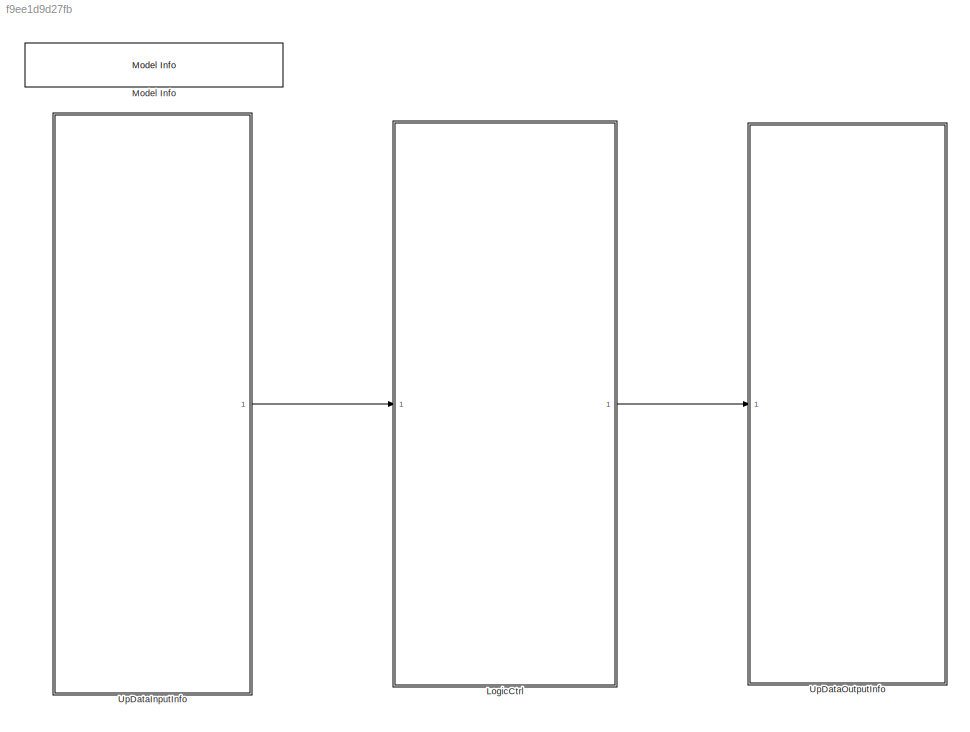
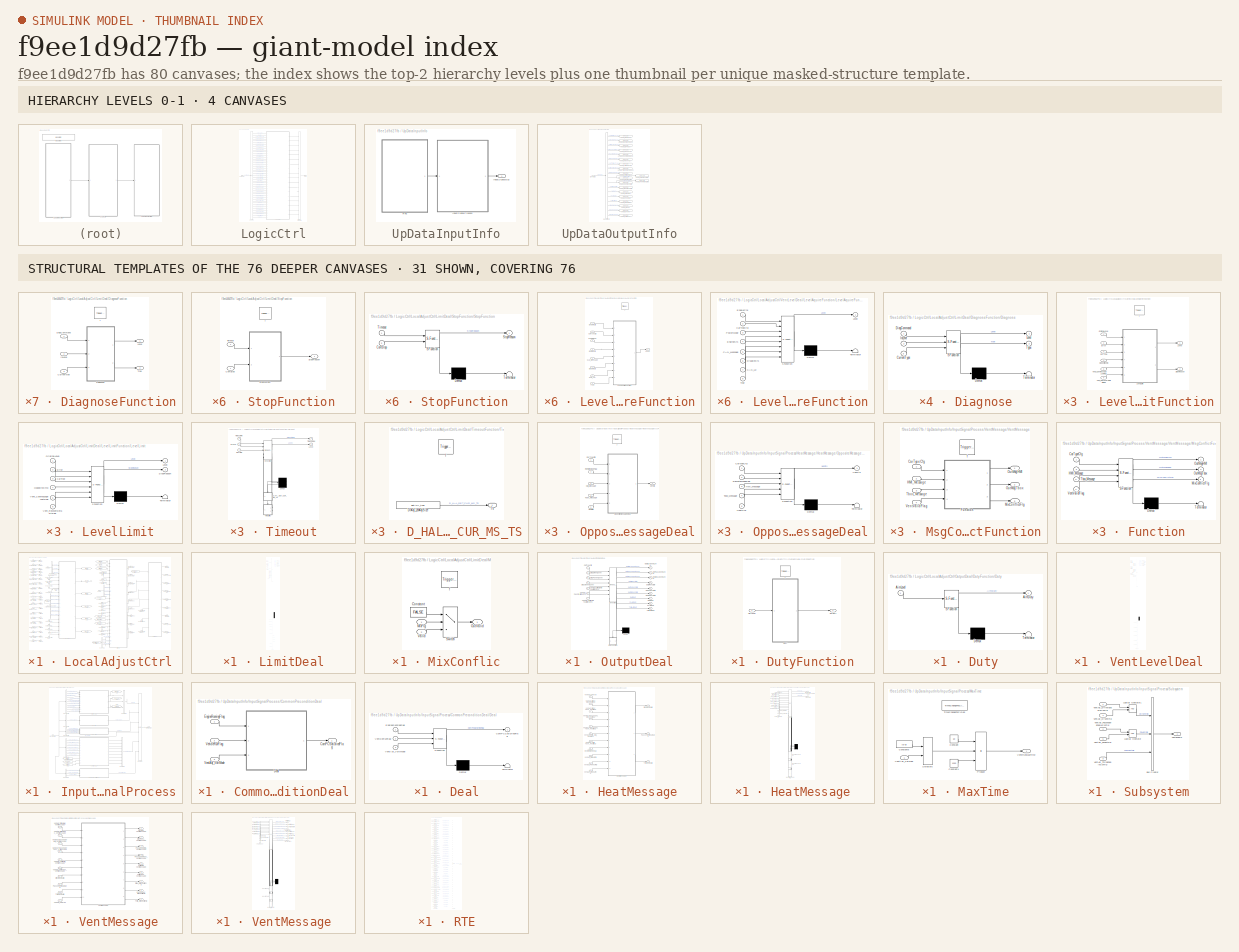
[diagram: thumbnail index - top-2 hierarchy levels (4 canvases) + 31 structural-template representatives of the remaining 76 canvases]
MODEL slx_f9ee1d9d27fb
KIND model
BLOCK [SubSystem] LogicCtrl
  Ports = [1, 1]
  Priority = 2
  RTWFcnNameOpts = Use subsystem name
  RTWSystemCode = Nonreusable function
  RequestExecContextInheritance = off
  TreatAsAtomicUnit = on
BLOCK [BusSelector] LogicCtrl/Bus Selector
  OutputAsBus = off
  OutputSignals = VentRunMaxTime,HeatValid,Rte_SignalBUs.VentAdj_D_SimuIndex_DRVent,Rte_SignalBUs.VentAdj_D_SimuIndex_PAVent,Rte_SignalBUs.VentAdj_D_SimuIndex_ThirdVent,Rte_SignalBUs.VentAdj_CarType,Rte_SignalBUs.VentAdj_RemoteModeFlag,Rte_SignalBUs.VentAdj_EngineRunFlag,Rte_SignalBUs.VentAdj_DriverCmdFaultSts,Rte_SignalBUs.VentAdj_PasCmdFaultSts,Rte_SignalBUs.VentAdj_ThirdCmdFaultSts,Rte_SignalBUs.VentAdj_PowerMod...<+1336ch>
  Ports = [1, 47]
BLOCK [Outport] LogicCtrl/HeatOut
  IconDisplay = Port number
BLOCK [Inport] LogicCtrl/InputSignalBus
  IconDisplay = Port number
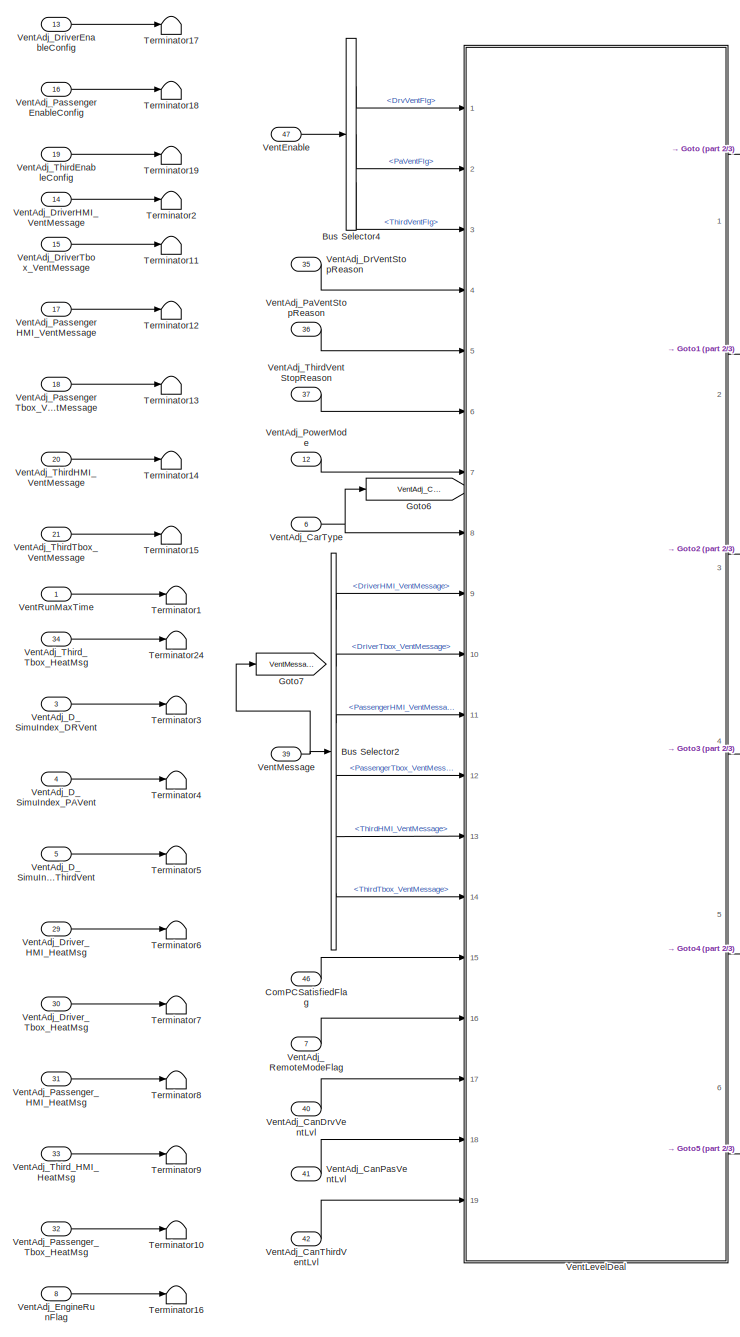
[diagram: LogicCtrl/LocalAdjustCtrl - part 1/3, left side, full height]
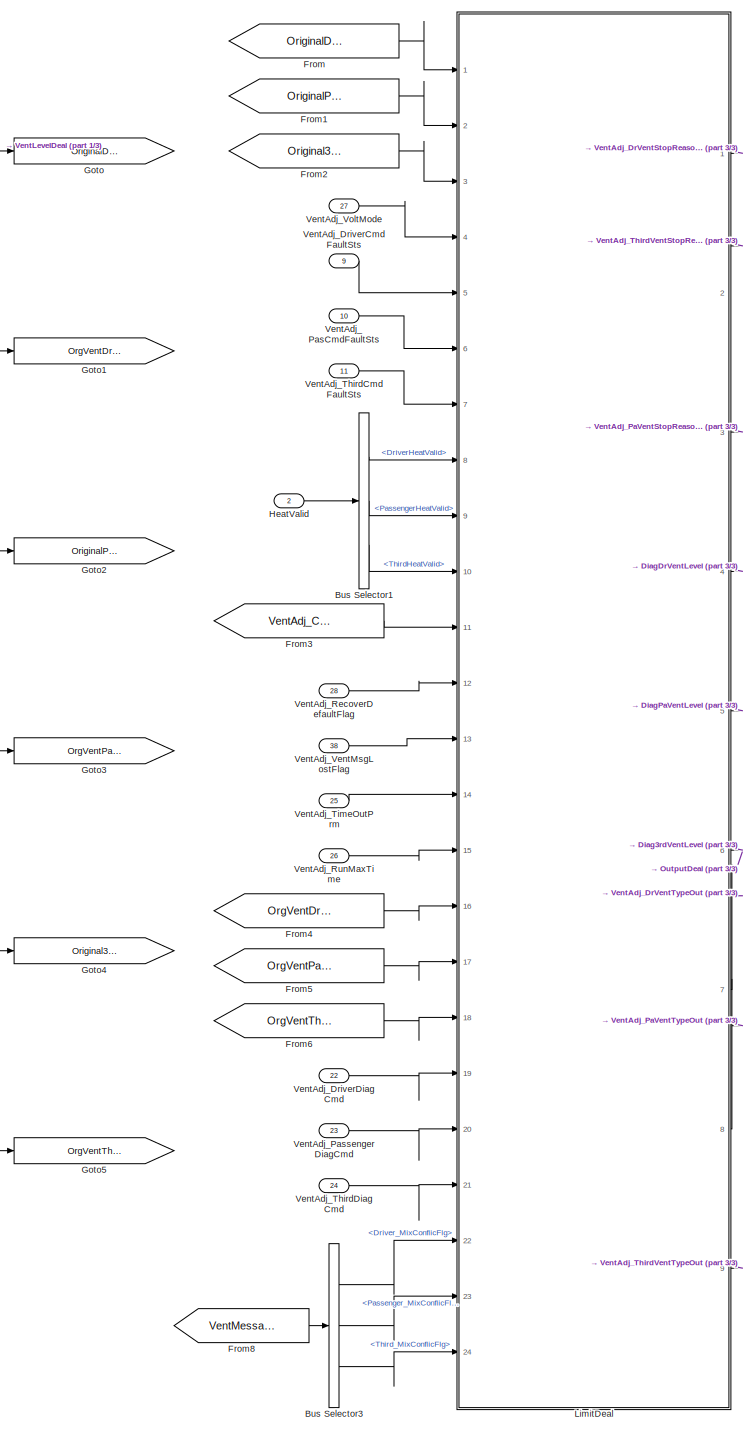
[diagram: LogicCtrl/LocalAdjustCtrl - part 2/3, center side, full height]
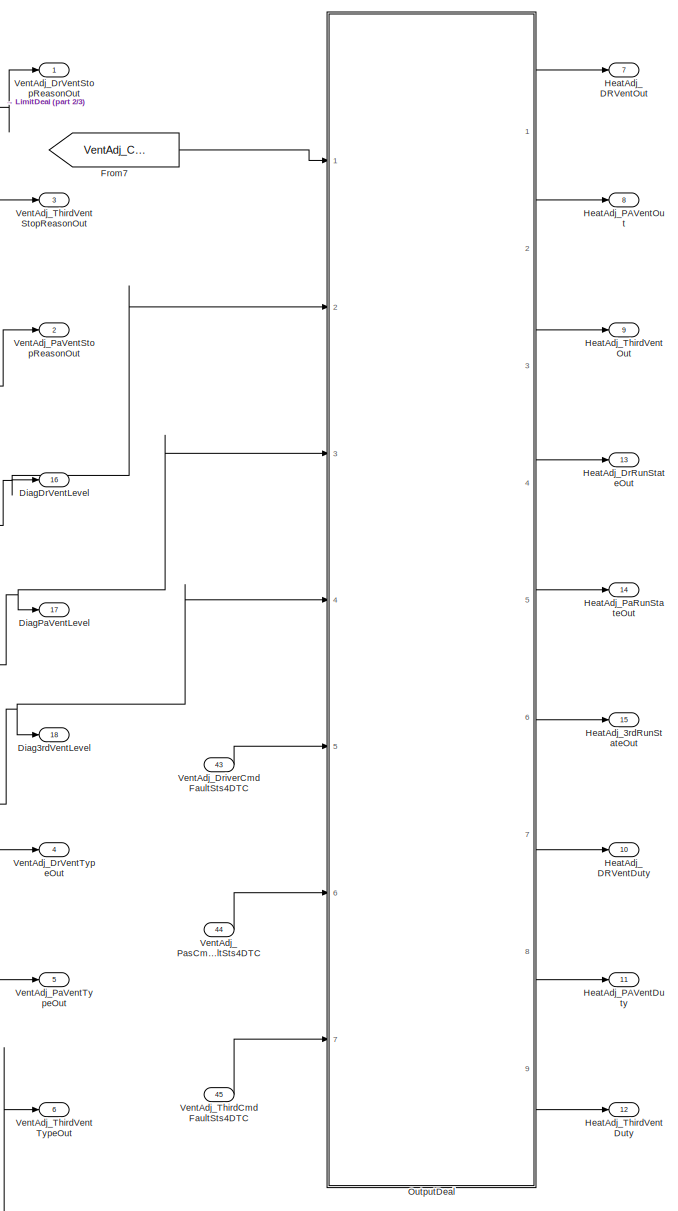
[diagram: LogicCtrl/LocalAdjustCtrl - part 3/3, right side, full height]
BLOCK [SubSystem] LogicCtrl/LocalAdjustCtrl
  AttributesFormatString = %<Description>
  Description = 逻辑处理
  Ports = [47, 18]
  RequestExecContextInheritance = off
BLOCK [BusSelector] LogicCtrl/LocalAdjustCtrl/Bus Selector1
  OutputAsBus = off
  OutputSignals = DriverHeatValid,PassengerHeatValid,ThirdHeatValid
  Ports = [1, 3]
BLOCK [BusSelector] LogicCtrl/LocalAdjustCtrl/Bus Selector2
  OutputAsBus = off
  OutputSignals = DriverHMI_VentMessage,DriverTbox_VentMessage,PassengerHMI_VentMessage,PassengerTbox_VentMessage,ThirdHMI_VentMessage,ThirdTbox_VentMessage
  Ports = [1, 6]
BLOCK [BusSelector] LogicCtrl/LocalAdjustCtrl/Bus Selector3
  OutputAsBus = off
  OutputSignals = Driver_MixConflicFlg,Passenger_MixConflicFlg,Third_MixConflicFlg
  Ports = [1, 3]
BLOCK [BusSelector] LogicCtrl/LocalAdjustCtrl/Bus Selector4
  OutputAsBus = off
  OutputSignals = DrvVentFlg,PaVentFlg,ThirdVentFlg
  Ports = [1, 3]
BLOCK [Inport] LogicCtrl/LocalAdjustCtrl/ComPCSatisfiedFlag
  IconDisplay = Port number
  Port = 46
BLOCK [Outport] LogicCtrl/LocalAdjustCtrl/Diag3rdVentLevel
  IconDisplay = Port number
  Port = 18
BLOCK [Outport] LogicCtrl/LocalAdjustCtrl/DiagDrVentLevel
  IconDisplay = Port number
  Port = 16
BLOCK [Outport] LogicCtrl/LocalAdjustCtrl/DiagPaVentLevel
  IconDisplay = Port number
  Port = 17
BLOCK [From] LogicCtrl/LocalAdjustCtrl/From
  GotoTag = OriginalDrVentLevel
BLOCK [From] LogicCtrl/LocalAdjustCtrl/From1
  GotoTag = OriginalPaVentLevel
BLOCK [From] LogicCtrl/LocalAdjustCtrl/From2
  GotoTag = Original3rdVentLevel
BLOCK [From] LogicCtrl/LocalAdjustCtrl/From3
  GotoTag = VentAdj_CarType
BLOCK [From] LogicCtrl/LocalAdjustCtrl/From4
  GotoTag = OrgVentDriverRunType
BLOCK [From] LogicCtrl/LocalAdjustCtrl/From5
  GotoTag = OrgVentPassengerRunType
BLOCK [From] LogicCtrl/LocalAdjustCtrl/From6
  GotoTag = OrgVentThirdRunType
BLOCK [From] LogicCtrl/LocalAdjustCtrl/From7
  GotoTag = VentAdj_CarType
BLOCK [From] LogicCtrl/LocalAdjustCtrl/From8
  GotoTag = VentMessage
BLOCK [Goto] LogicCtrl/LocalAdjustCtrl/Goto
  GotoTag = OriginalDrVentLevel
BLOCK [Goto] LogicCtrl/LocalAdjustCtrl/Goto1
  GotoTag = OrgVentDriverRunType
BLOCK [Goto] LogicCtrl/LocalAdjustCtrl/Goto2
  GotoTag = OriginalPaVentLevel
BLOCK [Goto] LogicCtrl/LocalAdjustCtrl/Goto3
  GotoTag = OrgVentPassengerRunType
BLOCK [Goto] LogicCtrl/LocalAdjustCtrl/Goto4
  GotoTag = Original3rdVentLevel
BLOCK [Goto] LogicCtrl/LocalAdjustCtrl/Goto5
  GotoTag = OrgVentThirdRunType
BLOCK [Goto] LogicCtrl/LocalAdjustCtrl/Goto6
  GotoTag = VentAdj_CarType
BLOCK [Goto] LogicCtrl/LocalAdjustCtrl/Goto7
  GotoTag = VentMessage
BLOCK [Outport] LogicCtrl/LocalAdjustCtrl/HeatAdj_3rdRunStateOut
  IconDisplay = Port number
  Port = 15
BLOCK [Outport] LogicCtrl/LocalAdjustCtrl/HeatAdj_DRVentDuty
  IconDisplay = Port number
  Port = 10
BLOCK [Outport] LogicCtrl/LocalAdjustCtrl/HeatAdj_DRVentOut
  IconDisplay = Port number
  Port = 7
BLOCK [Outport] LogicCtrl/LocalAdjustCtrl/HeatAdj_DrRunStateOut
  IconDisplay = Port number
  Port = 13
BLOCK [Outport] LogicCtrl/LocalAdjustCtrl/HeatAdj_PAVentDuty
  IconDisplay = Port number
  Port = 11
BLOCK [Outport] LogicCtrl/LocalAdjustCtrl/HeatAdj_PAVentOut
  IconDisplay = Port number
  Port = 8
BLOCK [Outport] LogicCtrl/LocalAdjustCtrl/HeatAdj_PaRunStateOut
  IconDisplay = Port number
  Port = 14
BLOCK [Outport] LogicCtrl/LocalAdjustCtrl/HeatAdj_ThirdVentDuty
  IconDisplay = Port number
  Port = 12
BLOCK [Outport] LogicCtrl/LocalAdjustCtrl/HeatAdj_ThirdVentOut
  IconDisplay = Port number
  Port = 9
BLOCK [Inport] LogicCtrl/LocalAdjustCtrl/HeatValid
  IconDisplay = Port number
  Port = 2
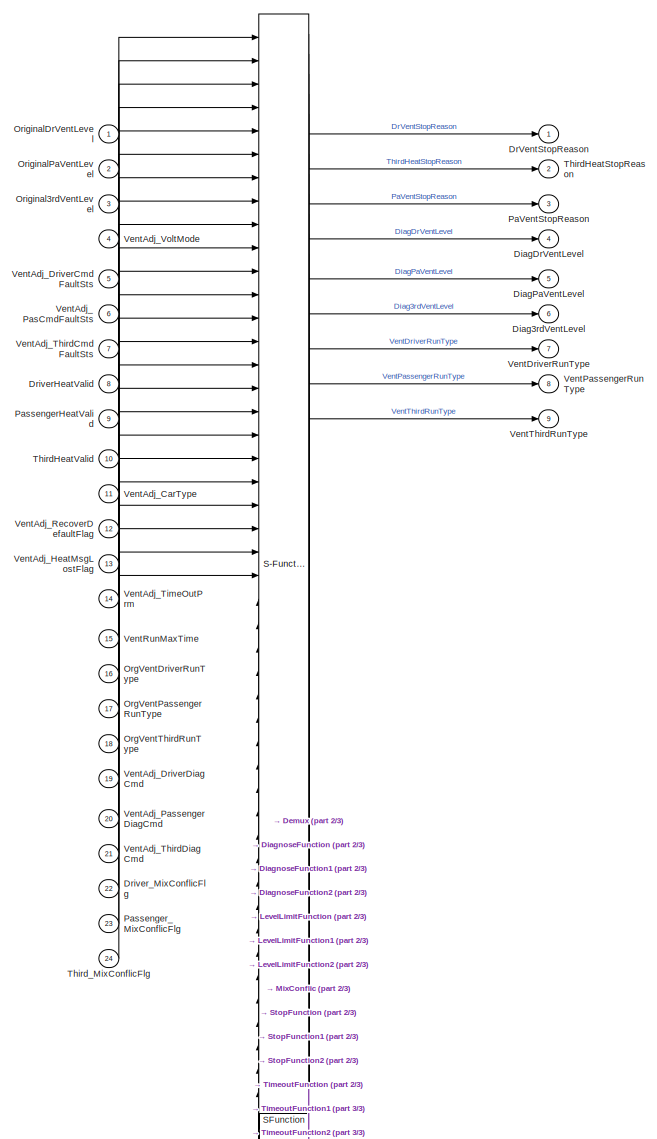
[diagram: LogicCtrl/LocalAdjustCtrl/LimitDeal - part 1/3, full width, top band]
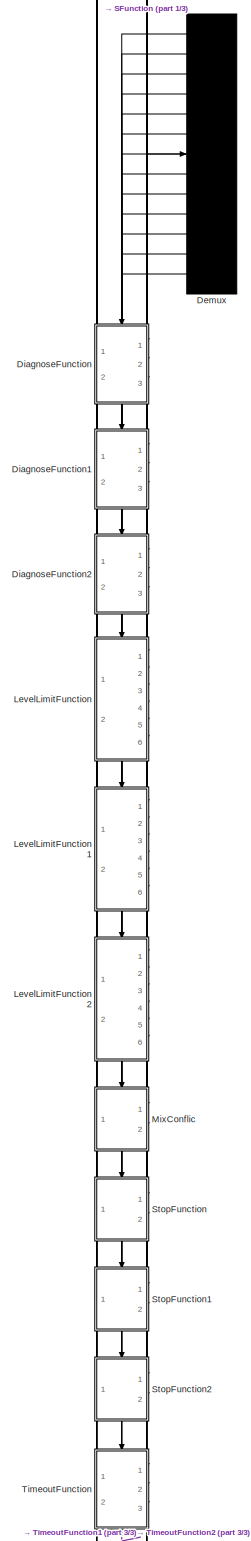
[diagram: LogicCtrl/LocalAdjustCtrl/LimitDeal - part 2/3, bottom center region]
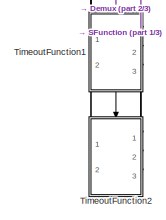
[diagram: LogicCtrl/LocalAdjustCtrl/LimitDeal - part 3/3, bottom center region]
BLOCK [SubSystem] LogicCtrl/LocalAdjustCtrl/LimitDeal
  ErrorFcn = Stateflow.Translate.translate
  PermitHierarchicalResolution = ExplicitOnly
  Ports = [24, 9]
  RequestExecContextInheritance = off
  SFBlockType = Chart
  TreatAsAtomicUnit = on
BLOCK [Demux] LogicCtrl/LocalAdjustCtrl/LimitDeal/ Demux 
  Outputs = 13
  Ports = [1, 13]
BLOCK [S-Function] LogicCtrl/LocalAdjustCtrl/LimitDeal/ SFunction 
  EnableBusSupport = on
  FunctionName = sf_sfun
  PortCounts = [46 54]
  Ports = [46, 54]
  SFcnIsStateOwnerBlock = off
  SFunctionDeploymentMode = off
  Tag = Stateflow S-Function Appl_VentAdj_CtrlModel 2
BLOCK [Outport] LogicCtrl/LocalAdjustCtrl/LimitDeal/Diag3rdVentLevel
  IconDisplay = Port number
  Port = 6
BLOCK [Outport] LogicCtrl/LocalAdjustCtrl/LimitDeal/DiagDrVentLevel
  IconDisplay = Port number
  Port = 4
BLOCK [Outport] LogicCtrl/LocalAdjustCtrl/LimitDeal/DiagPaVentLevel
  IconDisplay = Port number
  Port = 5
BLOCK [SubSystem] LogicCtrl/LocalAdjustCtrl/LimitDeal/DiagnoseFunction
  Ports = [3, 2, 0, 1]
  PreDeleteFcn = Stateflow.SLINSF.SimulinkMan.removePreDeleteFcn
  RequestExecContextInheritance = off
  UndoDeleteFcn = Stateflow.SLINSF.SimulinkMan.restorePreDeleteFcn
BLOCK [Inport] LogicCtrl/LocalAdjustCtrl/LimitDeal/DiagnoseFunction/CurrentType
  IconDisplay = Port number
  Port = 3
BLOCK [Inport] LogicCtrl/LocalAdjustCtrl/LimitDeal/DiagnoseFunction/DiagCommand
  IconDisplay = Port number
BLOCK [SubSystem] LogicCtrl/LocalAdjustCtrl/LimitDeal/DiagnoseFunction/Diagnose
  ErrorFcn = Stateflow.Translate.translate
  PermitHierarchicalResolution = ExplicitOnly
  Ports = [3, 2]
  RequestExecContextInheritance = off
  SFBlockType = Chart
  TreatAsAtomicUnit = on
BLOCK [Demux] LogicCtrl/LocalAdjustCtrl/LimitDeal/DiagnoseFunction/Diagnose/ Demux 
  Outputs = 1
  Ports = [1, 1]
BLOCK [S-Function] LogicCtrl/LocalAdjustCtrl/LimitDeal/DiagnoseFunction/Diagnose/ SFunction 
  EnableBusSupport = off
  FunctionName = sf_sfun
  PortCounts = [3 3]
  Ports = [3, 3]
  SFcnIsStateOwnerBlock = off
  SFunctionDeploymentMode = off
  Tag = Stateflow S-Function Appl_VentAdj_CtrlModel 13
BLOCK [Terminator] LogicCtrl/LocalAdjustCtrl/LimitDeal/DiagnoseFunction/Diagnose/ Terminator 
BLOCK [Inport] LogicCtrl/LocalAdjustCtrl/LimitDeal/DiagnoseFunction/Diagnose/CurrentType
  IconDisplay = Port number
  Port = 3
BLOCK [Inport] LogicCtrl/LocalAdjustCtrl/LimitDeal/DiagnoseFunction/Diagnose/DiagCommand
  IconDisplay = Port number
BLOCK [Inport] LogicCtrl/LocalAdjustCtrl/LimitDeal/DiagnoseFunction/Diagnose/InLevel
  IconDisplay = Port number
  Port = 2
BLOCK [Outport] LogicCtrl/LocalAdjustCtrl/LimitDeal/DiagnoseFunction/Diagnose/Level
  IconDisplay = Port number
BLOCK [Outport] LogicCtrl/LocalAdjustCtrl/LimitDeal/DiagnoseFunction/Diagnose/Type
  IconDisplay = Port number
  Port = 2
BLOCK [Inport] LogicCtrl/LocalAdjustCtrl/LimitDeal/DiagnoseFunction/InLevel
  IconDisplay = Port number
  Port = 2
BLOCK [Outport] LogicCtrl/LocalAdjustCtrl/LimitDeal/DiagnoseFunction/Level
  IconDisplay = Port number
BLOCK [Outport] LogicCtrl/LocalAdjustCtrl/LimitDeal/DiagnoseFunction/Type
  IconDisplay = Port number
  Port = 2
BLOCK [TriggerPort] LogicCtrl/LocalAdjustCtrl/LimitDeal/DiagnoseFunction/f
  CopyFcn = Stateflow.SLINSF.SimulinkMan.removeBlockPreDeleteFcn
  Ports = []
  PreDeleteFcn = Stateflow.SLINSF.SimulinkMan.unsafePredeleteFcn
  StatesWhenEnabling = held
  TriggerType = function-call
  VariantControl = (inherit)
BLOCK [SubSystem] LogicCtrl/LocalAdjustCtrl/LimitDeal/DiagnoseFunction1
  Ports = [3, 2, 0, 1]
  PreDeleteFcn = Stateflow.SLINSF.SimulinkMan.removePreDeleteFcn
  RequestExecContextInheritance = off
  UndoDeleteFcn = Stateflow.SLINSF.SimulinkMan.restorePreDeleteFcn
BLOCK [Inport] LogicCtrl/LocalAdjustCtrl/LimitDeal/DiagnoseFunction1/CurrentType
  IconDisplay = Port number
  Port = 3
BLOCK [Inport] LogicCtrl/LocalAdjustCtrl/LimitDeal/DiagnoseFunction1/DiagCommand
  IconDisplay = Port number
BLOCK [SubSystem] LogicCtrl/LocalAdjustCtrl/LimitDeal/DiagnoseFunction1/Diagnose
  ErrorFcn = Stateflow.Translate.translate
  PermitHierarchicalResolution = ExplicitOnly
  Ports = [3, 2]
  RequestExecContextInheritance = off
  SFBlockType = Chart
  TreatAsAtomicUnit = on
BLOCK [Demux] LogicCtrl/LocalAdjustCtrl/LimitDeal/DiagnoseFunction1/Diagnose/ Demux 
  Outputs = 1
  Ports = [1, 1]
BLOCK [S-Function] LogicCtrl/LocalAdjustCtrl/LimitDeal/DiagnoseFunction1/Diagnose/ SFunction 
  EnableBusSupport = off
  FunctionName = sf_sfun
  PortCounts = [3 3]
  Ports = [3, 3]
  SFcnIsStateOwnerBlock = off
  SFunctionDeploymentMode = off
  Tag = Stateflow S-Function Appl_VentAdj_CtrlModel 8
BLOCK [Terminator] LogicCtrl/LocalAdjustCtrl/LimitDeal/DiagnoseFunction1/Diagnose/ Terminator 
BLOCK [Inport] LogicCtrl/LocalAdjustCtrl/LimitDeal/DiagnoseFunction1/Diagnose/CurrentType
  IconDisplay = Port number
  Port = 3
BLOCK [Inport] LogicCtrl/LocalAdjustCtrl/LimitDeal/DiagnoseFunction1/Diagnose/DiagCommand
  IconDisplay = Port number
BLOCK [Inport] LogicCtrl/LocalAdjustCtrl/LimitDeal/DiagnoseFunction1/Diagnose/InLevel
  IconDisplay = Port number
  Port = 2
BLOCK [Outport] LogicCtrl/LocalAdjustCtrl/LimitDeal/DiagnoseFunction1/Diagnose/Level
  IconDisplay = Port number
BLOCK [Outport] LogicCtrl/LocalAdjustCtrl/LimitDeal/DiagnoseFunction1/Diagnose/Type
  IconDisplay = Port number
  Port = 2
BLOCK [Inport] LogicCtrl/LocalAdjustCtrl/LimitDeal/DiagnoseFunction1/InLevel
  IconDisplay = Port number
  Port = 2
BLOCK [Outport] LogicCtrl/LocalAdjustCtrl/LimitDeal/DiagnoseFunction1/Level
  IconDisplay = Port number
BLOCK [Outport] LogicCtrl/LocalAdjustCtrl/LimitDeal/DiagnoseFunction1/Type
  IconDisplay = Port number
  Port = 2
BLOCK [TriggerPort] LogicCtrl/LocalAdjustCtrl/LimitDeal/DiagnoseFunction1/f
  CopyFcn = Stateflow.SLINSF.SimulinkMan.removeBlockPreDeleteFcn
  Ports = []
  PreDeleteFcn = Stateflow.SLINSF.SimulinkMan.unsafePredeleteFcn
  StatesWhenEnabling = held
  TriggerType = function-call
  VariantControl = (inherit)
BLOCK [SubSystem] LogicCtrl/LocalAdjustCtrl/LimitDeal/DiagnoseFunction2
  Ports = [3, 2, 0, 1]
  PreDeleteFcn = Stateflow.SLINSF.SimulinkMan.removePreDeleteFcn
  RequestExecContextInheritance = off
  UndoDeleteFcn = Stateflow.SLINSF.SimulinkMan.restorePreDeleteFcn
BLOCK [Inport] LogicCtrl/LocalAdjustCtrl/LimitDeal/DiagnoseFunction2/CurrentType
  IconDisplay = Port number
  Port = 3
BLOCK [Inport] LogicCtrl/LocalAdjustCtrl/LimitDeal/DiagnoseFunction2/DiagCommand
  IconDisplay = Port number
BLOCK [SubSystem] LogicCtrl/LocalAdjustCtrl/LimitDeal/DiagnoseFunction2/Diagnose
  ErrorFcn = Stateflow.Translate.translate
  PermitHierarchicalResolution = ExplicitOnly
  Ports = [3, 2]
  RequestExecContextInheritance = off
  SFBlockType = Chart
  TreatAsAtomicUnit = on
BLOCK [Demux] LogicCtrl/LocalAdjustCtrl/LimitDeal/DiagnoseFunction2/Diagnose/ Demux 
  Outputs = 1
  Ports = [1, 1]
BLOCK [S-Function] LogicCtrl/LocalAdjustCtrl/LimitDeal/DiagnoseFunction2/Diagnose/ SFunction 
  EnableBusSupport = off
  FunctionName = sf_sfun
  PortCounts = [3 3]
  Ports = [3, 3]
  SFcnIsStateOwnerBlock = off
  SFunctionDeploymentMode = off
  Tag = Stateflow S-Function Appl_VentAdj_CtrlModel 9
BLOCK [Terminator] LogicCtrl/LocalAdjustCtrl/LimitDeal/DiagnoseFunction2/Diagnose/ Terminator 
BLOCK [Inport] LogicCtrl/LocalAdjustCtrl/LimitDeal/DiagnoseFunction2/Diagnose/CurrentType
  IconDisplay = Port number
  Port = 3
BLOCK [Inport] LogicCtrl/LocalAdjustCtrl/LimitDeal/DiagnoseFunction2/Diagnose/DiagCommand
  IconDisplay = Port number
BLOCK [Inport] LogicCtrl/LocalAdjustCtrl/LimitDeal/DiagnoseFunction2/Diagnose/InLevel
  IconDisplay = Port number
  Port = 2
BLOCK [Outport] LogicCtrl/LocalAdjustCtrl/LimitDeal/DiagnoseFunction2/Diagnose/Level
  IconDisplay = Port number
BLOCK [Outport] LogicCtrl/LocalAdjustCtrl/LimitDeal/DiagnoseFunction2/Diagnose/Type
  IconDisplay = Port number
  Port = 2
BLOCK [Inport] LogicCtrl/LocalAdjustCtrl/LimitDeal/DiagnoseFunction2/InLevel
  IconDisplay = Port number
  Port = 2
BLOCK [Outport] LogicCtrl/LocalAdjustCtrl/LimitDeal/DiagnoseFunction2/Level
  IconDisplay = Port number
BLOCK [Outport] LogicCtrl/LocalAdjustCtrl/LimitDeal/DiagnoseFunction2/Type
  IconDisplay = Port number
  Port = 2
BLOCK [TriggerPort] LogicCtrl/LocalAdjustCtrl/LimitDeal/DiagnoseFunction2/f
  CopyFcn = Stateflow.SLINSF.SimulinkMan.removeBlockPreDeleteFcn
  Ports = []
  PreDeleteFcn = Stateflow.SLINSF.SimulinkMan.unsafePredeleteFcn
  StatesWhenEnabling = held
  TriggerType = function-call
  VariantControl = (inherit)
BLOCK [Outport] LogicCtrl/LocalAdjustCtrl/LimitDeal/DrVentStopReason
  IconDisplay = Port number
BLOCK [Inport] LogicCtrl/LocalAdjustCtrl/LimitDeal/DriverHeatValid
  IconDisplay = Port number
  Port = 8
BLOCK [Inport] LogicCtrl/LocalAdjustCtrl/LimitDeal/Driver_MixConflicFlg
  IconDisplay = Port number
  Port = 22
BLOCK [SubSystem] LogicCtrl/LocalAdjustCtrl/LimitDeal/LevelLimitFunction
  Ports = [6, 2, 0, 1]
  PreDeleteFcn = Stateflow.SLINSF.SimulinkMan.removePreDeleteFcn
  RequestExecContextInheritance = off
  UndoDeleteFcn = Stateflow.SLINSF.SimulinkMan.restorePreDeleteFcn
BLOCK [Inport] LogicCtrl/LocalAdjustCtrl/LimitDeal/LevelLimitFunction/CarType
  IconDisplay = Port number
  Port = 4
BLOCK [Inport] LogicCtrl/LocalAdjustCtrl/LimitDeal/LevelLimitFunction/Error
  IconDisplay = Port number
  Port = 2
BLOCK [Outport] LogicCtrl/LocalAdjustCtrl/LimitDeal/LevelLimitFunction/Level
  IconDisplay = Port number
BLOCK [SubSystem] LogicCtrl/LocalAdjustCtrl/LimitDeal/LevelLimitFunction/LevelLimit
  ErrorFcn = Stateflow.Translate.translate
  PermitHierarchicalResolution = ExplicitOnly
  Ports = [6, 2]
  RequestExecContextInheritance = off
  SFBlockType = Chart
  TreatAsAtomicUnit = on
BLOCK [Demux] LogicCtrl/LocalAdjustCtrl/LimitDeal/LevelLimitFunction/LevelLimit/ Demux 
  Outputs = 1
  Ports = [1, 1]
BLOCK [S-Function] LogicCtrl/LocalAdjustCtrl/LimitDeal/LevelLimitFunction/LevelLimit/ SFunction 
  EnableBusSupport = off
  FunctionName = sf_sfun
  Parameters = FALSE,TRUE
  PortCounts = [6 3]
  Ports = [6, 3]
  SFcnIsStateOwnerBlock = off
  SFunctionDeploymentMode = off
  Tag = Stateflow S-Function Appl_VentAdj_CtrlModel 21
BLOCK [Terminator] LogicCtrl/LocalAdjustCtrl/LimitDeal/LevelLimitFunction/LevelLimit/ Terminator 
BLOCK [Inport] LogicCtrl/LocalAdjustCtrl/LimitDeal/LevelLimitFunction/LevelLimit/CarType
  IconDisplay = Port number
  Port = 3
BLOCK [Inport] LogicCtrl/LocalAdjustCtrl/LimitDeal/LevelLimitFunction/LevelLimit/Error
  IconDisplay = Port number
  Port = 2
BLOCK [Outport] LogicCtrl/LocalAdjustCtrl/LimitDeal/LevelLimitFunction/LevelLimit/Level
  IconDisplay = Port number
BLOCK [Inport] LogicCtrl/LocalAdjustCtrl/LimitDeal/LevelLimitFunction/LevelLimit/OppositeCmd
  IconDisplay = Port number
  Port = 4
BLOCK [Inport] LogicCtrl/LocalAdjustCtrl/LimitDeal/LevelLimitFunction/LevelLimit/OriginalLevel
  IconDisplay = Port number
BLOCK [Outport] LogicCtrl/LocalAdjustCtrl/LimitDeal/LevelLimitFunction/LevelLimit/StopReason
  IconDisplay = Port number
  Port = 2
BLOCK [Inport] LogicCtrl/LocalAdjustCtrl/LimitDeal/LevelLimitFunction/LevelLimit/Vent_CanMessageLostFlag
  IconDisplay = Port number
  Port = 5
BLOCK [Inport] LogicCtrl/LocalAdjustCtrl/LimitDeal/LevelLimitFunction/LevelLimit/Vent_RecoverDefaultFlag
  IconDisplay = Port number
  Port = 6
BLOCK [Inport] LogicCtrl/LocalAdjustCtrl/LimitDeal/LevelLimitFunction/OppositeCmd
  IconDisplay = Port number
  Port = 3
BLOCK [Inport] LogicCtrl/LocalAdjustCtrl/LimitDeal/LevelLimitFunction/OriginalLevel
  IconDisplay = Port number
BLOCK [Outport] LogicCtrl/LocalAdjustCtrl/LimitDeal/LevelLimitFunction/StopReason
  IconDisplay = Port number
  Port = 2
BLOCK [Inport] LogicCtrl/LocalAdjustCtrl/LimitDeal/LevelLimitFunction/Vent_CanMessageLostFlag
  IconDisplay = Port number
  Port = 5
BLOCK [Inport] LogicCtrl/LocalAdjustCtrl/LimitDeal/LevelLimitFunction/Vent_RecoverDefaultFlag
  IconDisplay = Port number
  Port = 6
BLOCK [TriggerPort] LogicCtrl/LocalAdjustCtrl/LimitDeal/LevelLimitFunction/f
  CopyFcn = Stateflow.SLINSF.SimulinkMan.removeBlockPreDeleteFcn
  Ports = []
  PreDeleteFcn = Stateflow.SLINSF.SimulinkMan.unsafePredeleteFcn
  StatesWhenEnabling = held
  TriggerType = function-call
  VariantControl = (inherit)
BLOCK [SubSystem] LogicCtrl/LocalAdjustCtrl/LimitDeal/LevelLimitFunction1
  Ports = [6, 2, 0, 1]
  PreDeleteFcn = Stateflow.SLINSF.SimulinkMan.removePreDeleteFcn
  RequestExecContextInheritance = off
  UndoDeleteFcn = Stateflow.SLINSF.SimulinkMan.restorePreDeleteFcn
BLOCK [Inport] LogicCtrl/LocalAdjustCtrl/LimitDeal/LevelLimitFunction1/CarType
  IconDisplay = Port number
  Port = 4
BLOCK [Inport] LogicCtrl/LocalAdjustCtrl/LimitDeal/LevelLimitFunction1/Error
  IconDisplay = Port number
  Port = 2
BLOCK [Outport] LogicCtrl/LocalAdjustCtrl/LimitDeal/LevelLimitFunction1/Level
  IconDisplay = Port number
BLOCK [SubSystem] LogicCtrl/LocalAdjustCtrl/LimitDeal/LevelLimitFunction1/LevelLimit
  ErrorFcn = Stateflow.Translate.translate
  PermitHierarchicalResolution = ExplicitOnly
  Ports = [6, 2]
  RequestExecContextInheritance = off
  SFBlockType = Chart
  TreatAsAtomicUnit = on
BLOCK [Demux] LogicCtrl/LocalAdjustCtrl/LimitDeal/LevelLimitFunction1/LevelLimit/ Demux 
  Outputs = 1
  Ports = [1, 1]
BLOCK [S-Function] LogicCtrl/LocalAdjustCtrl/LimitDeal/LevelLimitFunction1/LevelLimit/ SFunction 
  EnableBusSupport = off
  FunctionName = sf_sfun
  Parameters = FALSE,TRUE
  PortCounts = [6 3]
  Ports = [6, 3]
  SFcnIsStateOwnerBlock = off
  SFunctionDeploymentMode = off
  Tag = Stateflow S-Function Appl_VentAdj_CtrlModel 4
BLOCK [Terminator] LogicCtrl/LocalAdjustCtrl/LimitDeal/LevelLimitFunction1/LevelLimit/ Terminator 
BLOCK [Inport] LogicCtrl/LocalAdjustCtrl/LimitDeal/LevelLimitFunction1/LevelLimit/CarType
  IconDisplay = Port number
  Port = 3
BLOCK [Inport] LogicCtrl/LocalAdjustCtrl/LimitDeal/LevelLimitFunction1/LevelLimit/Error
  IconDisplay = Port number
  Port = 2
BLOCK [Outport] LogicCtrl/LocalAdjustCtrl/LimitDeal/LevelLimitFunction1/LevelLimit/Level
  IconDisplay = Port number
BLOCK [Inport] LogicCtrl/LocalAdjustCtrl/LimitDeal/LevelLimitFunction1/LevelLimit/OppositeCmd
  IconDisplay = Port number
  Port = 4
BLOCK [Inport] LogicCtrl/LocalAdjustCtrl/LimitDeal/LevelLimitFunction1/LevelLimit/OriginalLevel
  IconDisplay = Port number
BLOCK [Outport] LogicCtrl/LocalAdjustCtrl/LimitDeal/LevelLimitFunction1/LevelLimit/StopReason
  IconDisplay = Port number
  Port = 2
BLOCK [Inport] LogicCtrl/LocalAdjustCtrl/LimitDeal/LevelLimitFunction1/LevelLimit/Vent_CanMessageLostFlag
  IconDisplay = Port number
  Port = 5
BLOCK [Inport] LogicCtrl/LocalAdjustCtrl/LimitDeal/LevelLimitFunction1/LevelLimit/Vent_RecoverDefaultFlag
  IconDisplay = Port number
  Port = 6
BLOCK [Inport] LogicCtrl/LocalAdjustCtrl/LimitDeal/LevelLimitFunction1/OppositeCmd
  IconDisplay = Port number
  Port = 3
BLOCK [Inport] LogicCtrl/LocalAdjustCtrl/LimitDeal/LevelLimitFunction1/OriginalLevel
  IconDisplay = Port number
BLOCK [Outport] LogicCtrl/LocalAdjustCtrl/LimitDeal/LevelLimitFunction1/StopReason
  IconDisplay = Port number
  Port = 2
BLOCK [Inport] LogicCtrl/LocalAdjustCtrl/LimitDeal/LevelLimitFunction1/Vent_CanMessageLostFlag
  IconDisplay = Port number
  Port = 5
BLOCK [Inport] LogicCtrl/LocalAdjustCtrl/LimitDeal/LevelLimitFunction1/Vent_RecoverDefaultFlag
  IconDisplay = Port number
  Port = 6
BLOCK [TriggerPort] LogicCtrl/LocalAdjustCtrl/LimitDeal/LevelLimitFunction1/f
  CopyFcn = Stateflow.SLINSF.SimulinkMan.removeBlockPreDeleteFcn
  Ports = []
  PreDeleteFcn = Stateflow.SLINSF.SimulinkMan.unsafePredeleteFcn
  StatesWhenEnabling = held
  TriggerType = function-call
  VariantControl = (inherit)
BLOCK [SubSystem] LogicCtrl/LocalAdjustCtrl/LimitDeal/LevelLimitFunction2
  Ports = [6, 2, 0, 1]
  PreDeleteFcn = Stateflow.SLINSF.SimulinkMan.removePreDeleteFcn
  RequestExecContextInheritance = off
  UndoDeleteFcn = Stateflow.SLINSF.SimulinkMan.restorePreDeleteFcn
BLOCK [Inport] LogicCtrl/LocalAdjustCtrl/LimitDeal/LevelLimitFunction2/CarType
  IconDisplay = Port number
  Port = 4
BLOCK [Inport] LogicCtrl/LocalAdjustCtrl/LimitDeal/LevelLimitFunction2/Error
  IconDisplay = Port number
  Port = 2
BLOCK [Outport] LogicCtrl/LocalAdjustCtrl/LimitDeal/LevelLimitFunction2/Level
  IconDisplay = Port number
BLOCK [SubSystem] LogicCtrl/LocalAdjustCtrl/LimitDeal/LevelLimitFunction2/LevelLimit
  ErrorFcn = Stateflow.Translate.translate
  PermitHierarchicalResolution = ExplicitOnly
  Ports = [6, 2]
  RequestExecContextInheritance = off
  SFBlockType = Chart
  TreatAsAtomicUnit = on
BLOCK [Demux] LogicCtrl/LocalAdjustCtrl/LimitDeal/LevelLimitFunction2/LevelLimit/ Demux 
  Outputs = 1
  Ports = [1, 1]
BLOCK [S-Function] LogicCtrl/LocalAdjustCtrl/LimitDeal/LevelLimitFunction2/LevelLimit/ SFunction 
  EnableBusSupport = off
  FunctionName = sf_sfun
  Parameters = FALSE,TRUE
  PortCounts = [6 3]
  Ports = [6, 3]
  SFcnIsStateOwnerBlock = off
  SFunctionDeploymentMode = off
  Tag = Stateflow S-Function Appl_VentAdj_CtrlModel 22
BLOCK [Terminator] LogicCtrl/LocalAdjustCtrl/LimitDeal/LevelLimitFunction2/LevelLimit/ Terminator 
BLOCK [Inport] LogicCtrl/LocalAdjustCtrl/LimitDeal/LevelLimitFunction2/LevelLimit/CarType
  IconDisplay = Port number
  Port = 3
BLOCK [Inport] LogicCtrl/LocalAdjustCtrl/LimitDeal/LevelLimitFunction2/LevelLimit/Error
  IconDisplay = Port number
  Port = 2
BLOCK [Outport] LogicCtrl/LocalAdjustCtrl/LimitDeal/LevelLimitFunction2/LevelLimit/Level
  IconDisplay = Port number
BLOCK [Inport] LogicCtrl/LocalAdjustCtrl/LimitDeal/LevelLimitFunction2/LevelLimit/OppositeCmd
  IconDisplay = Port number
  Port = 4
BLOCK [Inport] LogicCtrl/LocalAdjustCtrl/LimitDeal/LevelLimitFunction2/LevelLimit/OriginalLevel
  IconDisplay = Port number
BLOCK [Outport] LogicCtrl/LocalAdjustCtrl/LimitDeal/LevelLimitFunction2/LevelLimit/StopReason
  IconDisplay = Port number
  Port = 2
BLOCK [Inport] LogicCtrl/LocalAdjustCtrl/LimitDeal/LevelLimitFunction2/LevelLimit/Vent_CanMessageLostFlag
  IconDisplay = Port number
  Port = 5
BLOCK [Inport] LogicCtrl/LocalAdjustCtrl/LimitDeal/LevelLimitFunction2/LevelLimit/Vent_RecoverDefaultFlag
  IconDisplay = Port number
  Port = 6
BLOCK [Inport] LogicCtrl/LocalAdjustCtrl/LimitDeal/LevelLimitFunction2/OppositeCmd
  IconDisplay = Port number
  Port = 3
BLOCK [Inport] LogicCtrl/LocalAdjustCtrl/LimitDeal/LevelLimitFunction2/OriginalLevel
  IconDisplay = Port number
BLOCK [Outport] LogicCtrl/LocalAdjustCtrl/LimitDeal/LevelLimitFunction2/StopReason
  IconDisplay = Port number
  Port = 2
BLOCK [Inport] LogicCtrl/LocalAdjustCtrl/LimitDeal/LevelLimitFunction2/Vent_CanMessageLostFlag
  IconDisplay = Port number
  Port = 5
BLOCK [Inport] LogicCtrl/LocalAdjustCtrl/LimitDeal/LevelLimitFunction2/Vent_RecoverDefaultFlag
  IconDisplay = Port number
  Port = 6
BLOCK [TriggerPort] LogicCtrl/LocalAdjustCtrl/LimitDeal/LevelLimitFunction2/f
  CopyFcn = Stateflow.SLINSF.SimulinkMan.removeBlockPreDeleteFcn
  Ports = []
  PreDeleteFcn = Stateflow.SLINSF.SimulinkMan.unsafePredeleteFcn
  StatesWhenEnabling = held
  TriggerType = function-call
  VariantControl = (inherit)
BLOCK [SubSystem] LogicCtrl/LocalAdjustCtrl/LimitDeal/MixConflic
  Ports = [2, 1, 0, 1]
  PreDeleteFcn = Stateflow.SLINSF.SimulinkMan.removePreDeleteFcn
  RequestExecContextInheritance = off
  UndoDeleteFcn = Stateflow.SLINSF.SimulinkMan.restorePreDeleteFcn
BLOCK [Constant] LogicCtrl/LocalAdjustCtrl/LimitDeal/MixConflic/Constant
  Value = FALSE
BLOCK [Inport] LogicCtrl/LocalAdjustCtrl/LimitDeal/MixConflic/MixFlg
  IconDisplay = Port number
  OutDataTypeStr = uint8
BLOCK [Outport] LogicCtrl/LocalAdjustCtrl/LimitDeal/MixConflic/OutValid
  IconDisplay = Port number
BLOCK [Switch] LogicCtrl/LocalAdjustCtrl/LimitDeal/MixConflic/Switch
  Criteria = u2 ~= 0
  InputSameDT = off
  OutDataTypeStr = uint8
  SaturateOnIntegerOverflow = off
BLOCK [Inport] LogicCtrl/LocalAdjustCtrl/LimitDeal/MixConflic/Valid
  IconDisplay = Port number
  OutDataTypeStr = uint8
  Port = 2
BLOCK [TriggerPort] LogicCtrl/LocalAdjustCtrl/LimitDeal/MixConflic/f
  CopyFcn = Stateflow.SLINSF.SimulinkMan.removeBlockPreDeleteFcn
  Ports = []
  PreDeleteFcn = Stateflow.SLINSF.SimulinkMan.unsafePredeleteFcn
  StatesWhenEnabling = held
  TriggerType = function-call
  VariantControl = (inherit)
BLOCK [Inport] LogicCtrl/LocalAdjustCtrl/LimitDeal/OrgVentDriverRunType
  IconDisplay = Port number
  Port = 16
BLOCK [Inport] LogicCtrl/LocalAdjustCtrl/LimitDeal/OrgVentPassengerRunType
  IconDisplay = Port number
  Port = 17
BLOCK [Inport] LogicCtrl/LocalAdjustCtrl/LimitDeal/OrgVentThirdRunType
  IconDisplay = Port number
  Port = 18
BLOCK [Inport] LogicCtrl/LocalAdjustCtrl/LimitDeal/Original3rdVentLevel
  IconDisplay = Port number
  Port = 3
BLOCK [Inport] LogicCtrl/LocalAdjustCtrl/LimitDeal/OriginalDrVentLevel
  IconDisplay = Port number
BLOCK [Inport] LogicCtrl/LocalAdjustCtrl/LimitDeal/OriginalPaVentLevel
  IconDisplay = Port number
  Port = 2
BLOCK [Outport] LogicCtrl/LocalAdjustCtrl/LimitDeal/PaVentStopReason
  IconDisplay = Port number
  Port = 3
BLOCK [Inport] LogicCtrl/LocalAdjustCtrl/LimitDeal/PassengerHeatValid
  IconDisplay = Port number
  Port = 9
BLOCK [Inport] LogicCtrl/LocalAdjustCtrl/LimitDeal/Passenger_MixConflicFlg
  IconDisplay = Port number
  Port = 23
BLOCK [SubSystem] LogicCtrl/LocalAdjustCtrl/LimitDeal/StopFunction
  Ports = [2, 1, 0, 1]
  PreDeleteFcn = Stateflow.SLINSF.SimulinkMan.removePreDeleteFcn
  RequestExecContextInheritance = off
  UndoDeleteFcn = Stateflow.SLINSF.SimulinkMan.restorePreDeleteFcn
BLOCK [Inport] LogicCtrl/LocalAdjustCtrl/LimitDeal/StopFunction/ComStop
  IconDisplay = Port number
BLOCK [SubSystem] LogicCtrl/LocalAdjustCtrl/LimitDeal/StopFunction/StopFunction
  ErrorFcn = Stateflow.Translate.translate
  PermitHierarchicalResolution = ExplicitOnly
  Ports = [2, 1]
  RequestExecContextInheritance = off
  SFBlockType = Chart
  TreatAsAtomicUnit = on
BLOCK [Demux] LogicCtrl/LocalAdjustCtrl/LimitDeal/StopFunction/StopFunction/ Demux 
  Outputs = 1
  Ports = [1, 1]
BLOCK [S-Function] LogicCtrl/LocalAdjustCtrl/LimitDeal/StopFunction/StopFunction/ SFunction 
  EnableBusSupport = off
  FunctionName = sf_sfun
  Parameters = FALSE,TRUE
  PortCounts = [2 2]
  Ports = [2, 2]
  SFcnIsStateOwnerBlock = off
  SFunctionDeploymentMode = off
  Tag = Stateflow S-Function Appl_VentAdj_CtrlModel 12
BLOCK [Terminator] LogicCtrl/LocalAdjustCtrl/LimitDeal/StopFunction/StopFunction/ Terminator 
BLOCK [Inport] LogicCtrl/LocalAdjustCtrl/LimitDeal/StopFunction/StopFunction/ComStop
  IconDisplay = Port number
  Port = 2
BLOCK [Outport] LogicCtrl/LocalAdjustCtrl/LimitDeal/StopFunction/StopFunction/StopReason
  IconDisplay = Port number
BLOCK [Inport] LogicCtrl/LocalAdjustCtrl/LimitDeal/StopFunction/StopFunction/Timeout
  IconDisplay = Port number
BLOCK [Outport] LogicCtrl/LocalAdjustCtrl/LimitDeal/StopFunction/StopReason
  IconDisplay = Port number
BLOCK [Inport] LogicCtrl/LocalAdjustCtrl/LimitDeal/StopFunction/Timeout
  IconDisplay = Port number
  Port = 2
BLOCK [TriggerPort] LogicCtrl/LocalAdjustCtrl/LimitDeal/StopFunction/f
  CopyFcn = Stateflow.SLINSF.SimulinkMan.removeBlockPreDeleteFcn
  Ports = []
  PreDeleteFcn = Stateflow.SLINSF.SimulinkMan.unsafePredeleteFcn
  StatesWhenEnabling = held
  TriggerType = function-call
  VariantControl = (inherit)
BLOCK [SubSystem] LogicCtrl/LocalAdjustCtrl/LimitDeal/StopFunction1
  Ports = [2, 1, 0, 1]
  PreDeleteFcn = Stateflow.SLINSF.SimulinkMan.removePreDeleteFcn
  RequestExecContextInheritance = off
  UndoDeleteFcn = Stateflow.SLINSF.SimulinkMan.restorePreDeleteFcn
BLOCK [Inport] LogicCtrl/LocalAdjustCtrl/LimitDeal/StopFunction1/ComStop
  IconDisplay = Port number
BLOCK [SubSystem] LogicCtrl/LocalAdjustCtrl/LimitDeal/StopFunction1/StopFunction
  ErrorFcn = Stateflow.Translate.translate
  PermitHierarchicalResolution = ExplicitOnly
  Ports = [2, 1]
  RequestExecContextInheritance = off
  SFBlockType = Chart
  TreatAsAtomicUnit = on
BLOCK [Demux] LogicCtrl/LocalAdjustCtrl/LimitDeal/StopFunction1/StopFunction/ Demux 
  Outputs = 1
  Ports = [1, 1]
BLOCK [S-Function] LogicCtrl/LocalAdjustCtrl/LimitDeal/StopFunction1/StopFunction/ SFunction 
  EnableBusSupport = off
  FunctionName = sf_sfun
  Parameters = FALSE,TRUE
  PortCounts = [2 2]
  Ports = [2, 2]
  SFcnIsStateOwnerBlock = off
  SFunctionDeploymentMode = off
  Tag = Stateflow S-Function Appl_VentAdj_CtrlModel 10
BLOCK [Terminator] LogicCtrl/LocalAdjustCtrl/LimitDeal/StopFunction1/StopFunction/ Terminator 
BLOCK [Inport] LogicCtrl/LocalAdjustCtrl/LimitDeal/StopFunction1/StopFunction/ComStop
  IconDisplay = Port number
  Port = 2
BLOCK [Outport] LogicCtrl/LocalAdjustCtrl/LimitDeal/StopFunction1/StopFunction/StopReason
  IconDisplay = Port number
BLOCK [Inport] LogicCtrl/LocalAdjustCtrl/LimitDeal/StopFunction1/StopFunction/Timeout
  IconDisplay = Port number
BLOCK [Outport] LogicCtrl/LocalAdjustCtrl/LimitDeal/StopFunction1/StopReason
  IconDisplay = Port number
BLOCK [Inport] LogicCtrl/LocalAdjustCtrl/LimitDeal/StopFunction1/Timeout
  IconDisplay = Port number
  Port = 2
BLOCK [TriggerPort] LogicCtrl/LocalAdjustCtrl/LimitDeal/StopFunction1/f
  CopyFcn = Stateflow.SLINSF.SimulinkMan.removeBlockPreDeleteFcn
  Ports = []
  PreDeleteFcn = Stateflow.SLINSF.SimulinkMan.unsafePredeleteFcn
  StatesWhenEnabling = held
  TriggerType = function-call
  VariantControl = (inherit)
BLOCK [SubSystem] LogicCtrl/LocalAdjustCtrl/LimitDeal/StopFunction2
  Ports = [2, 1, 0, 1]
  PreDeleteFcn = Stateflow.SLINSF.SimulinkMan.removePreDeleteFcn
  RequestExecContextInheritance = off
  UndoDeleteFcn = Stateflow.SLINSF.SimulinkMan.restorePreDeleteFcn
BLOCK [Inport] LogicCtrl/LocalAdjustCtrl/LimitDeal/StopFunction2/ComStop
  IconDisplay = Port number
BLOCK [SubSystem] LogicCtrl/LocalAdjustCtrl/LimitDeal/StopFunction2/StopFunction
  ErrorFcn = Stateflow.Translate.translate
  PermitHierarchicalResolution = ExplicitOnly
  Ports = [2, 1]
  RequestExecContextInheritance = off
  SFBlockType = Chart
  TreatAsAtomicUnit = on
BLOCK [Demux] LogicCtrl/LocalAdjustCtrl/LimitDeal/StopFunction2/StopFunction/ Demux 
  Outputs = 1
  Ports = [1, 1]
BLOCK [S-Function] LogicCtrl/LocalAdjustCtrl/LimitDeal/StopFunction2/StopFunction/ SFunction 
  EnableBusSupport = off
  FunctionName = sf_sfun
  Parameters = FALSE,TRUE
  PortCounts = [2 2]
  Ports = [2, 2]
  SFcnIsStateOwnerBlock = off
  SFunctionDeploymentMode = off
  Tag = Stateflow S-Function Appl_VentAdj_CtrlModel 11
BLOCK [Terminator] LogicCtrl/LocalAdjustCtrl/LimitDeal/StopFunction2/StopFunction/ Terminator 
BLOCK [Inport] LogicCtrl/LocalAdjustCtrl/LimitDeal/StopFunction2/StopFunction/ComStop
  IconDisplay = Port number
  Port = 2
BLOCK [Outport] LogicCtrl/LocalAdjustCtrl/LimitDeal/StopFunction2/StopFunction/StopReason
  IconDisplay = Port number
BLOCK [Inport] LogicCtrl/LocalAdjustCtrl/LimitDeal/StopFunction2/StopFunction/Timeout
  IconDisplay = Port number
BLOCK [Outport] LogicCtrl/LocalAdjustCtrl/LimitDeal/StopFunction2/StopReason
  IconDisplay = Port number
BLOCK [Inport] LogicCtrl/LocalAdjustCtrl/LimitDeal/StopFunction2/Timeout
  IconDisplay = Port number
  Port = 2
BLOCK [TriggerPort] LogicCtrl/LocalAdjustCtrl/LimitDeal/StopFunction2/f
  CopyFcn = Stateflow.SLINSF.SimulinkMan.removeBlockPreDeleteFcn
  Ports = []
  PreDeleteFcn = Stateflow.SLINSF.SimulinkMan.unsafePredeleteFcn
  StatesWhenEnabling = held
  TriggerType = function-call
  VariantControl = (inherit)
BLOCK [Outport] LogicCtrl/LocalAdjustCtrl/LimitDeal/ThirdHeatStopReason
  IconDisplay = Port number
  Port = 2
BLOCK [Inport] LogicCtrl/LocalAdjustCtrl/LimitDeal/ThirdHeatValid
  IconDisplay = Port number
  Port = 10
BLOCK [Inport] LogicCtrl/LocalAdjustCtrl/LimitDeal/Third_MixConflicFlg
  IconDisplay = Port number
  Port = 24
BLOCK [SubSystem] LogicCtrl/LocalAdjustCtrl/LimitDeal/TimeoutFunction
  Ports = [3, 2, 0, 1]
  PreDeleteFcn = Stateflow.SLINSF.SimulinkMan.removePreDeleteFcn
  RequestExecContextInheritance = off
  UndoDeleteFcn = Stateflow.SLINSF.SimulinkMan.restorePreDeleteFcn
BLOCK [Inport] LogicCtrl/LocalAdjustCtrl/LimitDeal/TimeoutFunction/InLevel
  IconDisplay = Port number
  Port = 3
BLOCK [Outport] LogicCtrl/LocalAdjustCtrl/LimitDeal/TimeoutFunction/Level
  IconDisplay = Port number
BLOCK [Inport] LogicCtrl/LocalAdjustCtrl/LimitDeal/TimeoutFunction/MaxTime
  IconDisplay = Port number
  OutDataTypeStr = uint32
  Port = 2
BLOCK [SubSystem] LogicCtrl/LocalAdjustCtrl/LimitDeal/TimeoutFunction/Timeout
  ErrorFcn = Stateflow.Translate.translate
  PermitHierarchicalResolution = ExplicitOnly
  Ports = [3, 2]
  RequestExecContextInheritance = off
  SFBlockType = Chart
  TreatAsAtomicUnit = on
BLOCK [Demux] LogicCtrl/LocalAdjustCtrl/LimitDeal/TimeoutFunction/Timeout/ Demux 
  Outputs = 2
  Ports = [1, 2]
BLOCK [S-Function] LogicCtrl/LocalAdjustCtrl/LimitDeal/TimeoutFunction/Timeout/ SFunction 
  EnableBusSupport = off
  FunctionName = sf_sfun
  Parameters = FALSE,TRUE
  PortCounts = [5 5]
  Ports = [5, 5]
  SFcnIsStateOwnerBlock = off
  SFunctionDeploymentMode = off
  Tag = Stateflow S-Function Appl_VentAdj_CtrlModel 24
BLOCK [SubSystem] LogicCtrl/LocalAdjustCtrl/LimitDeal/TimeoutFunction/Timeout/D_HAL_GET_CUR_MS_TS
  Ports = [0, 1, 0, 1]
  PreDeleteFcn = Stateflow.SLINSF.SimulinkMan.removePreDeleteFcn
  RequestExecContextInheritance = off
  UndoDeleteFcn = Stateflow.SLINSF.SimulinkMan.restorePreDeleteFcn
BLOCK [Reference] LogicCtrl/LocalAdjustCtrl/LimitDeal/TimeoutFunction/Timeout/D_HAL_GET_CUR_MS_TS/DrAdj_LenAdjSize  REF=DareLib/Dare/getAPI_type
  Ports = [0, 1]
  SourceBlock = DareLib/Dare/getAPI_type
  SourceProductName = Dare Library
  SourceType = Dare Custom
BLOCK [Outport] LogicCtrl/LocalAdjustCtrl/LimitDeal/TimeoutFunction/Timeout/D_HAL_GET_CUR_MS_TS/Ts
  IconDisplay = Port number
BLOCK [TriggerPort] LogicCtrl/LocalAdjustCtrl/LimitDeal/TimeoutFunction/Timeout/D_HAL_GET_CUR_MS_TS/f
  CopyFcn = Stateflow.SLINSF.SimulinkMan.removeBlockPreDeleteFcn
  Ports = []
  PreDeleteFcn = Stateflow.SLINSF.SimulinkMan.unsafePredeleteFcn
  StatesWhenEnabling = held
  TriggerType = function-call
  VariantControl = (inherit)
BLOCK [Inport] LogicCtrl/LocalAdjustCtrl/LimitDeal/TimeoutFunction/Timeout/InLevel
  IconDisplay = Port number
  Port = 2
BLOCK [Outport] LogicCtrl/LocalAdjustCtrl/LimitDeal/TimeoutFunction/Timeout/Level
  IconDisplay = Port number
  Port = 2
BLOCK [Inport] LogicCtrl/LocalAdjustCtrl/LimitDeal/TimeoutFunction/Timeout/MaxTime
  IconDisplay = Port number
  Port = 3
BLOCK [SubSystem] LogicCtrl/LocalAdjustCtrl/LimitDeal/TimeoutFunction/Timeout/TimeDiffTs
  Ports = [2, 1, 0, 1]
  PreDeleteFcn = Stateflow.SLINSF.SimulinkMan.removePreDeleteFcn
  RequestExecContextInheritance = off
  UndoDeleteFcn = Stateflow.SLINSF.SimulinkMan.restorePreDeleteFcn
BLOCK [SubSystem] LogicCtrl/LocalAdjustCtrl/LimitDeal/TimeoutFunction/Timeout/TimeDiffTs/Chart
  ErrorFcn = Stateflow.Translate.translate
  PermitHierarchicalResolution = ExplicitOnly
  Ports = [2, 1]
  RequestExecContextInheritance = off
  SFBlockType = Chart
  TreatAsAtomicUnit = on
BLOCK [Demux] LogicCtrl/LocalAdjustCtrl/LimitDeal/TimeoutFunction/Timeout/TimeDiffTs/Chart/ Demux 
  Outputs = 1
  Ports = [1, 1]
BLOCK [S-Function] LogicCtrl/LocalAdjustCtrl/LimitDeal/TimeoutFunction/Timeout/TimeDiffTs/Chart/ SFunction 
  EnableBusSupport = off
  FunctionName = sf_sfun
  PortCounts = [2 2]
  Ports = [2, 2]
  SFcnIsStateOwnerBlock = off
  SFunctionDeploymentMode = off
  Tag = Stateflow S-Function Appl_VentAdj_CtrlModel 25
BLOCK [Terminator] LogicCtrl/LocalAdjustCtrl/LimitDeal/TimeoutFunction/Timeout/TimeDiffTs/Chart/ Terminator 
BLOCK [Outport] LogicCtrl/LocalAdjustCtrl/LimitDeal/TimeoutFunction/Timeout/TimeDiffTs/Chart/OutTs
  IconDisplay = Port number
BLOCK [Inport] LogicCtrl/LocalAdjustCtrl/LimitDeal/TimeoutFunction/Timeout/TimeDiffTs/Chart/Ts
  IconDisplay = Port number
  Port = 2
BLOCK [Inport] LogicCtrl/LocalAdjustCtrl/LimitDeal/TimeoutFunction/Timeout/TimeDiffTs/Chart/lastTs
  IconDisplay = Port number
BLOCK [Outport] LogicCtrl/LocalAdjustCtrl/LimitDeal/TimeoutFunction/Timeout/TimeDiffTs/OutTs
  IconDisplay = Port number
BLOCK [Inport] LogicCtrl/LocalAdjustCtrl/LimitDeal/TimeoutFunction/Timeout/TimeDiffTs/Ts
  IconDisplay = Port number
  Port = 2
BLOCK [TriggerPort] LogicCtrl/LocalAdjustCtrl/LimitDeal/TimeoutFunction/Timeout/TimeDiffTs/f
  CopyFcn = Stateflow.SLINSF.SimulinkMan.removeBlockPreDeleteFcn
  Ports = []
  PreDeleteFcn = Stateflow.SLINSF.SimulinkMan.unsafePredeleteFcn
  StatesWhenEnabling = held
  TriggerType = function-call
  VariantControl = (inherit)
BLOCK [Inport] LogicCtrl/LocalAdjustCtrl/LimitDeal/TimeoutFunction/Timeout/TimeDiffTs/lastTs
  IconDisplay = Port number
BLOCK [Outport] LogicCtrl/LocalAdjustCtrl/LimitDeal/TimeoutFunction/Timeout/TimeoutFlag
  IconDisplay = Port number
BLOCK [Inport] LogicCtrl/LocalAdjustCtrl/LimitDeal/TimeoutFunction/Timeout/TimeoutPrm
  IconDisplay = Port number
BLOCK [Outport] LogicCtrl/LocalAdjustCtrl/LimitDeal/TimeoutFunction/TimeoutFlag
  IconDisplay = Port number
  Port = 2
BLOCK [Inport] LogicCtrl/LocalAdjustCtrl/LimitDeal/TimeoutFunction/TimeoutPrm
  IconDisplay = Port number
BLOCK [TriggerPort] LogicCtrl/LocalAdjustCtrl/LimitDeal/TimeoutFunction/f
  CopyFcn = Stateflow.SLINSF.SimulinkMan.removeBlockPreDeleteFcn
  Ports = []
  PreDeleteFcn = Stateflow.SLINSF.SimulinkMan.unsafePredeleteFcn
  StatesWhenEnabling = held
  TriggerType = function-call
  VariantControl = (inherit)
BLOCK [SubSystem] LogicCtrl/LocalAdjustCtrl/LimitDeal/TimeoutFunction1
  Ports = [3, 2, 0, 1]
  PreDeleteFcn = Stateflow.SLINSF.SimulinkMan.removePreDeleteFcn
  RequestExecContextInheritance = off
  UndoDeleteFcn = Stateflow.SLINSF.SimulinkMan.restorePreDeleteFcn
BLOCK [Inport] LogicCtrl/LocalAdjustCtrl/LimitDeal/TimeoutFunction1/InLevel
  IconDisplay = Port number
  Port = 3
BLOCK [Outport] LogicCtrl/LocalAdjustCtrl/LimitDeal/TimeoutFunction1/Level
  IconDisplay = Port number
BLOCK [Inport] LogicCtrl/LocalAdjustCtrl/LimitDeal/TimeoutFunction1/MaxTime
  IconDisplay = Port number
  OutDataTypeStr = uint32
  Port = 2
BLOCK [SubSystem] LogicCtrl/LocalAdjustCtrl/LimitDeal/TimeoutFunction1/Timeout
  ErrorFcn = Stateflow.Translate.translate
  PermitHierarchicalResolution = ExplicitOnly
  Ports = [3, 2]
  RequestExecContextInheritance = off
  SFBlockType = Chart
  TreatAsAtomicUnit = on
BLOCK [Demux] LogicCtrl/LocalAdjustCtrl/LimitDeal/TimeoutFunction1/Timeout/ Demux 
  Outputs = 2
  Ports = [1, 2]
BLOCK [S-Function] LogicCtrl/LocalAdjustCtrl/LimitDeal/TimeoutFunction1/Timeout/ SFunction 
  EnableBusSupport = off
  FunctionName = sf_sfun
  Parameters = FALSE,TRUE
  PortCounts = [5 5]
  Ports = [5, 5]
  SFcnIsStateOwnerBlock = off
  SFunctionDeploymentMode = off
  Tag = Stateflow S-Function Appl_VentAdj_CtrlModel 5
BLOCK [SubSystem] LogicCtrl/LocalAdjustCtrl/LimitDeal/TimeoutFunction1/Timeout/D_HAL_GET_CUR_MS_TS
  Ports = [0, 1, 0, 1]
  PreDeleteFcn = Stateflow.SLINSF.SimulinkMan.removePreDeleteFcn
  RequestExecContextInheritance = off
  UndoDeleteFcn = Stateflow.SLINSF.SimulinkMan.restorePreDeleteFcn
BLOCK [Reference] LogicCtrl/LocalAdjustCtrl/LimitDeal/TimeoutFunction1/Timeout/D_HAL_GET_CUR_MS_TS/DrAdj_LenAdjSize  REF=DareLib/Dare/getAPI_type
  Ports = [0, 1]
  SourceBlock = DareLib/Dare/getAPI_type
  SourceProductName = Dare Library
  SourceType = Dare Custom
BLOCK [Outport] LogicCtrl/LocalAdjustCtrl/LimitDeal/TimeoutFunction1/Timeout/D_HAL_GET_CUR_MS_TS/Ts
  IconDisplay = Port number
BLOCK [TriggerPort] LogicCtrl/LocalAdjustCtrl/LimitDeal/TimeoutFunction1/Timeout/D_HAL_GET_CUR_MS_TS/f
  CopyFcn = Stateflow.SLINSF.SimulinkMan.removeBlockPreDeleteFcn
  Ports = []
  PreDeleteFcn = Stateflow.SLINSF.SimulinkMan.unsafePredeleteFcn
  StatesWhenEnabling = held
  TriggerType = function-call
  VariantControl = (inherit)
BLOCK [Inport] LogicCtrl/LocalAdjustCtrl/LimitDeal/TimeoutFunction1/Timeout/InLevel
  IconDisplay = Port number
  Port = 2
BLOCK [Outport] LogicCtrl/LocalAdjustCtrl/LimitDeal/TimeoutFunction1/Timeout/Level
  IconDisplay = Port number
  Port = 2
BLOCK [Inport] LogicCtrl/LocalAdjustCtrl/LimitDeal/TimeoutFunction1/Timeout/MaxTime
  IconDisplay = Port number
  Port = 3
BLOCK [SubSystem] LogicCtrl/LocalAdjustCtrl/LimitDeal/TimeoutFunction1/Timeout/TimeDiffTs
  Ports = [2, 1, 0, 1]
  PreDeleteFcn = Stateflow.SLINSF.SimulinkMan.removePreDeleteFcn
  RequestExecContextInheritance = off
  UndoDeleteFcn = Stateflow.SLINSF.SimulinkMan.restorePreDeleteFcn
BLOCK [SubSystem] LogicCtrl/LocalAdjustCtrl/LimitDeal/TimeoutFunction1/Timeout/TimeDiffTs/Chart
  ErrorFcn = Stateflow.Translate.translate
  PermitHierarchicalResolution = ExplicitOnly
  Ports = [2, 1]
  RequestExecContextInheritance = off
  SFBlockType = Chart
  TreatAsAtomicUnit = on
BLOCK [Demux] LogicCtrl/LocalAdjustCtrl/LimitDeal/TimeoutFunction1/Timeout/TimeDiffTs/Chart/ Demux 
  Outputs = 1
  Ports = [1, 1]
BLOCK [S-Function] LogicCtrl/LocalAdjustCtrl/LimitDeal/TimeoutFunction1/Timeout/TimeDiffTs/Chart/ SFunction 
  EnableBusSupport = off
  FunctionName = sf_sfun
  PortCounts = [2 2]
  Ports = [2, 2]
  SFcnIsStateOwnerBlock = off
  SFunctionDeploymentMode = off
  Tag = Stateflow S-Function Appl_VentAdj_CtrlModel 17
BLOCK [Terminator] LogicCtrl/LocalAdjustCtrl/LimitDeal/TimeoutFunction1/Timeout/TimeDiffTs/Chart/ Terminator 
BLOCK [Outport] LogicCtrl/LocalAdjustCtrl/LimitDeal/TimeoutFunction1/Timeout/TimeDiffTs/Chart/OutTs
  IconDisplay = Port number
BLOCK [Inport] LogicCtrl/LocalAdjustCtrl/LimitDeal/TimeoutFunction1/Timeout/TimeDiffTs/Chart/Ts
  IconDisplay = Port number
  Port = 2
BLOCK [Inport] LogicCtrl/LocalAdjustCtrl/LimitDeal/TimeoutFunction1/Timeout/TimeDiffTs/Chart/lastTs
  IconDisplay = Port number
BLOCK [Outport] LogicCtrl/LocalAdjustCtrl/LimitDeal/TimeoutFunction1/Timeout/TimeDiffTs/OutTs
  IconDisplay = Port number
BLOCK [Inport] LogicCtrl/LocalAdjustCtrl/LimitDeal/TimeoutFunction1/Timeout/TimeDiffTs/Ts
  IconDisplay = Port number
  Port = 2
BLOCK [TriggerPort] LogicCtrl/LocalAdjustCtrl/LimitDeal/TimeoutFunction1/Timeout/TimeDiffTs/f
  CopyFcn = Stateflow.SLINSF.SimulinkMan.removeBlockPreDeleteFcn
  Ports = []
  PreDeleteFcn = Stateflow.SLINSF.SimulinkMan.unsafePredeleteFcn
  StatesWhenEnabling = held
  TriggerType = function-call
  VariantControl = (inherit)
BLOCK [Inport] LogicCtrl/LocalAdjustCtrl/LimitDeal/TimeoutFunction1/Timeout/TimeDiffTs/lastTs
  IconDisplay = Port number
BLOCK [Outport] LogicCtrl/LocalAdjustCtrl/LimitDeal/TimeoutFunction1/Timeout/TimeoutFlag
  IconDisplay = Port number
BLOCK [Inport] LogicCtrl/LocalAdjustCtrl/LimitDeal/TimeoutFunction1/Timeout/TimeoutPrm
  IconDisplay = Port number
BLOCK [Outport] LogicCtrl/LocalAdjustCtrl/LimitDeal/TimeoutFunction1/TimeoutFlag
  IconDisplay = Port number
  Port = 2
BLOCK [Inport] LogicCtrl/LocalAdjustCtrl/LimitDeal/TimeoutFunction1/TimeoutPrm
  IconDisplay = Port number
BLOCK [TriggerPort] LogicCtrl/LocalAdjustCtrl/LimitDeal/TimeoutFunction1/f
  CopyFcn = Stateflow.SLINSF.SimulinkMan.removeBlockPreDeleteFcn
  Ports = []
  PreDeleteFcn = Stateflow.SLINSF.SimulinkMan.unsafePredeleteFcn
  StatesWhenEnabling = held
  TriggerType = function-call
  VariantControl = (inherit)
BLOCK [SubSystem] LogicCtrl/LocalAdjustCtrl/LimitDeal/TimeoutFunction2
  Ports = [3, 2, 0, 1]
  PreDeleteFcn = Stateflow.SLINSF.SimulinkMan.removePreDeleteFcn
  RequestExecContextInheritance = off
  UndoDeleteFcn = Stateflow.SLINSF.SimulinkMan.restorePreDeleteFcn
BLOCK [Inport] LogicCtrl/LocalAdjustCtrl/LimitDeal/TimeoutFunction2/InLevel
  IconDisplay = Port number
  Port = 3
BLOCK [Outport] LogicCtrl/LocalAdjustCtrl/LimitDeal/TimeoutFunction2/Level
  IconDisplay = Port number
BLOCK [Inport] LogicCtrl/LocalAdjustCtrl/LimitDeal/TimeoutFunction2/MaxTime
  IconDisplay = Port number
  OutDataTypeStr = uint32
  Port = 2
BLOCK [SubSystem] LogicCtrl/LocalAdjustCtrl/LimitDeal/TimeoutFunction2/Timeout
  ErrorFcn = Stateflow.Translate.translate
  PermitHierarchicalResolution = ExplicitOnly
  Ports = [3, 2]
  RequestExecContextInheritance = off
  SFBlockType = Chart
  TreatAsAtomicUnit = on
BLOCK [Demux] LogicCtrl/LocalAdjustCtrl/LimitDeal/TimeoutFunction2/Timeout/ Demux 
  Outputs = 2
  Ports = [1, 2]
BLOCK [S-Function] LogicCtrl/LocalAdjustCtrl/LimitDeal/TimeoutFunction2/Timeout/ SFunction 
  EnableBusSupport = off
  FunctionName = sf_sfun
  Parameters = FALSE,TRUE
  PortCounts = [5 5]
  Ports = [5, 5]
  SFcnIsStateOwnerBlock = off
  SFunctionDeploymentMode = off
  Tag = Stateflow S-Function Appl_VentAdj_CtrlModel 19
BLOCK [SubSystem] LogicCtrl/LocalAdjustCtrl/LimitDeal/TimeoutFunction2/Timeout/D_HAL_GET_CUR_MS_TS
  Ports = [0, 1, 0, 1]
  PreDeleteFcn = Stateflow.SLINSF.SimulinkMan.removePreDeleteFcn
  RequestExecContextInheritance = off
  UndoDeleteFcn = Stateflow.SLINSF.SimulinkMan.restorePreDeleteFcn
BLOCK [Reference] LogicCtrl/LocalAdjustCtrl/LimitDeal/TimeoutFunction2/Timeout/D_HAL_GET_CUR_MS_TS/DrAdj_LenAdjSize  REF=DareLib/Dare/getAPI_type
  Ports = [0, 1]
  SourceBlock = DareLib/Dare/getAPI_type
  SourceProductName = Dare Library
  SourceType = Dare Custom
BLOCK [Outport] LogicCtrl/LocalAdjustCtrl/LimitDeal/TimeoutFunction2/Timeout/D_HAL_GET_CUR_MS_TS/Ts
  IconDisplay = Port number
BLOCK [TriggerPort] LogicCtrl/LocalAdjustCtrl/LimitDeal/TimeoutFunction2/Timeout/D_HAL_GET_CUR_MS_TS/f
  CopyFcn = Stateflow.SLINSF.SimulinkMan.removeBlockPreDeleteFcn
  Ports = []
  PreDeleteFcn = Stateflow.SLINSF.SimulinkMan.unsafePredeleteFcn
  StatesWhenEnabling = held
  TriggerType = function-call
  VariantControl = (inherit)
BLOCK [Inport] LogicCtrl/LocalAdjustCtrl/LimitDeal/TimeoutFunction2/Timeout/InLevel
  IconDisplay = Port number
  Port = 2
BLOCK [Outport] LogicCtrl/LocalAdjustCtrl/LimitDeal/TimeoutFunction2/Timeout/Level
  IconDisplay = Port number
  Port = 2
BLOCK [Inport] LogicCtrl/LocalAdjustCtrl/LimitDeal/TimeoutFunction2/Timeout/MaxTime
  IconDisplay = Port number
  Port = 3
BLOCK [SubSystem] LogicCtrl/LocalAdjustCtrl/LimitDeal/TimeoutFunction2/Timeout/TimeDiffTs
  Ports = [2, 1, 0, 1]
  PreDeleteFcn = Stateflow.SLINSF.SimulinkMan.removePreDeleteFcn
  RequestExecContextInheritance = off
  UndoDeleteFcn = Stateflow.SLINSF.SimulinkMan.restorePreDeleteFcn
BLOCK [SubSystem] LogicCtrl/LocalAdjustCtrl/LimitDeal/TimeoutFunction2/Timeout/TimeDiffTs/Chart
  ErrorFcn = Stateflow.Translate.translate
  PermitHierarchicalResolution = ExplicitOnly
  Ports = [2, 1]
  RequestExecContextInheritance = off
  SFBlockType = Chart
  TreatAsAtomicUnit = on
BLOCK [Demux] LogicCtrl/LocalAdjustCtrl/LimitDeal/TimeoutFunction2/Timeout/TimeDiffTs/Chart/ Demux 
  Outputs = 1
  Ports = [1, 1]
BLOCK [S-Function] LogicCtrl/LocalAdjustCtrl/LimitDeal/TimeoutFunction2/Timeout/TimeDiffTs/Chart/ SFunction 
  EnableBusSupport = off
  FunctionName = sf_sfun
  PortCounts = [2 2]
  Ports = [2, 2]
  SFcnIsStateOwnerBlock = off
  SFunctionDeploymentMode = off
  Tag = Stateflow S-Function Appl_VentAdj_CtrlModel 20
BLOCK [Terminator] LogicCtrl/LocalAdjustCtrl/LimitDeal/TimeoutFunction2/Timeout/TimeDiffTs/Chart/ Terminator 
BLOCK [Outport] LogicCtrl/LocalAdjustCtrl/LimitDeal/TimeoutFunction2/Timeout/TimeDiffTs/Chart/OutTs
  IconDisplay = Port number
BLOCK [Inport] LogicCtrl/LocalAdjustCtrl/LimitDeal/TimeoutFunction2/Timeout/TimeDiffTs/Chart/Ts
  IconDisplay = Port number
  Port = 2
BLOCK [Inport] LogicCtrl/LocalAdjustCtrl/LimitDeal/TimeoutFunction2/Timeout/TimeDiffTs/Chart/lastTs
  IconDisplay = Port number
BLOCK [Outport] LogicCtrl/LocalAdjustCtrl/LimitDeal/TimeoutFunction2/Timeout/TimeDiffTs/OutTs
  IconDisplay = Port number
BLOCK [Inport] LogicCtrl/LocalAdjustCtrl/LimitDeal/TimeoutFunction2/Timeout/TimeDiffTs/Ts
  IconDisplay = Port number
  Port = 2
BLOCK [TriggerPort] LogicCtrl/LocalAdjustCtrl/LimitDeal/TimeoutFunction2/Timeout/TimeDiffTs/f
  CopyFcn = Stateflow.SLINSF.SimulinkMan.removeBlockPreDeleteFcn
  Ports = []
  PreDeleteFcn = Stateflow.SLINSF.SimulinkMan.unsafePredeleteFcn
  StatesWhenEnabling = held
  TriggerType = function-call
  VariantControl = (inherit)
BLOCK [Inport] LogicCtrl/LocalAdjustCtrl/LimitDeal/TimeoutFunction2/Timeout/TimeDiffTs/lastTs
  IconDisplay = Port number
BLOCK [Outport] LogicCtrl/LocalAdjustCtrl/LimitDeal/TimeoutFunction2/Timeout/TimeoutFlag
  IconDisplay = Port number
BLOCK [Inport] LogicCtrl/LocalAdjustCtrl/LimitDeal/TimeoutFunction2/Timeout/TimeoutPrm
  IconDisplay = Port number
BLOCK [Outport] LogicCtrl/LocalAdjustCtrl/LimitDeal/TimeoutFunction2/TimeoutFlag
  IconDisplay = Port number
  Port = 2
BLOCK [Inport] LogicCtrl/LocalAdjustCtrl/LimitDeal/TimeoutFunction2/TimeoutPrm
  IconDisplay = Port number
BLOCK [TriggerPort] LogicCtrl/LocalAdjustCtrl/LimitDeal/TimeoutFunction2/f
  CopyFcn = Stateflow.SLINSF.SimulinkMan.removeBlockPreDeleteFcn
  Ports = []
  PreDeleteFcn = Stateflow.SLINSF.SimulinkMan.unsafePredeleteFcn
  StatesWhenEnabling = held
  TriggerType = function-call
  VariantControl = (inherit)
BLOCK [Inport] LogicCtrl/LocalAdjustCtrl/LimitDeal/VentAdj_CarType
  IconDisplay = Port number
  Port = 11
BLOCK [Inport] LogicCtrl/LocalAdjustCtrl/LimitDeal/VentAdj_DriverCmdFaultSts
  IconDisplay = Port number
  Port = 5
BLOCK [Inport] LogicCtrl/LocalAdjustCtrl/LimitDeal/VentAdj_DriverDiagCmd
  IconDisplay = Port number
  Port = 19
BLOCK [Inport] LogicCtrl/LocalAdjustCtrl/LimitDeal/VentAdj_HeatMsgLostFlag
  IconDisplay = Port number
  Port = 13
BLOCK [Inport] LogicCtrl/LocalAdjustCtrl/LimitDeal/VentAdj_PasCmdFaultSts
  IconDisplay = Port number
  Port = 6
BLOCK [Inport] LogicCtrl/LocalAdjustCtrl/LimitDeal/VentAdj_PassengerDiagCmd
  IconDisplay = Port number
  Port = 20
BLOCK [Inport] LogicCtrl/LocalAdjustCtrl/LimitDeal/VentAdj_RecoverDefaultFlag
  IconDisplay = Port number
  Port = 12
BLOCK [Inport] LogicCtrl/LocalAdjustCtrl/LimitDeal/VentAdj_ThirdCmdFaultSts
  IconDisplay = Port number
  Port = 7
BLOCK [Inport] LogicCtrl/LocalAdjustCtrl/LimitDeal/VentAdj_ThirdDiagCmd
  IconDisplay = Port number
  Port = 21
BLOCK [Inport] LogicCtrl/LocalAdjustCtrl/LimitDeal/VentAdj_TimeOutPrm
  IconDisplay = Port number
  Port = 14
BLOCK [Inport] LogicCtrl/LocalAdjustCtrl/LimitDeal/VentAdj_VoltMode
  IconDisplay = Port number
  Port = 4
BLOCK [Outport] LogicCtrl/LocalAdjustCtrl/LimitDeal/VentDriverRunType
  IconDisplay = Port number
  Port = 7
BLOCK [Outport] LogicCtrl/LocalAdjustCtrl/LimitDeal/VentPassengerRunType
  IconDisplay = Port number
  Port = 8
BLOCK [Inport] LogicCtrl/LocalAdjustCtrl/LimitDeal/VentRunMaxTime
  IconDisplay = Port number
  Port = 15
BLOCK [Outport] LogicCtrl/LocalAdjustCtrl/LimitDeal/VentThirdRunType
  IconDisplay = Port number
  Port = 9
BLOCK [SubSystem] LogicCtrl/LocalAdjustCtrl/OutputDeal
  ErrorFcn = Stateflow.Translate.translate
  PermitHierarchicalResolution = ExplicitOnly
  Ports = [7, 9]
  RequestExecContextInheritance = off
  SFBlockType = Chart
  TreatAsAtomicUnit = on
BLOCK [Demux] LogicCtrl/LocalAdjustCtrl/OutputDeal/ Demux 
  Outputs = 1
  Ports = [1, 1]
BLOCK [S-Function] LogicCtrl/LocalAdjustCtrl/OutputDeal/ SFunction 
  EnableBusSupport = on
  FunctionName = sf_sfun
  Parameters = FALSE,TRUE
  PortCounts = [8 11]
  Ports = [8, 11]
  SFcnIsStateOwnerBlock = off
  SFunctionDeploymentMode = off
  Tag = Stateflow S-Function Appl_VentAdj_CtrlModel 14
BLOCK [Inport] LogicCtrl/LocalAdjustCtrl/OutputDeal/CarTypeCfg
  IconDisplay = Port number
BLOCK [Inport] LogicCtrl/LocalAdjustCtrl/OutputDeal/Diag3rdVentLevel
  IconDisplay = Port number
  Port = 4
BLOCK [Inport] LogicCtrl/LocalAdjustCtrl/OutputDeal/DiagDrVentLevel
  IconDisplay = Port number
  Port = 2
BLOCK [Inport] LogicCtrl/LocalAdjustCtrl/OutputDeal/DiagPaVentLevel
  IconDisplay = Port number
  Port = 3
BLOCK [Outport] LogicCtrl/LocalAdjustCtrl/OutputDeal/DrAimDuty
  IconDisplay = Port number
  Port = 7
BLOCK [SubSystem] LogicCtrl/LocalAdjustCtrl/OutputDeal/DutyFunction
  Ports = [1, 1, 0, 1]
  PreDeleteFcn = Stateflow.SLINSF.SimulinkMan.removePreDeleteFcn
  RequestExecContextInheritance = off
  UndoDeleteFcn = Stateflow.SLINSF.SimulinkMan.restorePreDeleteFcn
BLOCK [Outport] LogicCtrl/LocalAdjustCtrl/OutputDeal/DutyFunction/AimDuty
  IconDisplay = Port number
BLOCK [Inport] LogicCtrl/LocalAdjustCtrl/OutputDeal/DutyFunction/AimLevel
  IconDisplay = Port number
BLOCK [SubSystem] LogicCtrl/LocalAdjustCtrl/OutputDeal/DutyFunction/Duty
  ErrorFcn = Stateflow.Translate.translate
  PermitHierarchicalResolution = ExplicitOnly
  Ports = [1, 1]
  RequestExecContextInheritance = off
  SFBlockType = Chart
  TreatAsAtomicUnit = on
BLOCK [Demux] LogicCtrl/LocalAdjustCtrl/OutputDeal/DutyFunction/Duty/ Demux 
  Outputs = 1
  Ports = [1, 1]
BLOCK [S-Function] LogicCtrl/LocalAdjustCtrl/OutputDeal/DutyFunction/Duty/ SFunction 
  EnableBusSupport = off
  FunctionName = sf_sfun
  Parameters = D_VENT_LVL_1_PRECENT,D_VENT_LVL_2_PRECENT,D_VENT_LVL_3_PRECENT
  PortCounts = [1 2]
  Ports = [1, 2]
  SFcnIsStateOwnerBlock = off
  SFunctionDeploymentMode = off
  Tag = Stateflow S-Function Appl_VentAdj_CtrlModel 15
BLOCK [Terminator] LogicCtrl/LocalAdjustCtrl/OutputDeal/DutyFunction/Duty/ Terminator 
BLOCK [Outport] LogicCtrl/LocalAdjustCtrl/OutputDeal/DutyFunction/Duty/AimDuty
  IconDisplay = Port number
BLOCK [Inport] LogicCtrl/LocalAdjustCtrl/OutputDeal/DutyFunction/Duty/AimLevel
  IconDisplay = Port number
BLOCK [TriggerPort] LogicCtrl/LocalAdjustCtrl/OutputDeal/DutyFunction/f
  CopyFcn = Stateflow.SLINSF.SimulinkMan.removeBlockPreDeleteFcn
  Ports = []
  PreDeleteFcn = Stateflow.SLINSF.SimulinkMan.unsafePredeleteFcn
  StatesWhenEnabling = held
  TriggerType = function-call
  VariantControl = (inherit)
BLOCK [Outport] LogicCtrl/LocalAdjustCtrl/OutputDeal/Out3rdCANVentLevel
  IconDisplay = Port number
  Port = 3
BLOCK [Outport] LogicCtrl/LocalAdjustCtrl/OutputDeal/Out3rdRunState
  IconDisplay = Port number
  Port = 6
BLOCK [Outport] LogicCtrl/LocalAdjustCtrl/OutputDeal/OutDrCANVentLevel
  IconDisplay = Port number
BLOCK [Outport] LogicCtrl/LocalAdjustCtrl/OutputDeal/OutDrRunState
  IconDisplay = Port number
  Port = 4
BLOCK [Outport] LogicCtrl/LocalAdjustCtrl/OutputDeal/OutPaCANVentLevel
  IconDisplay = Port number
  Port = 2
BLOCK [Outport] LogicCtrl/LocalAdjustCtrl/OutputDeal/OutPaRunState
  IconDisplay = Port number
  Port = 5
BLOCK [Outport] LogicCtrl/LocalAdjustCtrl/OutputDeal/PaAimDuty
  IconDisplay = Port number
  Port = 8
BLOCK [Outport] LogicCtrl/LocalAdjustCtrl/OutputDeal/ThirdAimDuty
  IconDisplay = Port number
  Port = 9
BLOCK [Inport] LogicCtrl/LocalAdjustCtrl/OutputDeal/VentAdj_DriverCmdFaultSts4DTC
  IconDisplay = Port number
  Port = 5
BLOCK [Inport] LogicCtrl/LocalAdjustCtrl/OutputDeal/VentAdj_PasCmdFaultSts4DTC
  IconDisplay = Port number
  Port = 6
BLOCK [Inport] LogicCtrl/LocalAdjustCtrl/OutputDeal/VentAdj_ThirdCmdFaultSts4DTC
  IconDisplay = Port number
  Port = 7
BLOCK [Terminator] LogicCtrl/LocalAdjustCtrl/Terminator1
BLOCK [Terminator] LogicCtrl/LocalAdjustCtrl/Terminator10
BLOCK [Terminator] LogicCtrl/LocalAdjustCtrl/Terminator11
BLOCK [Terminator] LogicCtrl/LocalAdjustCtrl/Terminator12
BLOCK [Terminator] LogicCtrl/LocalAdjustCtrl/Terminator13
BLOCK [Terminator] LogicCtrl/LocalAdjustCtrl/Terminator14
BLOCK [Terminator] LogicCtrl/LocalAdjustCtrl/Terminator15
BLOCK [Terminator] LogicCtrl/LocalAdjustCtrl/Terminator16
BLOCK [Terminator] LogicCtrl/LocalAdjustCtrl/Terminator17
BLOCK [Terminator] LogicCtrl/LocalAdjustCtrl/Terminator18
BLOCK [Terminator] LogicCtrl/LocalAdjustCtrl/Terminator19
BLOCK [Terminator] LogicCtrl/LocalAdjustCtrl/Terminator2
BLOCK [Terminator] LogicCtrl/LocalAdjustCtrl/Terminator24
BLOCK [Terminator] LogicCtrl/LocalAdjustCtrl/Terminator3
BLOCK [Terminator] LogicCtrl/LocalAdjustCtrl/Terminator4
BLOCK [Terminator] LogicCtrl/LocalAdjustCtrl/Terminator5
BLOCK [Terminator] LogicCtrl/LocalAdjustCtrl/Terminator6
BLOCK [Terminator] LogicCtrl/LocalAdjustCtrl/Terminator7
BLOCK [Terminator] LogicCtrl/LocalAdjustCtrl/Terminator8
BLOCK [Terminator] LogicCtrl/LocalAdjustCtrl/Terminator9
BLOCK [Inport] LogicCtrl/LocalAdjustCtrl/VentAdj_CanDrvVentLvl
  IconDisplay = Port number
  Port = 40
BLOCK [Inport] LogicCtrl/LocalAdjustCtrl/VentAdj_CanPasVentLvl
  IconDisplay = Port number
  Port = 41
BLOCK [Inport] LogicCtrl/LocalAdjustCtrl/VentAdj_CanThirdVentLvl
  IconDisplay = Port number
  Port = 42
BLOCK [Inport] LogicCtrl/LocalAdjustCtrl/VentAdj_CarType
  IconDisplay = Port number
  Port = 6
BLOCK [Inport] LogicCtrl/LocalAdjustCtrl/VentAdj_D_SimuIndex_DRVent
  IconDisplay = Port number
  Port = 3
BLOCK [Inport] LogicCtrl/LocalAdjustCtrl/VentAdj_D_SimuIndex_PAVent
  IconDisplay = Port number
  Port = 4
BLOCK [Inport] LogicCtrl/LocalAdjustCtrl/VentAdj_D_SimuIndex_ThirdVent
  IconDisplay = Port number
  Port = 5
BLOCK [Inport] LogicCtrl/LocalAdjustCtrl/VentAdj_DrVentStopReason
  IconDisplay = Port number
  Port = 35
BLOCK [Outport] LogicCtrl/LocalAdjustCtrl/VentAdj_DrVentStopReasonOut
  IconDisplay = Port number
BLOCK [Outport] LogicCtrl/LocalAdjustCtrl/VentAdj_DrVentTypeOut
  IconDisplay = Port number
  Port = 4
BLOCK [Inport] LogicCtrl/LocalAdjustCtrl/VentAdj_DriverCmdFaultSts
  IconDisplay = Port number
  Port = 9
BLOCK [Inport] LogicCtrl/LocalAdjustCtrl/VentAdj_DriverCmdFaultSts4DTC
  IconDisplay = Port number
  Port = 43
BLOCK [Inport] LogicCtrl/LocalAdjustCtrl/VentAdj_DriverDiagCmd
  IconDisplay = Port number
  Port = 22
BLOCK [Inport] LogicCtrl/LocalAdjustCtrl/VentAdj_DriverEnableConfig
  IconDisplay = Port number
  Port = 13
BLOCK [Inport] LogicCtrl/LocalAdjustCtrl/VentAdj_DriverHMI_VentMessage
  IconDisplay = Port number
  Port = 14
BLOCK [Inport] LogicCtrl/LocalAdjustCtrl/VentAdj_DriverTbox_VentMessage
  IconDisplay = Port number
  Port = 15
BLOCK [Inport] LogicCtrl/LocalAdjustCtrl/VentAdj_Driver_HMI_HeatMsg
  IconDisplay = Port number
  Port = 29
BLOCK [Inport] LogicCtrl/LocalAdjustCtrl/VentAdj_Driver_Tbox_HeatMsg
  IconDisplay = Port number
  Port = 30
BLOCK [Inport] LogicCtrl/LocalAdjustCtrl/VentAdj_EngineRunFlag
  IconDisplay = Port number
  Port = 8
BLOCK [Inport] LogicCtrl/LocalAdjustCtrl/VentAdj_PaVentStopReason
  IconDisplay = Port number
  Port = 36
BLOCK [Outport] LogicCtrl/LocalAdjustCtrl/VentAdj_PaVentStopReasonOut
  IconDisplay = Port number
  Port = 2
BLOCK [Outport] LogicCtrl/LocalAdjustCtrl/VentAdj_PaVentTypeOut
  IconDisplay = Port number
  Port = 5
BLOCK [Inport] LogicCtrl/LocalAdjustCtrl/VentAdj_PasCmdFaultSts
  IconDisplay = Port number
  Port = 10
BLOCK [Inport] LogicCtrl/LocalAdjustCtrl/VentAdj_PasCmdFaultSts4DTC
  IconDisplay = Port number
  Port = 44
BLOCK [Inport] LogicCtrl/LocalAdjustCtrl/VentAdj_PassengerDiagCmd
  IconDisplay = Port number
  Port = 23
BLOCK [Inport] LogicCtrl/LocalAdjustCtrl/VentAdj_PassengerEnableConfig
  IconDisplay = Port number
  Port = 16
BLOCK [Inport] LogicCtrl/LocalAdjustCtrl/VentAdj_PassengerHMI_VentMessage
  IconDisplay = Port number
  Port = 17
BLOCK [Inport] LogicCtrl/LocalAdjustCtrl/VentAdj_PassengerTbox_VentMessage
  IconDisplay = Port number
  Port = 18
BLOCK [Inport] LogicCtrl/LocalAdjustCtrl/VentAdj_Passenger_HMI_HeatMsg
  IconDisplay = Port number
  Port = 31
BLOCK [Inport] LogicCtrl/LocalAdjustCtrl/VentAdj_Passenger_Tbox_HeatMsg
  IconDisplay = Port number
  Port = 32
BLOCK [Inport] LogicCtrl/LocalAdjustCtrl/VentAdj_PowerMode
  IconDisplay = Port number
  Port = 12
BLOCK [Inport] LogicCtrl/LocalAdjustCtrl/VentAdj_RecoverDefaultFlag
  IconDisplay = Port number
  Port = 28
BLOCK [Inport] LogicCtrl/LocalAdjustCtrl/VentAdj_RemoteModeFlag
  IconDisplay = Port number
  Port = 7
BLOCK [Inport] LogicCtrl/LocalAdjustCtrl/VentAdj_RunMaxTime
  IconDisplay = Port number
  Port = 26
BLOCK [Inport] LogicCtrl/LocalAdjustCtrl/VentAdj_ThirdCmdFaultSts
  IconDisplay = Port number
  Port = 11
BLOCK [Inport] LogicCtrl/LocalAdjustCtrl/VentAdj_ThirdCmdFaultSts4DTC
  IconDisplay = Port number
  Port = 45
BLOCK [Inport] LogicCtrl/LocalAdjustCtrl/VentAdj_ThirdDiagCmd
  IconDisplay = Port number
  Port = 24
BLOCK [Inport] LogicCtrl/LocalAdjustCtrl/VentAdj_ThirdEnableConfig
  IconDisplay = Port number
  Port = 19
BLOCK [Inport] LogicCtrl/LocalAdjustCtrl/VentAdj_ThirdHMI_VentMessage
  IconDisplay = Port number
  Port = 20
BLOCK [Inport] LogicCtrl/LocalAdjustCtrl/VentAdj_ThirdTbox_VentMessage
  IconDisplay = Port number
  Port = 21
BLOCK [Inport] LogicCtrl/LocalAdjustCtrl/VentAdj_ThirdVentStopReason
  IconDisplay = Port number
  Port = 37
BLOCK [Outport] LogicCtrl/LocalAdjustCtrl/VentAdj_ThirdVentStopReasonOut
  IconDisplay = Port number
  Port = 3
BLOCK [Outport] LogicCtrl/LocalAdjustCtrl/VentAdj_ThirdVentTypeOut
  IconDisplay = Port number
  Port = 6
BLOCK [Inport] LogicCtrl/LocalAdjustCtrl/VentAdj_Third_HMI_HeatMsg
  IconDisplay = Port number
  Port = 33
BLOCK [Inport] LogicCtrl/LocalAdjustCtrl/VentAdj_Third_Tbox_HeatMsg
  IconDisplay = Port number
  Port = 34
BLOCK [Inport] LogicCtrl/LocalAdjustCtrl/VentAdj_TimeOutPrm
  IconDisplay = Port number
  Port = 25
BLOCK [Inport] LogicCtrl/LocalAdjustCtrl/VentAdj_VentMsgLostFlag
  IconDisplay = Port number
  Port = 38
BLOCK [Inport] LogicCtrl/LocalAdjustCtrl/VentAdj_VoltMode
  IconDisplay = Port number
  Port = 27
BLOCK [Inport] LogicCtrl/LocalAdjustCtrl/VentEnable
  IconDisplay = Port number
  Port = 47
BLOCK [SubSystem] LogicCtrl/LocalAdjustCtrl/VentLevelDeal
  ErrorFcn = Stateflow.Translate.translate
  PermitHierarchicalResolution = ExplicitOnly
  Ports = [19, 6]
  RequestExecContextInheritance = off
  SFBlockType = Chart
  TreatAsAtomicUnit = on
BLOCK [Demux] LogicCtrl/LocalAdjustCtrl/VentLevelDeal/ Demux 
  Outputs = 7
  Ports = [1, 7]
BLOCK [S-Function] LogicCtrl/LocalAdjustCtrl/VentLevelDeal/ SFunction 
  EnableBusSupport = on
  FunctionName = sf_sfun
  Parameters = FALSE,TRUE
  PortCounts = [27 58]
  Ports = [27, 58]
  SFcnIsStateOwnerBlock = off
  SFunctionDeploymentMode = off
  Tag = Stateflow S-Function Appl_VentAdj_CtrlModel 3
BLOCK [Inport] LogicCtrl/LocalAdjustCtrl/VentLevelDeal/ComPCSatisfiedFlag
  IconDisplay = Port number
  Port = 15
BLOCK [Inport] LogicCtrl/LocalAdjustCtrl/VentLevelDeal/DriverHMI_VentMessage
  IconDisplay = Port number
  Port = 9
BLOCK [Inport] LogicCtrl/LocalAdjustCtrl/VentLevelDeal/DriverTbox_VentMessage
  IconDisplay = Port number
  Port = 10
BLOCK [SubSystem] LogicCtrl/LocalAdjustCtrl/VentLevelDeal/LevelAquireFunction
  Ports = [8, 1, 0, 1]
  PreDeleteFcn = Stateflow.SLINSF.SimulinkMan.removePreDeleteFcn
  RequestExecContextInheritance = off
  UndoDeleteFcn = Stateflow.SLINSF.SimulinkMan.restorePreDeleteFcn
BLOCK [Inport] LogicCtrl/LocalAdjustCtrl/VentLevelDeal/LevelAquireFunction/CAN_Lvl
  IconDisplay = Port number
  Port = 7
BLOCK [Inport] LogicCtrl/LocalAdjustCtrl/VentLevelDeal/LevelAquireFunction/CAN_Message
  IconDisplay = Port number
  Port = 5
BLOCK [Inport] LogicCtrl/LocalAdjustCtrl/VentLevelDeal/LevelAquireFunction/CarTypeCfg
  IconDisplay = Port number
  Port = 2
BLOCK [Inport] LogicCtrl/LocalAdjustCtrl/VentLevelDeal/LevelAquireFunction/DisableSts
  IconDisplay = Port number
  Port = 6
BLOCK [Inport] LogicCtrl/LocalAdjustCtrl/VentLevelDeal/LevelAquireFunction/EnableCfg
  IconDisplay = Port number
BLOCK [Inport] LogicCtrl/LocalAdjustCtrl/VentLevelDeal/LevelAquireFunction/EngineSts
  IconDisplay = Port number
  Port = 4
BLOCK [Outport] LogicCtrl/LocalAdjustCtrl/VentLevelDeal/LevelAquireFunction/Level 
  IconDisplay = Port number
BLOCK [SubSystem] LogicCtrl/LocalAdjustCtrl/VentLevelDeal/LevelAquireFunction/LevelAquireFunction
  ErrorFcn = Stateflow.Translate.translate
  PermitHierarchicalResolution = ExplicitOnly
  Ports = [8, 1]
  RequestExecContextInheritance = off
  SFBlockType = Chart
  TreatAsAtomicUnit = on
BLOCK [Demux] LogicCtrl/LocalAdjustCtrl/VentLevelDeal/LevelAquireFunction/LevelAquireFunction/ Demux 
  Outputs = 1
  Ports = [1, 1]
BLOCK [S-Function] LogicCtrl/LocalAdjustCtrl/VentLevelDeal/LevelAquireFunction/LevelAquireFunction/ SFunction 
  EnableBusSupport = off
  FunctionName = sf_sfun
  Parameters = FALSE,TRUE
  PortCounts = [8 2]
  Ports = [8, 2]
  SFcnIsStateOwnerBlock = off
  SFunctionDeploymentMode = off
  Tag = Stateflow S-Function Appl_VentAdj_CtrlModel 27
BLOCK [Terminator] LogicCtrl/LocalAdjustCtrl/VentLevelDeal/LevelAquireFunction/LevelAquireFunction/ Terminator 
BLOCK [Inport] LogicCtrl/LocalAdjustCtrl/VentLevelDeal/LevelAquireFunction/LevelAquireFunction/CAN_Lvl
  IconDisplay = Port number
  Port = 7
BLOCK [Inport] LogicCtrl/LocalAdjustCtrl/VentLevelDeal/LevelAquireFunction/LevelAquireFunction/CAN_Message
  IconDisplay = Port number
  Port = 5
BLOCK [Inport] LogicCtrl/LocalAdjustCtrl/VentLevelDeal/LevelAquireFunction/LevelAquireFunction/CarTypeCfg
  IconDisplay = Port number
  Port = 2
BLOCK [Inport] LogicCtrl/LocalAdjustCtrl/VentLevelDeal/LevelAquireFunction/LevelAquireFunction/DisableSts
  IconDisplay = Port number
  Port = 6
BLOCK [Inport] LogicCtrl/LocalAdjustCtrl/VentLevelDeal/LevelAquireFunction/LevelAquireFunction/EnableCfg
  IconDisplay = Port number
BLOCK [Inport] LogicCtrl/LocalAdjustCtrl/VentLevelDeal/LevelAquireFunction/LevelAquireFunction/EngineSts
  IconDisplay = Port number
  Port = 4
BLOCK [Outport] LogicCtrl/LocalAdjustCtrl/VentLevelDeal/LevelAquireFunction/LevelAquireFunction/Level
  IconDisplay = Port number
BLOCK [Inport] LogicCtrl/LocalAdjustCtrl/VentLevelDeal/LevelAquireFunction/LevelAquireFunction/PowerMode
  IconDisplay = Port number
  Port = 3
BLOCK [Inport] LogicCtrl/LocalAdjustCtrl/VentLevelDeal/LevelAquireFunction/LevelAquireFunction/Type
  IconDisplay = Port number
  Port = 8
BLOCK [Inport] LogicCtrl/LocalAdjustCtrl/VentLevelDeal/LevelAquireFunction/PowerMode
  IconDisplay = Port number
  Port = 3
BLOCK [Inport] LogicCtrl/LocalAdjustCtrl/VentLevelDeal/LevelAquireFunction/Type
  IconDisplay = Port number
  OutDataTypeStr = uint8
  Port = 8
BLOCK [TriggerPort] LogicCtrl/LocalAdjustCtrl/VentLevelDeal/LevelAquireFunction/f
  CopyFcn = Stateflow.SLINSF.SimulinkMan.removeBlockPreDeleteFcn
  Ports = []
  PreDeleteFcn = Stateflow.SLINSF.SimulinkMan.unsafePredeleteFcn
  StatesWhenEnabling = held
  TriggerType = function-call
  VariantControl = (inherit)
BLOCK [SubSystem] LogicCtrl/LocalAdjustCtrl/VentLevelDeal/LevelAquireFunction1
  Ports = [8, 1, 0, 1]
  PreDeleteFcn = Stateflow.SLINSF.SimulinkMan.removePreDeleteFcn
  RequestExecContextInheritance = off
  UndoDeleteFcn = Stateflow.SLINSF.SimulinkMan.restorePreDeleteFcn
BLOCK [Inport] LogicCtrl/LocalAdjustCtrl/VentLevelDeal/LevelAquireFunction1/CAN_Lvl
  IconDisplay = Port number
  Port = 7
BLOCK [Inport] LogicCtrl/LocalAdjustCtrl/VentLevelDeal/LevelAquireFunction1/CAN_Message
  IconDisplay = Port number
  Port = 5
BLOCK [Inport] LogicCtrl/LocalAdjustCtrl/VentLevelDeal/LevelAquireFunction1/CarTypeCfg
  IconDisplay = Port number
  Port = 2
BLOCK [Inport] LogicCtrl/LocalAdjustCtrl/VentLevelDeal/LevelAquireFunction1/DisableSts
  IconDisplay = Port number
  Port = 6
BLOCK [Inport] LogicCtrl/LocalAdjustCtrl/VentLevelDeal/LevelAquireFunction1/EnableCfg
  IconDisplay = Port number
BLOCK [Inport] LogicCtrl/LocalAdjustCtrl/VentLevelDeal/LevelAquireFunction1/EngineSts
  IconDisplay = Port number
  Port = 4
BLOCK [Outport] LogicCtrl/LocalAdjustCtrl/VentLevelDeal/LevelAquireFunction1/Level 
  IconDisplay = Port number
BLOCK [SubSystem] LogicCtrl/LocalAdjustCtrl/VentLevelDeal/LevelAquireFunction1/LevelAquireFunction
  ErrorFcn = Stateflow.Translate.translate
  PermitHierarchicalResolution = ExplicitOnly
  Ports = [8, 1]
  RequestExecContextInheritance = off
  SFBlockType = Chart
  TreatAsAtomicUnit = on
BLOCK [Demux] LogicCtrl/LocalAdjustCtrl/VentLevelDeal/LevelAquireFunction1/LevelAquireFunction/ Demux 
  Outputs = 1
  Ports = [1, 1]
BLOCK [S-Function] LogicCtrl/LocalAdjustCtrl/VentLevelDeal/LevelAquireFunction1/LevelAquireFunction/ SFunction 
  EnableBusSupport = off
  FunctionName = sf_sfun
  Parameters = FALSE,TRUE
  PortCounts = [8 2]
  Ports = [8, 2]
  SFcnIsStateOwnerBlock = off
  SFunctionDeploymentMode = off
  Tag = Stateflow S-Function Appl_VentAdj_CtrlModel 1
BLOCK [Terminator] LogicCtrl/LocalAdjustCtrl/VentLevelDeal/LevelAquireFunction1/LevelAquireFunction/ Terminator 
BLOCK [Inport] LogicCtrl/LocalAdjustCtrl/VentLevelDeal/LevelAquireFunction1/LevelAquireFunction/CAN_Lvl
  IconDisplay = Port number
  Port = 7
BLOCK [Inport] LogicCtrl/LocalAdjustCtrl/VentLevelDeal/LevelAquireFunction1/LevelAquireFunction/CAN_Message
  IconDisplay = Port number
  Port = 5
BLOCK [Inport] LogicCtrl/LocalAdjustCtrl/VentLevelDeal/LevelAquireFunction1/LevelAquireFunction/CarTypeCfg
  IconDisplay = Port number
  Port = 2
BLOCK [Inport] LogicCtrl/LocalAdjustCtrl/VentLevelDeal/LevelAquireFunction1/LevelAquireFunction/DisableSts
  IconDisplay = Port number
  Port = 6
BLOCK [Inport] LogicCtrl/LocalAdjustCtrl/VentLevelDeal/LevelAquireFunction1/LevelAquireFunction/EnableCfg
  IconDisplay = Port number
BLOCK [Inport] LogicCtrl/LocalAdjustCtrl/VentLevelDeal/LevelAquireFunction1/LevelAquireFunction/EngineSts
  IconDisplay = Port number
  Port = 4
BLOCK [Outport] LogicCtrl/LocalAdjustCtrl/VentLevelDeal/LevelAquireFunction1/LevelAquireFunction/Level
  IconDisplay = Port number
BLOCK [Inport] LogicCtrl/LocalAdjustCtrl/VentLevelDeal/LevelAquireFunction1/LevelAquireFunction/PowerMode
  IconDisplay = Port number
  Port = 3
BLOCK [Inport] LogicCtrl/LocalAdjustCtrl/VentLevelDeal/LevelAquireFunction1/LevelAquireFunction/Type
  IconDisplay = Port number
  Port = 8
BLOCK [Inport] LogicCtrl/LocalAdjustCtrl/VentLevelDeal/LevelAquireFunction1/PowerMode
  IconDisplay = Port number
  Port = 3
BLOCK [Inport] LogicCtrl/LocalAdjustCtrl/VentLevelDeal/LevelAquireFunction1/Type
  IconDisplay = Port number
  OutDataTypeStr = uint8
  Port = 8
BLOCK [TriggerPort] LogicCtrl/LocalAdjustCtrl/VentLevelDeal/LevelAquireFunction1/f
  CopyFcn = Stateflow.SLINSF.SimulinkMan.removeBlockPreDeleteFcn
  Ports = []
  PreDeleteFcn = Stateflow.SLINSF.SimulinkMan.unsafePredeleteFcn
  StatesWhenEnabling = held
  TriggerType = function-call
  VariantControl = (inherit)
BLOCK [SubSystem] LogicCtrl/LocalAdjustCtrl/VentLevelDeal/LevelAquireFunction2
  Ports = [8, 1, 0, 1]
  PreDeleteFcn = Stateflow.SLINSF.SimulinkMan.removePreDeleteFcn
  RequestExecContextInheritance = off
  UndoDeleteFcn = Stateflow.SLINSF.SimulinkMan.restorePreDeleteFcn
BLOCK [Inport] LogicCtrl/LocalAdjustCtrl/VentLevelDeal/LevelAquireFunction2/CAN_Lvl
  IconDisplay = Port number
  Port = 7
BLOCK [Inport] LogicCtrl/LocalAdjustCtrl/VentLevelDeal/LevelAquireFunction2/CAN_Message
  IconDisplay = Port number
  Port = 5
BLOCK [Inport] LogicCtrl/LocalAdjustCtrl/VentLevelDeal/LevelAquireFunction2/CarTypeCfg
  IconDisplay = Port number
  Port = 2
BLOCK [Inport] LogicCtrl/LocalAdjustCtrl/VentLevelDeal/LevelAquireFunction2/DisableSts
  IconDisplay = Port number
  Port = 6
BLOCK [Inport] LogicCtrl/LocalAdjustCtrl/VentLevelDeal/LevelAquireFunction2/EnableCfg
  IconDisplay = Port number
BLOCK [Inport] LogicCtrl/LocalAdjustCtrl/VentLevelDeal/LevelAquireFunction2/EngineSts
  IconDisplay = Port number
  Port = 4
BLOCK [Outport] LogicCtrl/LocalAdjustCtrl/VentLevelDeal/LevelAquireFunction2/Level 
  IconDisplay = Port number
BLOCK [SubSystem] LogicCtrl/LocalAdjustCtrl/VentLevelDeal/LevelAquireFunction2/LevelAquireFunction
  ErrorFcn = Stateflow.Translate.translate
  PermitHierarchicalResolution = ExplicitOnly
  Ports = [8, 1]
  RequestExecContextInheritance = off
  SFBlockType = Chart
  TreatAsAtomicUnit = on
BLOCK [Demux] LogicCtrl/LocalAdjustCtrl/VentLevelDeal/LevelAquireFunction2/LevelAquireFunction/ Demux 
  Outputs = 1
  Ports = [1, 1]
BLOCK [S-Function] LogicCtrl/LocalAdjustCtrl/VentLevelDeal/LevelAquireFunction2/LevelAquireFunction/ SFunction 
  EnableBusSupport = off
  FunctionName = sf_sfun
  Parameters = FALSE,TRUE
  PortCounts = [8 2]
  Ports = [8, 2]
  SFcnIsStateOwnerBlock = off
  SFunctionDeploymentMode = off
  Tag = Stateflow S-Function Appl_VentAdj_CtrlModel 26
BLOCK [Terminator] LogicCtrl/LocalAdjustCtrl/VentLevelDeal/LevelAquireFunction2/LevelAquireFunction/ Terminator 
BLOCK [Inport] LogicCtrl/LocalAdjustCtrl/VentLevelDeal/LevelAquireFunction2/LevelAquireFunction/CAN_Lvl
  IconDisplay = Port number
  Port = 7
BLOCK [Inport] LogicCtrl/LocalAdjustCtrl/VentLevelDeal/LevelAquireFunction2/LevelAquireFunction/CAN_Message
  IconDisplay = Port number
  Port = 5
BLOCK [Inport] LogicCtrl/LocalAdjustCtrl/VentLevelDeal/LevelAquireFunction2/LevelAquireFunction/CarTypeCfg
  IconDisplay = Port number
  Port = 2
BLOCK [Inport] LogicCtrl/LocalAdjustCtrl/VentLevelDeal/LevelAquireFunction2/LevelAquireFunction/DisableSts
  IconDisplay = Port number
  Port = 6
BLOCK [Inport] LogicCtrl/LocalAdjustCtrl/VentLevelDeal/LevelAquireFunction2/LevelAquireFunction/EnableCfg
  IconDisplay = Port number
BLOCK [Inport] LogicCtrl/LocalAdjustCtrl/VentLevelDeal/LevelAquireFunction2/LevelAquireFunction/EngineSts
  IconDisplay = Port number
  Port = 4
BLOCK [Outport] LogicCtrl/LocalAdjustCtrl/VentLevelDeal/LevelAquireFunction2/LevelAquireFunction/Level
  IconDisplay = Port number
BLOCK [Inport] LogicCtrl/LocalAdjustCtrl/VentLevelDeal/LevelAquireFunction2/LevelAquireFunction/PowerMode
  IconDisplay = Port number
  Port = 3
BLOCK [Inport] LogicCtrl/LocalAdjustCtrl/VentLevelDeal/LevelAquireFunction2/LevelAquireFunction/Type
  IconDisplay = Port number
  Port = 8
BLOCK [Inport] LogicCtrl/LocalAdjustCtrl/VentLevelDeal/LevelAquireFunction2/PowerMode
  IconDisplay = Port number
  Port = 3
BLOCK [Inport] LogicCtrl/LocalAdjustCtrl/VentLevelDeal/LevelAquireFunction2/Type
  IconDisplay = Port number
  OutDataTypeStr = uint8
  Port = 8
BLOCK [TriggerPort] LogicCtrl/LocalAdjustCtrl/VentLevelDeal/LevelAquireFunction2/f
  CopyFcn = Stateflow.SLINSF.SimulinkMan.removeBlockPreDeleteFcn
  Ports = []
  PreDeleteFcn = Stateflow.SLINSF.SimulinkMan.unsafePredeleteFcn
  StatesWhenEnabling = held
  TriggerType = function-call
  VariantControl = (inherit)
BLOCK [SubSystem] LogicCtrl/LocalAdjustCtrl/VentLevelDeal/LevelAquireFunction3
  Ports = [8, 1, 0, 1]
  PreDeleteFcn = Stateflow.SLINSF.SimulinkMan.removePreDeleteFcn
  RequestExecContextInheritance = off
  UndoDeleteFcn = Stateflow.SLINSF.SimulinkMan.restorePreDeleteFcn
BLOCK [Inport] LogicCtrl/LocalAdjustCtrl/VentLevelDeal/LevelAquireFunction3/CAN_Lvl
  IconDisplay = Port number
  Port = 7
BLOCK [Inport] LogicCtrl/LocalAdjustCtrl/VentLevelDeal/LevelAquireFunction3/CAN_Message
  IconDisplay = Port number
  Port = 5
BLOCK [Inport] LogicCtrl/LocalAdjustCtrl/VentLevelDeal/LevelAquireFunction3/CarTypeCfg
  IconDisplay = Port number
  Port = 2
BLOCK [Inport] LogicCtrl/LocalAdjustCtrl/VentLevelDeal/LevelAquireFunction3/DisableSts
  IconDisplay = Port number
  Port = 6
BLOCK [Inport] LogicCtrl/LocalAdjustCtrl/VentLevelDeal/LevelAquireFunction3/EnableCfg
  IconDisplay = Port number
BLOCK [Inport] LogicCtrl/LocalAdjustCtrl/VentLevelDeal/LevelAquireFunction3/EngineSts
  IconDisplay = Port number
  Port = 4
BLOCK [Outport] LogicCtrl/LocalAdjustCtrl/VentLevelDeal/LevelAquireFunction3/Level 
  IconDisplay = Port number
BLOCK [SubSystem] LogicCtrl/LocalAdjustCtrl/VentLevelDeal/LevelAquireFunction3/LevelAquireFunction
  ErrorFcn = Stateflow.Translate.translate
  PermitHierarchicalResolution = ExplicitOnly
  Ports = [8, 1]
  RequestExecContextInheritance = off
  SFBlockType = Chart
  TreatAsAtomicUnit = on
BLOCK [Demux] LogicCtrl/LocalAdjustCtrl/VentLevelDeal/LevelAquireFunction3/LevelAquireFunction/ Demux 
  Outputs = 1
  Ports = [1, 1]
BLOCK [S-Function] LogicCtrl/LocalAdjustCtrl/VentLevelDeal/LevelAquireFunction3/LevelAquireFunction/ SFunction 
  EnableBusSupport = off
  FunctionName = sf_sfun
  Parameters = FALSE,TRUE
  PortCounts = [8 2]
  Ports = [8, 2]
  SFcnIsStateOwnerBlock = off
  SFunctionDeploymentMode = off
  Tag = Stateflow S-Function Appl_VentAdj_CtrlModel 30
BLOCK [Terminator] LogicCtrl/LocalAdjustCtrl/VentLevelDeal/LevelAquireFunction3/LevelAquireFunction/ Terminator 
BLOCK [Inport] LogicCtrl/LocalAdjustCtrl/VentLevelDeal/LevelAquireFunction3/LevelAquireFunction/CAN_Lvl
  IconDisplay = Port number
  Port = 7
BLOCK [Inport] LogicCtrl/LocalAdjustCtrl/VentLevelDeal/LevelAquireFunction3/LevelAquireFunction/CAN_Message
  IconDisplay = Port number
  Port = 5
BLOCK [Inport] LogicCtrl/LocalAdjustCtrl/VentLevelDeal/LevelAquireFunction3/LevelAquireFunction/CarTypeCfg
  IconDisplay = Port number
  Port = 2
BLOCK [Inport] LogicCtrl/LocalAdjustCtrl/VentLevelDeal/LevelAquireFunction3/LevelAquireFunction/DisableSts
  IconDisplay = Port number
  Port = 6
BLOCK [Inport] LogicCtrl/LocalAdjustCtrl/VentLevelDeal/LevelAquireFunction3/LevelAquireFunction/EnableCfg
  IconDisplay = Port number
BLOCK [Inport] LogicCtrl/LocalAdjustCtrl/VentLevelDeal/LevelAquireFunction3/LevelAquireFunction/EngineSts
  IconDisplay = Port number
  Port = 4
BLOCK [Outport] LogicCtrl/LocalAdjustCtrl/VentLevelDeal/LevelAquireFunction3/LevelAquireFunction/Level
  IconDisplay = Port number
BLOCK [Inport] LogicCtrl/LocalAdjustCtrl/VentLevelDeal/LevelAquireFunction3/LevelAquireFunction/PowerMode
  IconDisplay = Port number
  Port = 3
BLOCK [Inport] LogicCtrl/LocalAdjustCtrl/VentLevelDeal/LevelAquireFunction3/LevelAquireFunction/Type
  IconDisplay = Port number
  Port = 8
BLOCK [Inport] LogicCtrl/LocalAdjustCtrl/VentLevelDeal/LevelAquireFunction3/PowerMode
  IconDisplay = Port number
  Port = 3
BLOCK [Inport] LogicCtrl/LocalAdjustCtrl/VentLevelDeal/LevelAquireFunction3/Type
  IconDisplay = Port number
  OutDataTypeStr = uint8
  Port = 8
BLOCK [TriggerPort] LogicCtrl/LocalAdjustCtrl/VentLevelDeal/LevelAquireFunction3/f
  CopyFcn = Stateflow.SLINSF.SimulinkMan.removeBlockPreDeleteFcn
  Ports = []
  PreDeleteFcn = Stateflow.SLINSF.SimulinkMan.unsafePredeleteFcn
  StatesWhenEnabling = held
  TriggerType = function-call
  VariantControl = (inherit)
BLOCK [SubSystem] LogicCtrl/LocalAdjustCtrl/VentLevelDeal/LevelAquireFunction4
  Ports = [8, 1, 0, 1]
  PreDeleteFcn = Stateflow.SLINSF.SimulinkMan.removePreDeleteFcn
  RequestExecContextInheritance = off
  UndoDeleteFcn = Stateflow.SLINSF.SimulinkMan.restorePreDeleteFcn
BLOCK [Inport] LogicCtrl/LocalAdjustCtrl/VentLevelDeal/LevelAquireFunction4/CAN_Lvl
  IconDisplay = Port number
  Port = 7
BLOCK [Inport] LogicCtrl/LocalAdjustCtrl/VentLevelDeal/LevelAquireFunction4/CAN_Message
  IconDisplay = Port number
  Port = 5
BLOCK [Inport] LogicCtrl/LocalAdjustCtrl/VentLevelDeal/LevelAquireFunction4/CarTypeCfg
  IconDisplay = Port number
  Port = 2
BLOCK [Inport] LogicCtrl/LocalAdjustCtrl/VentLevelDeal/LevelAquireFunction4/DisableSts
  IconDisplay = Port number
  Port = 6
BLOCK [Inport] LogicCtrl/LocalAdjustCtrl/VentLevelDeal/LevelAquireFunction4/EnableCfg
  IconDisplay = Port number
BLOCK [Inport] LogicCtrl/LocalAdjustCtrl/VentLevelDeal/LevelAquireFunction4/EngineSts
  IconDisplay = Port number
  Port = 4
BLOCK [Outport] LogicCtrl/LocalAdjustCtrl/VentLevelDeal/LevelAquireFunction4/Level 
  IconDisplay = Port number
BLOCK [SubSystem] LogicCtrl/LocalAdjustCtrl/VentLevelDeal/LevelAquireFunction4/LevelAquireFunction
  ErrorFcn = Stateflow.Translate.translate
  PermitHierarchicalResolution = ExplicitOnly
  Ports = [8, 1]
  RequestExecContextInheritance = off
  SFBlockType = Chart
  TreatAsAtomicUnit = on
BLOCK [Demux] LogicCtrl/LocalAdjustCtrl/VentLevelDeal/LevelAquireFunction4/LevelAquireFunction/ Demux 
  Outputs = 1
  Ports = [1, 1]
BLOCK [S-Function] LogicCtrl/LocalAdjustCtrl/VentLevelDeal/LevelAquireFunction4/LevelAquireFunction/ SFunction 
  EnableBusSupport = off
  FunctionName = sf_sfun
  Parameters = FALSE,TRUE
  PortCounts = [8 2]
  Ports = [8, 2]
  SFcnIsStateOwnerBlock = off
  SFunctionDeploymentMode = off
  Tag = Stateflow S-Function Appl_VentAdj_CtrlModel 31
BLOCK [Terminator] LogicCtrl/LocalAdjustCtrl/VentLevelDeal/LevelAquireFunction4/LevelAquireFunction/ Terminator 
BLOCK [Inport] LogicCtrl/LocalAdjustCtrl/VentLevelDeal/LevelAquireFunction4/LevelAquireFunction/CAN_Lvl
  IconDisplay = Port number
  Port = 7
BLOCK [Inport] LogicCtrl/LocalAdjustCtrl/VentLevelDeal/LevelAquireFunction4/LevelAquireFunction/CAN_Message
  IconDisplay = Port number
  Port = 5
BLOCK [Inport] LogicCtrl/LocalAdjustCtrl/VentLevelDeal/LevelAquireFunction4/LevelAquireFunction/CarTypeCfg
  IconDisplay = Port number
  Port = 2
BLOCK [Inport] LogicCtrl/LocalAdjustCtrl/VentLevelDeal/LevelAquireFunction4/LevelAquireFunction/DisableSts
  IconDisplay = Port number
  Port = 6
BLOCK [Inport] LogicCtrl/LocalAdjustCtrl/VentLevelDeal/LevelAquireFunction4/LevelAquireFunction/EnableCfg
  IconDisplay = Port number
BLOCK [Inport] LogicCtrl/LocalAdjustCtrl/VentLevelDeal/LevelAquireFunction4/LevelAquireFunction/EngineSts
  IconDisplay = Port number
  Port = 4
BLOCK [Outport] LogicCtrl/LocalAdjustCtrl/VentLevelDeal/LevelAquireFunction4/LevelAquireFunction/Level
  IconDisplay = Port number
BLOCK [Inport] LogicCtrl/LocalAdjustCtrl/VentLevelDeal/LevelAquireFunction4/LevelAquireFunction/PowerMode
  IconDisplay = Port number
  Port = 3
BLOCK [Inport] LogicCtrl/LocalAdjustCtrl/VentLevelDeal/LevelAquireFunction4/LevelAquireFunction/Type
  IconDisplay = Port number
  Port = 8
BLOCK [Inport] LogicCtrl/LocalAdjustCtrl/VentLevelDeal/LevelAquireFunction4/PowerMode
  IconDisplay = Port number
  Port = 3
BLOCK [Inport] LogicCtrl/LocalAdjustCtrl/VentLevelDeal/LevelAquireFunction4/Type
  IconDisplay = Port number
  OutDataTypeStr = uint8
  Port = 8
BLOCK [TriggerPort] LogicCtrl/LocalAdjustCtrl/VentLevelDeal/LevelAquireFunction4/f
  CopyFcn = Stateflow.SLINSF.SimulinkMan.removeBlockPreDeleteFcn
  Ports = []
  PreDeleteFcn = Stateflow.SLINSF.SimulinkMan.unsafePredeleteFcn
  StatesWhenEnabling = held
  TriggerType = function-call
  VariantControl = (inherit)
BLOCK [SubSystem] LogicCtrl/LocalAdjustCtrl/VentLevelDeal/LevelAquireFunction5
  Ports = [8, 1, 0, 1]
  PreDeleteFcn = Stateflow.SLINSF.SimulinkMan.removePreDeleteFcn
  RequestExecContextInheritance = off
  UndoDeleteFcn = Stateflow.SLINSF.SimulinkMan.restorePreDeleteFcn
BLOCK [Inport] LogicCtrl/LocalAdjustCtrl/VentLevelDeal/LevelAquireFunction5/CAN_Lvl
  IconDisplay = Port number
  Port = 7
BLOCK [Inport] LogicCtrl/LocalAdjustCtrl/VentLevelDeal/LevelAquireFunction5/CAN_Message
  IconDisplay = Port number
  Port = 5
BLOCK [Inport] LogicCtrl/LocalAdjustCtrl/VentLevelDeal/LevelAquireFunction5/CarTypeCfg
  IconDisplay = Port number
  Port = 2
BLOCK [Inport] LogicCtrl/LocalAdjustCtrl/VentLevelDeal/LevelAquireFunction5/DisableSts
  IconDisplay = Port number
  Port = 6
BLOCK [Inport] LogicCtrl/LocalAdjustCtrl/VentLevelDeal/LevelAquireFunction5/EnableCfg
  IconDisplay = Port number
BLOCK [Inport] LogicCtrl/LocalAdjustCtrl/VentLevelDeal/LevelAquireFunction5/EngineSts
  IconDisplay = Port number
  Port = 4
BLOCK [Outport] LogicCtrl/LocalAdjustCtrl/VentLevelDeal/LevelAquireFunction5/Level 
  IconDisplay = Port number
BLOCK [SubSystem] LogicCtrl/LocalAdjustCtrl/VentLevelDeal/LevelAquireFunction5/LevelAquireFunction
  ErrorFcn = Stateflow.Translate.translate
  PermitHierarchicalResolution = ExplicitOnly
  Ports = [8, 1]
  RequestExecContextInheritance = off
  SFBlockType = Chart
  TreatAsAtomicUnit = on
BLOCK [Demux] LogicCtrl/LocalAdjustCtrl/VentLevelDeal/LevelAquireFunction5/LevelAquireFunction/ Demux 
  Outputs = 1
  Ports = [1, 1]
BLOCK [S-Function] LogicCtrl/LocalAdjustCtrl/VentLevelDeal/LevelAquireFunction5/LevelAquireFunction/ SFunction 
  EnableBusSupport = off
  FunctionName = sf_sfun
  Parameters = FALSE,TRUE
  PortCounts = [8 2]
  Ports = [8, 2]
  SFcnIsStateOwnerBlock = off
  SFunctionDeploymentMode = off
  Tag = Stateflow S-Function Appl_VentAdj_CtrlModel 33
BLOCK [Terminator] LogicCtrl/LocalAdjustCtrl/VentLevelDeal/LevelAquireFunction5/LevelAquireFunction/ Terminator 
BLOCK [Inport] LogicCtrl/LocalAdjustCtrl/VentLevelDeal/LevelAquireFunction5/LevelAquireFunction/CAN_Lvl
  IconDisplay = Port number
  Port = 7
BLOCK [Inport] LogicCtrl/LocalAdjustCtrl/VentLevelDeal/LevelAquireFunction5/LevelAquireFunction/CAN_Message
  IconDisplay = Port number
  Port = 5
BLOCK [Inport] LogicCtrl/LocalAdjustCtrl/VentLevelDeal/LevelAquireFunction5/LevelAquireFunction/CarTypeCfg
  IconDisplay = Port number
  Port = 2
BLOCK [Inport] LogicCtrl/LocalAdjustCtrl/VentLevelDeal/LevelAquireFunction5/LevelAquireFunction/DisableSts
  IconDisplay = Port number
  Port = 6
BLOCK [Inport] LogicCtrl/LocalAdjustCtrl/VentLevelDeal/LevelAquireFunction5/LevelAquireFunction/EnableCfg
  IconDisplay = Port number
BLOCK [Inport] LogicCtrl/LocalAdjustCtrl/VentLevelDeal/LevelAquireFunction5/LevelAquireFunction/EngineSts
  IconDisplay = Port number
  Port = 4
BLOCK [Outport] LogicCtrl/LocalAdjustCtrl/VentLevelDeal/LevelAquireFunction5/LevelAquireFunction/Level
  IconDisplay = Port number
BLOCK [Inport] LogicCtrl/LocalAdjustCtrl/VentLevelDeal/LevelAquireFunction5/LevelAquireFunction/PowerMode
  IconDisplay = Port number
  Port = 3
BLOCK [Inport] LogicCtrl/LocalAdjustCtrl/VentLevelDeal/LevelAquireFunction5/LevelAquireFunction/Type
  IconDisplay = Port number
  Port = 8
BLOCK [Inport] LogicCtrl/LocalAdjustCtrl/VentLevelDeal/LevelAquireFunction5/PowerMode
  IconDisplay = Port number
  Port = 3
BLOCK [Inport] LogicCtrl/LocalAdjustCtrl/VentLevelDeal/LevelAquireFunction5/Type
  IconDisplay = Port number
  OutDataTypeStr = uint8
  Port = 8
BLOCK [TriggerPort] LogicCtrl/LocalAdjustCtrl/VentLevelDeal/LevelAquireFunction5/f
  CopyFcn = Stateflow.SLINSF.SimulinkMan.removeBlockPreDeleteFcn
  Ports = []
  PreDeleteFcn = Stateflow.SLINSF.SimulinkMan.unsafePredeleteFcn
  StatesWhenEnabling = held
  TriggerType = function-call
  VariantControl = (inherit)
BLOCK [Outport] LogicCtrl/LocalAdjustCtrl/VentLevelDeal/OrgVentDriverRunType
  IconDisplay = Port number
  Port = 2
BLOCK [Outport] LogicCtrl/LocalAdjustCtrl/VentLevelDeal/OrgVentPassengerRunType
  IconDisplay = Port number
  Port = 4
BLOCK [Outport] LogicCtrl/LocalAdjustCtrl/VentLevelDeal/OrgVentThirdRunType
  IconDisplay = Port number
  Port = 6
BLOCK [Outport] LogicCtrl/LocalAdjustCtrl/VentLevelDeal/Original3rdVentLevel
  IconDisplay = Port number
  Port = 5
BLOCK [Outport] LogicCtrl/LocalAdjustCtrl/VentLevelDeal/OriginalDrVentLevel
  IconDisplay = Port number
BLOCK [Outport] LogicCtrl/LocalAdjustCtrl/VentLevelDeal/OriginalPaVentLevel
  IconDisplay = Port number
  Port = 3
BLOCK [Inport] LogicCtrl/LocalAdjustCtrl/VentLevelDeal/PassengerHMI_VentMessage
  IconDisplay = Port number
  Port = 11
BLOCK [Inport] LogicCtrl/LocalAdjustCtrl/VentLevelDeal/PassengerTbox_VentMessage
  IconDisplay = Port number
  Port = 12
BLOCK [Inport] LogicCtrl/LocalAdjustCtrl/VentLevelDeal/RemoteModeFlag
  IconDisplay = Port number
  Port = 16
BLOCK [Inport] LogicCtrl/LocalAdjustCtrl/VentLevelDeal/ThirdHMI_VentMessage
  IconDisplay = Port number
  Port = 13
BLOCK [Inport] LogicCtrl/LocalAdjustCtrl/VentLevelDeal/ThirdTbox_VentMessage
  IconDisplay = Port number
  Port = 14
BLOCK [Inport] LogicCtrl/LocalAdjustCtrl/VentLevelDeal/VentAdj_CanDrvVentLvl
  IconDisplay = Port number
  Port = 17
BLOCK [Inport] LogicCtrl/LocalAdjustCtrl/VentLevelDeal/VentAdj_CanPasVentLvl
  IconDisplay = Port number
  Port = 18
BLOCK [Inport] LogicCtrl/LocalAdjustCtrl/VentLevelDeal/VentAdj_CanThirdVentLvl
  IconDisplay = Port number
  Port = 19
BLOCK [Inport] LogicCtrl/LocalAdjustCtrl/VentLevelDeal/VentAdj_CarType
  IconDisplay = Port number
  Port = 8
BLOCK [Inport] LogicCtrl/LocalAdjustCtrl/VentLevelDeal/VentAdj_DrVentStopReason
  IconDisplay = Port number
  Port = 4
BLOCK [Inport] LogicCtrl/LocalAdjustCtrl/VentLevelDeal/VentAdj_DriverEnableConfig
  IconDisplay = Port number
BLOCK [Inport] LogicCtrl/LocalAdjustCtrl/VentLevelDeal/VentAdj_PaVentStopReason
  IconDisplay = Port number
  Port = 5
BLOCK [Inport] LogicCtrl/LocalAdjustCtrl/VentLevelDeal/VentAdj_PassengerEnableConfig
  IconDisplay = Port number
  Port = 2
BLOCK [Inport] LogicCtrl/LocalAdjustCtrl/VentLevelDeal/VentAdj_PowerMode
  IconDisplay = Port number
  Port = 7
BLOCK [Inport] LogicCtrl/LocalAdjustCtrl/VentLevelDeal/VentAdj_ThirdEnableConfig
  IconDisplay = Port number
  Port = 3
BLOCK [Inport] LogicCtrl/LocalAdjustCtrl/VentLevelDeal/VentAdj_ThirdVentStopReason
  IconDisplay = Port number
  Port = 6
BLOCK [SubSystem] LogicCtrl/LocalAdjustCtrl/VentLevelDeal/VentRunTypeFunction
  Ports = [3, 2, 0, 1]
  PreDeleteFcn = Stateflow.SLINSF.SimulinkMan.removePreDeleteFcn
  RequestExecContextInheritance = off
  UndoDeleteFcn = Stateflow.SLINSF.SimulinkMan.restorePreDeleteFcn
BLOCK [Inport] LogicCtrl/LocalAdjustCtrl/VentLevelDeal/VentRunTypeFunction/InLevel
  IconDisplay = Port number
BLOCK [Inport] LogicCtrl/LocalAdjustCtrl/VentLevelDeal/VentRunTypeFunction/InType
  IconDisplay = Port number
  Port = 3
BLOCK [Outport] LogicCtrl/LocalAdjustCtrl/VentLevelDeal/VentRunTypeFunction/OutLevel
  IconDisplay = Port number
  Port = 2
BLOCK [Inport] LogicCtrl/LocalAdjustCtrl/VentLevelDeal/VentRunTypeFunction/PreLevel
  IconDisplay = Port number
  Port = 2
BLOCK [Outport] LogicCtrl/LocalAdjustCtrl/VentLevelDeal/VentRunTypeFunction/RunType
  IconDisplay = Port number
BLOCK [SubSystem] LogicCtrl/LocalAdjustCtrl/VentLevelDeal/VentRunTypeFunction/VentRunType
  ErrorFcn = Stateflow.Translate.translate
  PermitHierarchicalResolution = ExplicitOnly
  Ports = [3, 2]
  RequestExecContextInheritance = off
  SFBlockType = Chart
  TreatAsAtomicUnit = on
BLOCK [Demux] LogicCtrl/LocalAdjustCtrl/VentLevelDeal/VentRunTypeFunction/VentRunType/ Demux 
  Outputs = 1
  Ports = [1, 1]
BLOCK [S-Function] LogicCtrl/LocalAdjustCtrl/VentLevelDeal/VentRunTypeFunction/VentRunType/ SFunction 
  EnableBusSupport = off
  FunctionName = sf_sfun
  PortCounts = [3 3]
  Ports = [3, 3]
  SFcnIsStateOwnerBlock = off
  SFunctionDeploymentMode = off
  Tag = Stateflow S-Function Appl_VentAdj_CtrlModel 16
BLOCK [Terminator] LogicCtrl/LocalAdjustCtrl/VentLevelDeal/VentRunTypeFunction/VentRunType/ Terminator 
BLOCK [Inport] LogicCtrl/LocalAdjustCtrl/VentLevelDeal/VentRunTypeFunction/VentRunType/InLevel
  IconDisplay = Port number
BLOCK [Inport] LogicCtrl/LocalAdjustCtrl/VentLevelDeal/VentRunTypeFunction/VentRunType/InType
  IconDisplay = Port number
  Port = 3
BLOCK [Outport] LogicCtrl/LocalAdjustCtrl/VentLevelDeal/VentRunTypeFunction/VentRunType/OutLevel
  IconDisplay = Port number
  Port = 2
BLOCK [Inport] LogicCtrl/LocalAdjustCtrl/VentLevelDeal/VentRunTypeFunction/VentRunType/PreLevel
  IconDisplay = Port number
  Port = 2
BLOCK [Outport] LogicCtrl/LocalAdjustCtrl/VentLevelDeal/VentRunTypeFunction/VentRunType/RunType
  IconDisplay = Port number
BLOCK [TriggerPort] LogicCtrl/LocalAdjustCtrl/VentLevelDeal/VentRunTypeFunction/f
  CopyFcn = Stateflow.SLINSF.SimulinkMan.removeBlockPreDeleteFcn
  Ports = []
  PreDeleteFcn = Stateflow.SLINSF.SimulinkMan.unsafePredeleteFcn
  StatesWhenEnabling = held
  TriggerType = function-call
  VariantControl = (inherit)
BLOCK [Inport] LogicCtrl/LocalAdjustCtrl/VentMessage
  IconDisplay = Port number
  Port = 39
BLOCK [Inport] LogicCtrl/LocalAdjustCtrl/VentRunMaxTime
  IconDisplay = Port number
BLOCK [BusCreator] LogicCtrl/MainVent_OutputLvlSts
  DisplayOption = bar
  InheritFromInputs = on
  Inputs = 18
  Ports = [18, 1]
BLOCK [Reference] Model Info  REF=simulink/Model-Wide
Utilities/Model Info
  Ports = []
  SourceBlock = simulink/Model-Wide\nUtilities/Model Info
  SourceProductBaseCode = SL
  SourceProductName = Simulink
  SourceType = CMBlock
BLOCK [SubSystem] UpDataInputInfo
  Ports = [0, 1]
  Priority = 1
  RTWFcnNameOpts = Use subsystem name
  RTWSystemCode = Nonreusable function
  RequestExecContextInheritance = off
  TreatAsAtomicUnit = on
BLOCK [Outport] UpDataInputInfo/InputSignalBus
  IconDisplay = Port number
BLOCK [SubSystem] UpDataInputInfo/InputSignalProcess
  AttributesFormatString = %<Description>
  Description = 数据处理
  Ports = [1, 1]
  RTWFcnNameOpts = Use subsystem name
  RTWSystemCode = Nonreusable function
  RequestExecContextInheritance = off
BLOCK [BusCreator] UpDataInputInfo/InputSignalProcess/Bus Creator
  DisplayOption = bar
  InheritFromInputs = on
  Inputs = 6
  Ports = [6, 1]
BLOCK [BusCreator] UpDataInputInfo/InputSignalProcess/Bus Creator1
  DisplayOption = bar
  InheritFromInputs = on
  Inputs = 3
  Ports = [3, 1]
BLOCK [BusCreator] UpDataInputInfo/InputSignalProcess/Bus Creator2
  DisplayOption = bar
  InheritFromInputs = on
  Inputs = 9
  Ports = [9, 1]
BLOCK [BusSelector] UpDataInputInfo/InputSignalProcess/Bus Selector1
  OutputAsBus = off
  OutputSignals = VentAdj_DriverHMI_VentMessage,VentAdj_DriverTbox_VentMessage,VentAdj_PassengerHMI_VentMessage,VentAdj_PassengerTbox_VentMessage,VentAdj_ThirdHMI_VentMessage,VentAdj_ThirdTbox_VentMessage,VentAdj_CarType
  Ports = [1, 7]
BLOCK [BusSelector] UpDataInputInfo/InputSignalProcess/Bus Selector2
  OutputAsBus = off
  OutputSignals = VentAdj_CarType,VentAdj_Driver_HMI_HeatMsg,VentAdj_Driver_Tbox_HeatMsg,VentAdj_Passenger_HMI_HeatMsg,VentAdj_Passenger_Tbox_HeatMsg,VentAdj_Third_HMI_HeatMsg,VentAdj_Third_Tbox_HeatMsg,VentAdj_RemoteModeFlag,VentAdj_DrHeatFlg,VentAdj_PaHeatFlg,VentAdj_3rdHeatFlg
  Ports = [1, 11]
BLOCK [BusSelector] UpDataInputInfo/InputSignalProcess/Bus Selector3
  OutputAsBus = off
  OutputSignals = VentAdj_EngineRunFlag,VentAdj_VehicleRunFlag,VentAdj_VoltMode
  Ports = [1, 3]
BLOCK [BusSelector] UpDataInputInfo/InputSignalProcess/Bus Selector4
  OutputAsBus = off
  OutputSignals = VentAdj_CarType
  Ports = [1, 1]
BLOCK [BusSelector] UpDataInputInfo/InputSignalProcess/Bus Selector5
  OutputAsBus = off
  OutputSignals = VentAdj_DriverEnableConfig,VentAdj_PassengerEnableConfig,VentAdj_ThirdEnableConfig,VentAdj_DrVentFlg,VentAdj_PaVentFlg
  Ports = [1, 5]
BLOCK [SubSystem] UpDataInputInfo/InputSignalProcess/CommonPreconditionDeal
  AttributesFormatString = %<Description>
  Description = 通用前置条件处理
  Ports = [3, 1]
  RequestExecContextInheritance = off
BLOCK [Outport] UpDataInputInfo/InputSignalProcess/CommonPreconditionDeal/ComPCSatisfiedFlag 
  IconDisplay = Port number
BLOCK [SubSystem] UpDataInputInfo/InputSignalProcess/CommonPreconditionDeal/Deal
  ErrorFcn = Stateflow.Translate.translate
  PermitHierarchicalResolution = ExplicitOnly
  Ports = [3, 1]
  RequestExecContextInheritance = off
  SFBlockType = Chart
  TreatAsAtomicUnit = on
BLOCK [Demux] UpDataInputInfo/InputSignalProcess/CommonPreconditionDeal/Deal/ Demux 
  Outputs = 1
  Ports = [1, 1]
BLOCK [S-Function] UpDataInputInfo/InputSignalProcess/CommonPreconditionDeal/Deal/ SFunction 
  EnableBusSupport = on
  FunctionName = sf_sfun
  Parameters = FALSE,TRUE
  PortCounts = [3 2]
  Ports = [3, 2]
  SFcnIsStateOwnerBlock = off
  SFunctionDeploymentMode = off
  Tag = Stateflow S-Function Appl_VentAdj_CtrlModel 39
BLOCK [Terminator] UpDataInputInfo/InputSignalProcess/CommonPreconditionDeal/Deal/ Terminator 
BLOCK [Outport] UpDataInputInfo/InputSignalProcess/CommonPreconditionDeal/Deal/ComPCSatisfiedFlag
  IconDisplay = Port number
BLOCK [Inport] UpDataInputInfo/InputSignalProcess/CommonPreconditionDeal/Deal/EngineRunningFlag
  IconDisplay = Port number
BLOCK [Inport] UpDataInputInfo/InputSignalProcess/CommonPreconditionDeal/Deal/VehicleRunFlag
  IconDisplay = Port number
  Port = 2
BLOCK [Inport] UpDataInputInfo/InputSignalProcess/CommonPreconditionDeal/Deal/VentAdj_VoltMode
  IconDisplay = Port number
  Port = 3
BLOCK [Inport] UpDataInputInfo/InputSignalProcess/CommonPreconditionDeal/EngineRunningFlag
  IconDisplay = Port number
BLOCK [Inport] UpDataInputInfo/InputSignalProcess/CommonPreconditionDeal/VehicleRunFlag
  IconDisplay = Port number
  Port = 2
BLOCK [Inport] UpDataInputInfo/InputSignalProcess/CommonPreconditionDeal/VentAdj_VoltMode
  IconDisplay = Port number
  Port = 3
BLOCK [From] UpDataInputInfo/InputSignalProcess/From
  GotoTag = DriverHeatValid
BLOCK [From] UpDataInputInfo/InputSignalProcess/From1
  GotoTag = PassengerHeatValid
BLOCK [From] UpDataInputInfo/InputSignalProcess/From2
  GotoTag = ThirdHeatValid
BLOCK [Goto] UpDataInputInfo/InputSignalProcess/Goto
  GotoTag = DriverHeatValid
BLOCK [Goto] UpDataInputInfo/InputSignalProcess/Goto1
  GotoTag = PassengerHeatValid
BLOCK [Goto] UpDataInputInfo/InputSignalProcess/Goto2
  GotoTag = ThirdHeatValid
BLOCK [SubSystem] UpDataInputInfo/InputSignalProcess/HeatMessage
  AttributesFormatString = %<Description>
  Description = 加热报文处理
  Ports = [11, 3]
  RequestExecContextInheritance = off
BLOCK [Outport] UpDataInputInfo/InputSignalProcess/HeatMessage/DriverHeatValid
  IconDisplay = Port number
BLOCK [SubSystem] UpDataInputInfo/InputSignalProcess/HeatMessage/HeatMessage
  ErrorFcn = Stateflow.Translate.translate
  PermitHierarchicalResolution = ExplicitOnly
  Ports = [11, 3]
  RequestExecContextInheritance = off
  SFBlockType = Chart
  TreatAsAtomicUnit = on
BLOCK [Demux] UpDataInputInfo/InputSignalProcess/HeatMessage/HeatMessage/ Demux 
  Outputs = 3
  Ports = [1, 3]
BLOCK [S-Function] UpDataInputInfo/InputSignalProcess/HeatMessage/HeatMessage/ SFunction 
  EnableBusSupport = on
  FunctionName = sf_sfun
  PortCounts = [14 19]
  Ports = [14, 19]
  SFcnIsStateOwnerBlock = off
  SFunctionDeploymentMode = off
  Tag = Stateflow S-Function Appl_VentAdj_CtrlModel 6
BLOCK [Outport] UpDataInputInfo/InputSignalProcess/HeatMessage/HeatMessage/DriverHeatValid
  IconDisplay = Port number
BLOCK [SubSystem] UpDataInputInfo/InputSignalProcess/HeatMessage/HeatMessage/OppositeMessageDeal
  Ports = [5, 1, 0, 1]
  PreDeleteFcn = Stateflow.SLINSF.SimulinkMan.removePreDeleteFcn
  RequestExecContextInheritance = off
  UndoDeleteFcn = Stateflow.SLINSF.SimulinkMan.restorePreDeleteFcn
BLOCK [Inport] UpDataInputInfo/InputSignalProcess/HeatMessage/HeatMessage/OppositeMessageDeal/CarTypeCfg
  IconDisplay = Port number
BLOCK [Inport] UpDataInputInfo/InputSignalProcess/HeatMessage/HeatMessage/OppositeMessageDeal/HMI_Message
  IconDisplay = Port number
  Port = 3
BLOCK [Inport] UpDataInputInfo/InputSignalProcess/HeatMessage/HeatMessage/OppositeMessageDeal/HeatCfg
  IconDisplay = Port number
  Port = 5
BLOCK [SubSystem] UpDataInputInfo/InputSignalProcess/HeatMessage/HeatMessage/OppositeMessageDeal/OppositeMessageDeal
  ErrorFcn = Stateflow.Translate.translate
  PermitHierarchicalResolution = ExplicitOnly
  Ports = [5, 1]
  RequestExecContextInheritance = off
  SFBlockType = Chart
  TreatAsAtomicUnit = on
BLOCK [Demux] UpDataInputInfo/InputSignalProcess/HeatMessage/HeatMessage/OppositeMessageDeal/OppositeMessageDeal/ Demux 
  Outputs = 1
  Ports = [1, 1]
BLOCK [S-Function] UpDataInputInfo/InputSignalProcess/HeatMessage/HeatMessage/OppositeMessageDeal/OppositeMessageDeal/ SFunction 
  EnableBusSupport = off
  FunctionName = sf_sfun
  Parameters = FALSE,TRUE
  PortCounts = [5 2]
  Ports = [5, 2]
  SFcnIsStateOwnerBlock = off
  SFunctionDeploymentMode = off
  Tag = Stateflow S-Function Appl_VentAdj_CtrlModel 18
BLOCK [Terminator] UpDataInputInfo/InputSignalProcess/HeatMessage/HeatMessage/OppositeMessageDeal/OppositeMessageDeal/ Terminator 
BLOCK [Inport] UpDataInputInfo/InputSignalProcess/HeatMessage/HeatMessage/OppositeMessageDeal/OppositeMessageDeal/CarTypeCfg
  IconDisplay = Port number
BLOCK [Inport] UpDataInputInfo/InputSignalProcess/HeatMessage/HeatMessage/OppositeMessageDeal/OppositeMessageDeal/HMI_Message
  IconDisplay = Port number
  Port = 3
BLOCK [Inport] UpDataInputInfo/InputSignalProcess/HeatMessage/HeatMessage/OppositeMessageDeal/OppositeMessageDeal/HeatCfg
  IconDisplay = Port number
  Port = 5
BLOCK [Inport] UpDataInputInfo/InputSignalProcess/HeatMessage/HeatMessage/OppositeMessageDeal/OppositeMessageDeal/RemoteModeFlag
  IconDisplay = Port number
  Port = 2
BLOCK [Inport] UpDataInputInfo/InputSignalProcess/HeatMessage/HeatMessage/OppositeMessageDeal/OppositeMessageDeal/Tbox_Message
  IconDisplay = Port number
  Port = 4
BLOCK [Outport] UpDataInputInfo/InputSignalProcess/HeatMessage/HeatMessage/OppositeMessageDeal/OppositeMessageDeal/VenSts
  IconDisplay = Port number
BLOCK [Inport] UpDataInputInfo/InputSignalProcess/HeatMessage/HeatMessage/OppositeMessageDeal/RemoteModeFlag
  IconDisplay = Port number
  Port = 2
BLOCK [Inport] UpDataInputInfo/InputSignalProcess/HeatMessage/HeatMessage/OppositeMessageDeal/Tbox_Message
  IconDisplay = Port number
  Port = 4
BLOCK [Outport] UpDataInputInfo/InputSignalProcess/HeatMessage/HeatMessage/OppositeMessageDeal/VenSts 
  IconDisplay = Port number
BLOCK [TriggerPort] UpDataInputInfo/InputSignalProcess/HeatMessage/HeatMessage/OppositeMessageDeal/f
  CopyFcn = Stateflow.SLINSF.SimulinkMan.removeBlockPreDeleteFcn
  Ports = []
  PreDeleteFcn = Stateflow.SLINSF.SimulinkMan.unsafePredeleteFcn
  StatesWhenEnabling = held
  TriggerType = function-call
  VariantControl = (inherit)
BLOCK [SubSystem] UpDataInputInfo/InputSignalProcess/HeatMessage/HeatMessage/OppositeMessageDeal1
  Ports = [5, 1, 0, 1]
  PreDeleteFcn = Stateflow.SLINSF.SimulinkMan.removePreDeleteFcn
  RequestExecContextInheritance = off
  UndoDeleteFcn = Stateflow.SLINSF.SimulinkMan.restorePreDeleteFcn
BLOCK [Inport] UpDataInputInfo/InputSignalProcess/HeatMessage/HeatMessage/OppositeMessageDeal1/CarTypeCfg
  IconDisplay = Port number
BLOCK [Inport] UpDataInputInfo/InputSignalProcess/HeatMessage/HeatMessage/OppositeMessageDeal1/HMI_Message
  IconDisplay = Port number
  Port = 3
BLOCK [Inport] UpDataInputInfo/InputSignalProcess/HeatMessage/HeatMessage/OppositeMessageDeal1/HeatCfg
  IconDisplay = Port number
  Port = 5
BLOCK [SubSystem] UpDataInputInfo/InputSignalProcess/HeatMessage/HeatMessage/OppositeMessageDeal1/OppositeMessageDeal
  ErrorFcn = Stateflow.Translate.translate
  PermitHierarchicalResolution = ExplicitOnly
  Ports = [5, 1]
  RequestExecContextInheritance = off
  SFBlockType = Chart
  TreatAsAtomicUnit = on
BLOCK [Demux] UpDataInputInfo/InputSignalProcess/HeatMessage/HeatMessage/OppositeMessageDeal1/OppositeMessageDeal/ Demux 
  Outputs = 1
  Ports = [1, 1]
BLOCK [S-Function] UpDataInputInfo/InputSignalProcess/HeatMessage/HeatMessage/OppositeMessageDeal1/OppositeMessageDeal/ SFunction 
  EnableBusSupport = off
  FunctionName = sf_sfun
  Parameters = FALSE,TRUE
  PortCounts = [5 2]
  Ports = [5, 2]
  SFcnIsStateOwnerBlock = off
  SFunctionDeploymentMode = off
  Tag = Stateflow S-Function Appl_VentAdj_CtrlModel 7
BLOCK [Terminator] UpDataInputInfo/InputSignalProcess/HeatMessage/HeatMessage/OppositeMessageDeal1/OppositeMessageDeal/ Terminator 
BLOCK [Inport] UpDataInputInfo/InputSignalProcess/HeatMessage/HeatMessage/OppositeMessageDeal1/OppositeMessageDeal/CarTypeCfg
  IconDisplay = Port number
BLOCK [Inport] UpDataInputInfo/InputSignalProcess/HeatMessage/HeatMessage/OppositeMessageDeal1/OppositeMessageDeal/HMI_Message
  IconDisplay = Port number
  Port = 3
BLOCK [Inport] UpDataInputInfo/InputSignalProcess/HeatMessage/HeatMessage/OppositeMessageDeal1/OppositeMessageDeal/HeatCfg
  IconDisplay = Port number
  Port = 5
BLOCK [Inport] UpDataInputInfo/InputSignalProcess/HeatMessage/HeatMessage/OppositeMessageDeal1/OppositeMessageDeal/RemoteModeFlag
  IconDisplay = Port number
  Port = 2
BLOCK [Inport] UpDataInputInfo/InputSignalProcess/HeatMessage/HeatMessage/OppositeMessageDeal1/OppositeMessageDeal/Tbox_Message
  IconDisplay = Port number
  Port = 4
BLOCK [Outport] UpDataInputInfo/InputSignalProcess/HeatMessage/HeatMessage/OppositeMessageDeal1/OppositeMessageDeal/VenSts
  IconDisplay = Port number
BLOCK [Inport] UpDataInputInfo/InputSignalProcess/HeatMessage/HeatMessage/OppositeMessageDeal1/RemoteModeFlag
  IconDisplay = Port number
  Port = 2
BLOCK [Inport] UpDataInputInfo/InputSignalProcess/HeatMessage/HeatMessage/OppositeMessageDeal1/Tbox_Message
  IconDisplay = Port number
  Port = 4
BLOCK [Outport] UpDataInputInfo/InputSignalProcess/HeatMessage/HeatMessage/OppositeMessageDeal1/VenSts 
  IconDisplay = Port number
BLOCK [TriggerPort] UpDataInputInfo/InputSignalProcess/HeatMessage/HeatMessage/OppositeMessageDeal1/f
  CopyFcn = Stateflow.SLINSF.SimulinkMan.removeBlockPreDeleteFcn
  Ports = []
  PreDeleteFcn = Stateflow.SLINSF.SimulinkMan.unsafePredeleteFcn
  StatesWhenEnabling = held
  TriggerType = function-call
  VariantControl = (inherit)
BLOCK [SubSystem] UpDataInputInfo/InputSignalProcess/HeatMessage/HeatMessage/OppositeMessageDeal2
  Ports = [5, 1, 0, 1]
  PreDeleteFcn = Stateflow.SLINSF.SimulinkMan.removePreDeleteFcn
  RequestExecContextInheritance = off
  UndoDeleteFcn = Stateflow.SLINSF.SimulinkMan.restorePreDeleteFcn
BLOCK [Inport] UpDataInputInfo/InputSignalProcess/HeatMessage/HeatMessage/OppositeMessageDeal2/CarTypeCfg
  IconDisplay = Port number
BLOCK [Inport] UpDataInputInfo/InputSignalProcess/HeatMessage/HeatMessage/OppositeMessageDeal2/HMI_Message
  IconDisplay = Port number
  Port = 3
BLOCK [Inport] UpDataInputInfo/InputSignalProcess/HeatMessage/HeatMessage/OppositeMessageDeal2/HeatCfg
  IconDisplay = Port number
  Port = 5
BLOCK [SubSystem] UpDataInputInfo/InputSignalProcess/HeatMessage/HeatMessage/OppositeMessageDeal2/OppositeMessageDeal
  ErrorFcn = Stateflow.Translate.translate
  PermitHierarchicalResolution = ExplicitOnly
  Ports = [5, 1]
  RequestExecContextInheritance = off
  SFBlockType = Chart
  TreatAsAtomicUnit = on
BLOCK [Demux] UpDataInputInfo/InputSignalProcess/HeatMessage/HeatMessage/OppositeMessageDeal2/OppositeMessageDeal/ Demux 
  Outputs = 1
  Ports = [1, 1]
BLOCK [S-Function] UpDataInputInfo/InputSignalProcess/HeatMessage/HeatMessage/OppositeMessageDeal2/OppositeMessageDeal/ SFunction 
  EnableBusSupport = off
  FunctionName = sf_sfun
  Parameters = FALSE,TRUE
  PortCounts = [5 2]
  Ports = [5, 2]
  SFcnIsStateOwnerBlock = off
  SFunctionDeploymentMode = off
  Tag = Stateflow S-Function Appl_VentAdj_CtrlModel 23
BLOCK [Terminator] UpDataInputInfo/InputSignalProcess/HeatMessage/HeatMessage/OppositeMessageDeal2/OppositeMessageDeal/ Terminator 
BLOCK [Inport] UpDataInputInfo/InputSignalProcess/HeatMessage/HeatMessage/OppositeMessageDeal2/OppositeMessageDeal/CarTypeCfg
  IconDisplay = Port number
BLOCK [Inport] UpDataInputInfo/InputSignalProcess/HeatMessage/HeatMessage/OppositeMessageDeal2/OppositeMessageDeal/HMI_Message
  IconDisplay = Port number
  Port = 3
BLOCK [Inport] UpDataInputInfo/InputSignalProcess/HeatMessage/HeatMessage/OppositeMessageDeal2/OppositeMessageDeal/HeatCfg
  IconDisplay = Port number
  Port = 5
BLOCK [Inport] UpDataInputInfo/InputSignalProcess/HeatMessage/HeatMessage/OppositeMessageDeal2/OppositeMessageDeal/RemoteModeFlag
  IconDisplay = Port number
  Port = 2
BLOCK [Inport] UpDataInputInfo/InputSignalProcess/HeatMessage/HeatMessage/OppositeMessageDeal2/OppositeMessageDeal/Tbox_Message
  IconDisplay = Port number
  Port = 4
BLOCK [Outport] UpDataInputInfo/InputSignalProcess/HeatMessage/HeatMessage/OppositeMessageDeal2/OppositeMessageDeal/VenSts
  IconDisplay = Port number
BLOCK [Inport] UpDataInputInfo/InputSignalProcess/HeatMessage/HeatMessage/OppositeMessageDeal2/RemoteModeFlag
  IconDisplay = Port number
  Port = 2
BLOCK [Inport] UpDataInputInfo/InputSignalProcess/HeatMessage/HeatMessage/OppositeMessageDeal2/Tbox_Message
  IconDisplay = Port number
  Port = 4
BLOCK [Outport] UpDataInputInfo/InputSignalProcess/HeatMessage/HeatMessage/OppositeMessageDeal2/VenSts 
  IconDisplay = Port number
BLOCK [TriggerPort] UpDataInputInfo/InputSignalProcess/HeatMessage/HeatMessage/OppositeMessageDeal2/f
  CopyFcn = Stateflow.SLINSF.SimulinkMan.removeBlockPreDeleteFcn
  Ports = []
  PreDeleteFcn = Stateflow.SLINSF.SimulinkMan.unsafePredeleteFcn
  StatesWhenEnabling = held
  TriggerType = function-call
  VariantControl = (inherit)
BLOCK [Outport] UpDataInputInfo/InputSignalProcess/HeatMessage/HeatMessage/PassengerHeatValid
  IconDisplay = Port number
  Port = 2
BLOCK [Outport] UpDataInputInfo/InputSignalProcess/HeatMessage/HeatMessage/ThirdHeatValid
  IconDisplay = Port number
  Port = 3
BLOCK [Inport] UpDataInputInfo/InputSignalProcess/HeatMessage/HeatMessage/VentAdj_3rdHeatFlg
  IconDisplay = Port number
  Port = 11
BLOCK [Inport] UpDataInputInfo/InputSignalProcess/HeatMessage/HeatMessage/VentAdj_CarType
  IconDisplay = Port number
BLOCK [Inport] UpDataInputInfo/InputSignalProcess/HeatMessage/HeatMessage/VentAdj_DrHeatFlg
  IconDisplay = Port number
  Port = 9
BLOCK [Inport] UpDataInputInfo/InputSignalProcess/HeatMessage/HeatMessage/VentAdj_Driver_HMI_HeatMsg
  IconDisplay = Port number
  Port = 2
BLOCK [Inport] UpDataInputInfo/InputSignalProcess/HeatMessage/HeatMessage/VentAdj_Driver_Tbox_HeatMsg
  IconDisplay = Port number
  Port = 3
BLOCK [Inport] UpDataInputInfo/InputSignalProcess/HeatMessage/HeatMessage/VentAdj_PaHeatFlg
  IconDisplay = Port number
  Port = 10
BLOCK [Inport] UpDataInputInfo/InputSignalProcess/HeatMessage/HeatMessage/VentAdj_Passenger_HMI_HeatMsg
  IconDisplay = Port number
  Port = 4
BLOCK [Inport] UpDataInputInfo/InputSignalProcess/HeatMessage/HeatMessage/VentAdj_Passenger_Tbox_HeatMsg
  IconDisplay = Port number
  Port = 5
BLOCK [Inport] UpDataInputInfo/InputSignalProcess/HeatMessage/HeatMessage/VentAdj_RemoteModeFlag
  IconDisplay = Port number
  Port = 8
BLOCK [Inport] UpDataInputInfo/InputSignalProcess/HeatMessage/HeatMessage/VentAdj_Third_HMI_HeatMsg
  IconDisplay = Port number
  Port = 6
BLOCK [Inport] UpDataInputInfo/InputSignalProcess/HeatMessage/HeatMessage/VentAdj_Third_Tbox_HeatMsg
  IconDisplay = Port number
  Port = 7
BLOCK [Outport] UpDataInputInfo/InputSignalProcess/HeatMessage/PassengerHeatValid
  IconDisplay = Port number
  Port = 2
BLOCK [Outport] UpDataInputInfo/InputSignalProcess/HeatMessage/ThirdHeatValid
  IconDisplay = Port number
  Port = 3
BLOCK [Inport] UpDataInputInfo/InputSignalProcess/HeatMessage/VentAdj_3rdHeatFlg
  IconDisplay = Port number
  Port = 11
BLOCK [Inport] UpDataInputInfo/InputSignalProcess/HeatMessage/VentAdj_CarType
  IconDisplay = Port number
BLOCK [Inport] UpDataInputInfo/InputSignalProcess/HeatMessage/VentAdj_DrHeatFlg
  IconDisplay = Port number
  Port = 9
BLOCK [Inport] UpDataInputInfo/InputSignalProcess/HeatMessage/VentAdj_Driver_HMI_HeatMsg
  IconDisplay = Port number
  Port = 2
BLOCK [Inport] UpDataInputInfo/InputSignalProcess/HeatMessage/VentAdj_Driver_Tbox_HeatMsg
  IconDisplay = Port number
  Port = 3
BLOCK [Inport] UpDataInputInfo/InputSignalProcess/HeatMessage/VentAdj_PaHeatFlg
  IconDisplay = Port number
  Port = 10
BLOCK [Inport] UpDataInputInfo/InputSignalProcess/HeatMessage/VentAdj_Passenger_HMI_HeatMsg
  IconDisplay = Port number
  Port = 4
BLOCK [Inport] UpDataInputInfo/InputSignalProcess/HeatMessage/VentAdj_Passenger_Tbox_HeatMsg
  IconDisplay = Port number
  Port = 5
BLOCK [Inport] UpDataInputInfo/InputSignalProcess/HeatMessage/VentAdj_RemoteModeFlag
  IconDisplay = Port number
  Port = 8
BLOCK [Inport] UpDataInputInfo/InputSignalProcess/HeatMessage/VentAdj_Third_HMI_HeatMsg
  IconDisplay = Port number
  Port = 6
BLOCK [Inport] UpDataInputInfo/InputSignalProcess/HeatMessage/VentAdj_Third_Tbox_HeatMsg
  IconDisplay = Port number
  Port = 7
BLOCK [Outport] UpDataInputInfo/InputSignalProcess/InputSignalBus
  IconDisplay = Port number
BLOCK [SubSystem] UpDataInputInfo/InputSignalProcess/MaxTime
  AttributesFormatString = %<Description>
  Description = 最大运行时间
  Ports = [1, 1]
  RequestExecContextInheritance = off
BLOCK [Constant] UpDataInputInfo/InputSignalProcess/MaxTime/Constant
  OutDataTypeStr = uint32
  Value = 60
BLOCK [Constant] UpDataInputInfo/InputSignalProcess/MaxTime/Constant1
  OutDataTypeStr = uint32
  Value = 1000
BLOCK [Constant] UpDataInputInfo/InputSignalProcess/MaxTime/Constant5
  OutDataTypeStr = uint32
  Value = [0 0]
BLOCK [Product] UpDataInputInfo/InputSignalProcess/MaxTime/Product
  InputSameDT = off
  Inputs = 3
  OutDataTypeStr = uint32
  Ports = [3, 1]
  RndMeth = Floor
  SaturateOnIntegerOverflow = off
BLOCK [Selector] UpDataInputInfo/InputSignalProcess/MaxTime/Selector5
  IndexMode = Zero-based
  IndexOptions = Index vector (port)
  Indices = [1 3]
  InputPortWidth = 2
  OutputSizes = 1
  Ports = [2, 1]
BLOCK [Reference] UpDataInputInfo/InputSignalProcess/MaxTime/TimeChangeToCycle5  REF=DareLib/Dare/TimeChangeToCycle
  AttributesFormatString = %<Description>
  Commented = on
  Description = 时间转成执行周期
  Ports = [1, 1]
  SourceBlock = DareLib/Dare/TimeChangeToCycle
  SourceProductName = Dare Library
BLOCK [Inport] UpDataInputInfo/InputSignalProcess/MaxTime/VentAdj_CarType
  IconDisplay = Port number
BLOCK [Outport] UpDataInputInfo/InputSignalProcess/MaxTime/VentRunMaxTime
  IconDisplay = Port number
BLOCK [Inport] UpDataInputInfo/InputSignalProcess/Rte_SignalBUs
  IconDisplay = Port number
BLOCK [SubSystem] UpDataInputInfo/InputSignalProcess/Subsystem
  Ports = [5, 1]
  RequestExecContextInheritance = off
BLOCK [BusCreator] UpDataInputInfo/InputSignalProcess/Subsystem/Bus Creator
  DisplayOption = bar
  InheritFromInputs = on
  Inputs = 3
  Ports = [3, 1]
BLOCK [Logic] UpDataInputInfo/InputSignalProcess/Subsystem/Logical Operator
  AllPortsSameDT = off
  OutDataTypeStr = boolean
  Ports = [2, 1]
BLOCK [Logic] UpDataInputInfo/InputSignalProcess/Subsystem/Logical Operator1
  AllPortsSameDT = off
  OutDataTypeStr = boolean
  Ports = [2, 1]
BLOCK [Inport] UpDataInputInfo/InputSignalProcess/Subsystem/VentAdj_DrVentFlg
  IconDisplay = Port number
  Port = 4
BLOCK [Inport] UpDataInputInfo/InputSignalProcess/Subsystem/VentAdj_DriverEnableConfig
  IconDisplay = Port number
BLOCK [Inport] UpDataInputInfo/InputSignalProcess/Subsystem/VentAdj_PaVentFlg
  IconDisplay = Port number
  Port = 5
BLOCK [Inport] UpDataInputInfo/InputSignalProcess/Subsystem/VentAdj_PassengerEnableConfig
  IconDisplay = Port number
  Port = 2
BLOCK [Inport] UpDataInputInfo/InputSignalProcess/Subsystem/VentAdj_ThirdEnableConfig
  IconDisplay = Port number
  Port = 3
BLOCK [Outport] UpDataInputInfo/InputSignalProcess/Subsystem/VentEnable
  IconDisplay = Port number
BLOCK [SubSystem] UpDataInputInfo/InputSignalProcess/VentMessage
  AttributesFormatString = %<Description>
  Description = 通风报文处理
  Ports = [10, 9]
  RequestExecContextInheritance = off
BLOCK [Outport] UpDataInputInfo/InputSignalProcess/VentMessage/DriverHMI_VentMessage
  IconDisplay = Port number
BLOCK [Inport] UpDataInputInfo/InputSignalProcess/VentMessage/DriverHeatValid
  IconDisplay = Port number
  Port = 8
BLOCK [Outport] UpDataInputInfo/InputSignalProcess/VentMessage/DriverTbox_VentMessage
  IconDisplay = Port number
  Port = 2
BLOCK [Outport] UpDataInputInfo/InputSignalProcess/VentMessage/Driver_MixConflicFlg
  IconDisplay = Port number
  Port = 7
BLOCK [Outport] UpDataInputInfo/InputSignalProcess/VentMessage/PassengerHMI_VentMessage
  IconDisplay = Port number
  Port = 3
BLOCK [Inport] UpDataInputInfo/InputSignalProcess/VentMessage/PassengerHeatValid
  IconDisplay = Port number
  Port = 9
BLOCK [Outport] UpDataInputInfo/InputSignalProcess/VentMessage/PassengerTbox_VentMessage
  IconDisplay = Port number
  Port = 4
BLOCK [Outport] UpDataInputInfo/InputSignalProcess/VentMessage/Passenger_MixConflicFlg
  IconDisplay = Port number
  Port = 8
BLOCK [Outport] UpDataInputInfo/InputSignalProcess/VentMessage/ThirdHMI_VentMessage
  IconDisplay = Port number
  Port = 5
BLOCK [Inport] UpDataInputInfo/InputSignalProcess/VentMessage/ThirdHeatValid
  IconDisplay = Port number
  Port = 10
BLOCK [Outport] UpDataInputInfo/InputSignalProcess/VentMessage/ThirdTbox_VentMessage
  IconDisplay = Port number
  Port = 6
BLOCK [Outport] UpDataInputInfo/InputSignalProcess/VentMessage/Third_MixConflicFlg
  IconDisplay = Port number
  Port = 9
BLOCK [Inport] UpDataInputInfo/InputSignalProcess/VentMessage/VentAdj_CarType
  IconDisplay = Port number
  Port = 7
BLOCK [Inport] UpDataInputInfo/InputSignalProcess/VentMessage/VentAdj_DriverHMI_VentMessage
  IconDisplay = Port number
BLOCK [Inport] UpDataInputInfo/InputSignalProcess/VentMessage/VentAdj_DriverTbox_VentMessage
  IconDisplay = Port number
  Port = 2
BLOCK [Inport] UpDataInputInfo/InputSignalProcess/VentMessage/VentAdj_PassengerHMI_VentMessage
  IconDisplay = Port number
  Port = 3
BLOCK [Inport] UpDataInputInfo/InputSignalProcess/VentMessage/VentAdj_PassengerTbox_VentMessage
  IconDisplay = Port number
  Port = 4
BLOCK [Inport] UpDataInputInfo/InputSignalProcess/VentMessage/VentAdj_ThirdHMI_VentMessage
  IconDisplay = Port number
  Port = 5
BLOCK [Inport] UpDataInputInfo/InputSignalProcess/VentMessage/VentAdj_ThirdTbox_VentMessage
  IconDisplay = Port number
  Port = 6
BLOCK [SubSystem] UpDataInputInfo/InputSignalProcess/VentMessage/VentMessage
  ErrorFcn = Stateflow.Translate.translate
  PermitHierarchicalResolution = ExplicitOnly
  Ports = [10, 9]
  RequestExecContextInheritance = off
  SFBlockType = Chart
  TreatAsAtomicUnit = on
BLOCK [Demux] UpDataInputInfo/InputSignalProcess/VentMessage/VentMessage/ Demux 
  Outputs = 3
  Ports = [1, 3]
BLOCK [S-Function] UpDataInputInfo/InputSignalProcess/VentMessage/VentMessage/ SFunction 
  EnableBusSupport = on
  FunctionName = sf_sfun
  PortCounts = [19 22]
  Ports = [19, 22]
  SFcnIsStateOwnerBlock = off
  SFunctionDeploymentMode = off
  Tag = Stateflow S-Function Appl_VentAdj_CtrlModel 28
BLOCK [Outport] UpDataInputInfo/InputSignalProcess/VentMessage/VentMessage/DriverHMI_VentMessage
  IconDisplay = Port number
BLOCK [Inport] UpDataInputInfo/InputSignalProcess/VentMessage/VentMessage/DriverHeatValid
  IconDisplay = Port number
  Port = 7
BLOCK [Outport] UpDataInputInfo/InputSignalProcess/VentMessage/VentMessage/DriverTbox_VentMessage
  IconDisplay = Port number
  Port = 2
BLOCK [Outport] UpDataInputInfo/InputSignalProcess/VentMessage/VentMessage/Driver_MixConflicFlg
  IconDisplay = Port number
  Port = 7
BLOCK [SubSystem] UpDataInputInfo/InputSignalProcess/VentMessage/VentMessage/MsgConflictFunction
  Ports = [4, 3, 0, 1]
  PreDeleteFcn = Stateflow.SLINSF.SimulinkMan.removePreDeleteFcn
  RequestExecContextInheritance = off
  UndoDeleteFcn = Stateflow.SLINSF.SimulinkMan.restorePreDeleteFcn
BLOCK [Inport] UpDataInputInfo/InputSignalProcess/VentMessage/VentMessage/MsgConflictFunction/CarTypeCfg
  IconDisplay = Port number
BLOCK [SubSystem] UpDataInputInfo/InputSignalProcess/VentMessage/VentMessage/MsgConflictFunction/Function
  ErrorFcn = Stateflow.Translate.translate
  PermitHierarchicalResolution = ExplicitOnly
  Ports = [4, 3]
  RequestExecContextInheritance = off
  SFBlockType = Chart
  TreatAsAtomicUnit = on
BLOCK [Demux] UpDataInputInfo/InputSignalProcess/VentMessage/VentMessage/MsgConflictFunction/Function/ Demux 
  Outputs = 1
  Ports = [1, 1]
BLOCK [S-Function] UpDataInputInfo/InputSignalProcess/VentMessage/VentMessage/MsgConflictFunction/Function/ SFunction 
  EnableBusSupport = off
  FunctionName = sf_sfun
  Parameters = FALSE,TRUE
  PortCounts = [4 4]
  Ports = [4, 4]
  SFcnIsStateOwnerBlock = off
  SFunctionDeploymentMode = off
  Tag = Stateflow S-Function Appl_VentAdj_CtrlModel 54
BLOCK [Terminator] UpDataInputInfo/InputSignalProcess/VentMessage/VentMessage/MsgConflictFunction/Function/ Terminator 
BLOCK [Inport] UpDataInputInfo/InputSignalProcess/VentMessage/VentMessage/MsgConflictFunction/Function/CarTypeCfg
  IconDisplay = Port number
BLOCK [Inport] UpDataInputInfo/InputSignalProcess/VentMessage/VentMessage/MsgConflictFunction/Function/HMI_Message
  IconDisplay = Port number
  Port = 2
BLOCK [Outport] UpDataInputInfo/InputSignalProcess/VentMessage/VentMessage/MsgConflictFunction/Function/MixConflictFlg
  IconDisplay = Port number
  Port = 3
BLOCK [Outport] UpDataInputInfo/InputSignalProcess/VentMessage/VentMessage/MsgConflictFunction/Function/OutMsgHMI
  IconDisplay = Port number
BLOCK [Outport] UpDataInputInfo/InputSignalProcess/VentMessage/VentMessage/MsgConflictFunction/Function/OutMsgTbox
  IconDisplay = Port number
  Port = 2
BLOCK [Inport] UpDataInputInfo/InputSignalProcess/VentMessage/VentMessage/MsgConflictFunction/Function/Tbox_Message
  IconDisplay = Port number
  Port = 3
BLOCK [Inport] UpDataInputInfo/InputSignalProcess/VentMessage/VentMessage/MsgConflictFunction/Function/VentValidFlag
  IconDisplay = Port number
  Port = 4
BLOCK [Inport] UpDataInputInfo/InputSignalProcess/VentMessage/VentMessage/MsgConflictFunction/HMI_Message
  IconDisplay = Port number
  OutDataTypeStr = uint8
  Port = 2
BLOCK [Outport] UpDataInputInfo/InputSignalProcess/VentMessage/VentMessage/MsgConflictFunction/MixConflictFlg
  IconDisplay = Port number
  Port = 3
BLOCK [Outport] UpDataInputInfo/InputSignalProcess/VentMessage/VentMessage/MsgConflictFunction/OutMsgHMI
  IconDisplay = Port number
BLOCK [Outport] UpDataInputInfo/InputSignalProcess/VentMessage/VentMessage/MsgConflictFunction/OutMsgTbox
  IconDisplay = Port number
  Port = 2
BLOCK [Inport] UpDataInputInfo/InputSignalProcess/VentMessage/VentMessage/MsgConflictFunction/Tbox_Message
  IconDisplay = Port number
  OutDataTypeStr = uint8
  Port = 3
BLOCK [Inport] UpDataInputInfo/InputSignalProcess/VentMessage/VentMessage/MsgConflictFunction/VentValidFlag
  IconDisplay = Port number
  Port = 4
BLOCK [TriggerPort] UpDataInputInfo/InputSignalProcess/VentMessage/VentMessage/MsgConflictFunction/f
  CopyFcn = Stateflow.SLINSF.SimulinkMan.removeBlockPreDeleteFcn
  Ports = []
  PreDeleteFcn = Stateflow.SLINSF.SimulinkMan.unsafePredeleteFcn
  StatesWhenEnabling = held
  TriggerType = function-call
  VariantControl = (inherit)
BLOCK [SubSystem] UpDataInputInfo/InputSignalProcess/VentMessage/VentMessage/MsgConflictFunction1
  Ports = [4, 3, 0, 1]
  PreDeleteFcn = Stateflow.SLINSF.SimulinkMan.removePreDeleteFcn
  RequestExecContextInheritance = off
  UndoDeleteFcn = Stateflow.SLINSF.SimulinkMan.restorePreDeleteFcn
BLOCK [Inport] UpDataInputInfo/InputSignalProcess/VentMessage/VentMessage/MsgConflictFunction1/CarTypeCfg
  IconDisplay = Port number
BLOCK [SubSystem] UpDataInputInfo/InputSignalProcess/VentMessage/VentMessage/MsgConflictFunction1/Function
  ErrorFcn = Stateflow.Translate.translate
  PermitHierarchicalResolution = ExplicitOnly
  Ports = [4, 3]
  RequestExecContextInheritance = off
  SFBlockType = Chart
  TreatAsAtomicUnit = on
BLOCK [Demux] UpDataInputInfo/InputSignalProcess/VentMessage/VentMessage/MsgConflictFunction1/Function/ Demux 
  Outputs = 1
  Ports = [1, 1]
BLOCK [S-Function] UpDataInputInfo/InputSignalProcess/VentMessage/VentMessage/MsgConflictFunction1/Function/ SFunction 
  EnableBusSupport = off
  FunctionName = sf_sfun
  Parameters = FALSE,TRUE
  PortCounts = [4 4]
  Ports = [4, 4]
  SFcnIsStateOwnerBlock = off
  SFunctionDeploymentMode = off
  Tag = Stateflow S-Function Appl_VentAdj_CtrlModel 29
BLOCK [Terminator] UpDataInputInfo/InputSignalProcess/VentMessage/VentMessage/MsgConflictFunction1/Function/ Terminator 
BLOCK [Inport] UpDataInputInfo/InputSignalProcess/VentMessage/VentMessage/MsgConflictFunction1/Function/CarTypeCfg
  IconDisplay = Port number
BLOCK [Inport] UpDataInputInfo/InputSignalProcess/VentMessage/VentMessage/MsgConflictFunction1/Function/HMI_Message
  IconDisplay = Port number
  Port = 2
BLOCK [Outport] UpDataInputInfo/InputSignalProcess/VentMessage/VentMessage/MsgConflictFunction1/Function/MixConflictFlg
  IconDisplay = Port number
  Port = 3
BLOCK [Outport] UpDataInputInfo/InputSignalProcess/VentMessage/VentMessage/MsgConflictFunction1/Function/OutMsgHMI
  IconDisplay = Port number
BLOCK [Outport] UpDataInputInfo/InputSignalProcess/VentMessage/VentMessage/MsgConflictFunction1/Function/OutMsgTbox
  IconDisplay = Port number
  Port = 2
BLOCK [Inport] UpDataInputInfo/InputSignalProcess/VentMessage/VentMessage/MsgConflictFunction1/Function/Tbox_Message
  IconDisplay = Port number
  Port = 3
BLOCK [Inport] UpDataInputInfo/InputSignalProcess/VentMessage/VentMessage/MsgConflictFunction1/Function/VentValidFlag
  IconDisplay = Port number
  Port = 4
BLOCK [Inport] UpDataInputInfo/InputSignalProcess/VentMessage/VentMessage/MsgConflictFunction1/HMI_Message
  IconDisplay = Port number
  OutDataTypeStr = uint8
  Port = 2
BLOCK [Outport] UpDataInputInfo/InputSignalProcess/VentMessage/VentMessage/MsgConflictFunction1/MixConflictFlg
  IconDisplay = Port number
  Port = 3
BLOCK [Outport] UpDataInputInfo/InputSignalProcess/VentMessage/VentMessage/MsgConflictFunction1/OutMsgHMI
  IconDisplay = Port number
BLOCK [Outport] UpDataInputInfo/InputSignalProcess/VentMessage/VentMessage/MsgConflictFunction1/OutMsgTbox
  IconDisplay = Port number
  Port = 2
BLOCK [Inport] UpDataInputInfo/InputSignalProcess/VentMessage/VentMessage/MsgConflictFunction1/Tbox_Message
  IconDisplay = Port number
  OutDataTypeStr = uint8
  Port = 3
BLOCK [Inport] UpDataInputInfo/InputSignalProcess/VentMessage/VentMessage/MsgConflictFunction1/VentValidFlag
  IconDisplay = Port number
  Port = 4
BLOCK [TriggerPort] UpDataInputInfo/InputSignalProcess/VentMessage/VentMessage/MsgConflictFunction1/f
  CopyFcn = Stateflow.SLINSF.SimulinkMan.removeBlockPreDeleteFcn
  Ports = []
  PreDeleteFcn = Stateflow.SLINSF.SimulinkMan.unsafePredeleteFcn
  StatesWhenEnabling = held
  TriggerType = function-call
  VariantControl = (inherit)
BLOCK [SubSystem] UpDataInputInfo/InputSignalProcess/VentMessage/VentMessage/MsgConflictFunction2
  Ports = [4, 3, 0, 1]
  PreDeleteFcn = Stateflow.SLINSF.SimulinkMan.removePreDeleteFcn
  RequestExecContextInheritance = off
  UndoDeleteFcn = Stateflow.SLINSF.SimulinkMan.restorePreDeleteFcn
BLOCK [Inport] UpDataInputInfo/InputSignalProcess/VentMessage/VentMessage/MsgConflictFunction2/CarTypeCfg
  IconDisplay = Port number
BLOCK [SubSystem] UpDataInputInfo/InputSignalProcess/VentMessage/VentMessage/MsgConflictFunction2/Function
  ErrorFcn = Stateflow.Translate.translate
  PermitHierarchicalResolution = ExplicitOnly
  Ports = [4, 3]
  RequestExecContextInheritance = off
  SFBlockType = Chart
  TreatAsAtomicUnit = on
BLOCK [Demux] UpDataInputInfo/InputSignalProcess/VentMessage/VentMessage/MsgConflictFunction2/Function/ Demux 
  Outputs = 1
  Ports = [1, 1]
BLOCK [S-Function] UpDataInputInfo/InputSignalProcess/VentMessage/VentMessage/MsgConflictFunction2/Function/ SFunction 
  EnableBusSupport = off
  FunctionName = sf_sfun
  Parameters = FALSE,TRUE
  PortCounts = [4 4]
  Ports = [4, 4]
  SFcnIsStateOwnerBlock = off
  SFunctionDeploymentMode = off
  Tag = Stateflow S-Function Appl_VentAdj_CtrlModel 32
BLOCK [Terminator] UpDataInputInfo/InputSignalProcess/VentMessage/VentMessage/MsgConflictFunction2/Function/ Terminator 
BLOCK [Inport] UpDataInputInfo/InputSignalProcess/VentMessage/VentMessage/MsgConflictFunction2/Function/CarTypeCfg
  IconDisplay = Port number
BLOCK [Inport] UpDataInputInfo/InputSignalProcess/VentMessage/VentMessage/MsgConflictFunction2/Function/HMI_Message
  IconDisplay = Port number
  Port = 2
BLOCK [Outport] UpDataInputInfo/InputSignalProcess/VentMessage/VentMessage/MsgConflictFunction2/Function/MixConflictFlg
  IconDisplay = Port number
  Port = 3
BLOCK [Outport] UpDataInputInfo/InputSignalProcess/VentMessage/VentMessage/MsgConflictFunction2/Function/OutMsgHMI
  IconDisplay = Port number
BLOCK [Outport] UpDataInputInfo/InputSignalProcess/VentMessage/VentMessage/MsgConflictFunction2/Function/OutMsgTbox
  IconDisplay = Port number
  Port = 2
BLOCK [Inport] UpDataInputInfo/InputSignalProcess/VentMessage/VentMessage/MsgConflictFunction2/Function/Tbox_Message
  IconDisplay = Port number
  Port = 3
BLOCK [Inport] UpDataInputInfo/InputSignalProcess/VentMessage/VentMessage/MsgConflictFunction2/Function/VentValidFlag
  IconDisplay = Port number
  Port = 4
BLOCK [Inport] UpDataInputInfo/InputSignalProcess/VentMessage/VentMessage/MsgConflictFunction2/HMI_Message
  IconDisplay = Port number
  OutDataTypeStr = uint8
  Port = 2
BLOCK [Outport] UpDataInputInfo/InputSignalProcess/VentMessage/VentMessage/MsgConflictFunction2/MixConflictFlg
  IconDisplay = Port number
  Port = 3
BLOCK [Outport] UpDataInputInfo/InputSignalProcess/VentMessage/VentMessage/MsgConflictFunction2/OutMsgHMI
  IconDisplay = Port number
BLOCK [Outport] UpDataInputInfo/InputSignalProcess/VentMessage/VentMessage/MsgConflictFunction2/OutMsgTbox
  IconDisplay = Port number
  Port = 2
BLOCK [Inport] UpDataInputInfo/InputSignalProcess/VentMessage/VentMessage/MsgConflictFunction2/Tbox_Message
  IconDisplay = Port number
  OutDataTypeStr = uint8
  Port = 3
BLOCK [Inport] UpDataInputInfo/InputSignalProcess/VentMessage/VentMessage/MsgConflictFunction2/VentValidFlag
  IconDisplay = Port number
  Port = 4
BLOCK [TriggerPort] UpDataInputInfo/InputSignalProcess/VentMessage/VentMessage/MsgConflictFunction2/f
  CopyFcn = Stateflow.SLINSF.SimulinkMan.removeBlockPreDeleteFcn
  Ports = []
  PreDeleteFcn = Stateflow.SLINSF.SimulinkMan.unsafePredeleteFcn
  StatesWhenEnabling = held
  TriggerType = function-call
  VariantControl = (inherit)
BLOCK [Outport] UpDataInputInfo/InputSignalProcess/VentMessage/VentMessage/PassengerHMI_VentMessage
  IconDisplay = Port number
  Port = 3
BLOCK [Inport] UpDataInputInfo/InputSignalProcess/VentMessage/VentMessage/PassengerHeatValid
  IconDisplay = Port number
  Port = 8
BLOCK [Outport] UpDataInputInfo/InputSignalProcess/VentMessage/VentMessage/PassengerTbox_VentMessage
  IconDisplay = Port number
  Port = 4
BLOCK [Outport] UpDataInputInfo/InputSignalProcess/VentMessage/VentMessage/Passenger_MixConflicFlg
  IconDisplay = Port number
  Port = 8
BLOCK [Outport] UpDataInputInfo/InputSignalProcess/VentMessage/VentMessage/ThirdHMI_VentMessage
  IconDisplay = Port number
  Port = 5
BLOCK [Inport] UpDataInputInfo/InputSignalProcess/VentMessage/VentMessage/ThirdHeatValid
  IconDisplay = Port number
  Port = 9
BLOCK [Outport] UpDataInputInfo/InputSignalProcess/VentMessage/VentMessage/ThirdTbox_VentMessage
  IconDisplay = Port number
  Port = 6
BLOCK [Outport] UpDataInputInfo/InputSignalProcess/VentMessage/VentMessage/Third_MixConflicFlg
  IconDisplay = Port number
  Port = 9
BLOCK [Inport] UpDataInputInfo/InputSignalProcess/VentMessage/VentMessage/VentAdj_CarType
  IconDisplay = Port number
  Port = 10
BLOCK [Inport] UpDataInputInfo/InputSignalProcess/VentMessage/VentMessage/VentAdj_DriverHMI_VentMessage
  IconDisplay = Port number
BLOCK [Inport] UpDataInputInfo/InputSignalProcess/VentMessage/VentMessage/VentAdj_DriverTbox_VentMessage
  IconDisplay = Port number
  Port = 2
BLOCK [Inport] UpDataInputInfo/InputSignalProcess/VentMessage/VentMessage/VentAdj_PassengerHMI_VentMessage
  IconDisplay = Port number
  Port = 3
BLOCK [Inport] UpDataInputInfo/InputSignalProcess/VentMessage/VentMessage/VentAdj_PassengerTbox_VentMessage
  IconDisplay = Port number
  Port = 4
BLOCK [Inport] UpDataInputInfo/InputSignalProcess/VentMessage/VentMessage/VentAdj_ThirdHMI_VentMessage
  IconDisplay = Port number
  Port = 5
BLOCK [Inport] UpDataInputInfo/InputSignalProcess/VentMessage/VentMessage/VentAdj_ThirdTbox_VentMessage
  IconDisplay = Port number
  Port = 6
BLOCK [SubSystem] UpDataInputInfo/RTE
  AttributesFormatString = %<Description>
  Description = 接口自动生成
  Ports = [0, 1]
  RTWFcnNameOpts = Use subsystem name
  RTWSystemCode = Nonreusable function
  RequestExecContextInheritance = off
  TreatAsAtomicUnit = on
BLOCK [BusCreator] UpDataInputInfo/RTE/Bus Creator
  DisplayOption = bar
  InheritFromInputs = on
  Inputs = 48
  Ports = [48, 1]
BLOCK [Outport] UpDataInputInfo/RTE/RTE_Signal
  IconDisplay = Port number
BLOCK [Reference] UpDataInputInfo/RTE/VentAdj_3rdHeatFlg  REF=DareLib/Dare/getAPI_type
  AttributesFormatString = %<g_funcname>
  Ports = [0, 1]
  SourceBlock = DareLib/Dare/getAPI_type
  SourceProductName = Dare Library
  SourceType = Dare Custom
BLOCK [Reference] UpDataInputInfo/RTE/VentAdj_CanDrvVentLvl  REF=DareLib/Dare/getAPI_type
  AttributesFormatString = %<g_funcname>
  Ports = [0, 1]
  SourceBlock = DareLib/Dare/getAPI_type
  SourceProductName = Dare Library
  SourceType = Dare Custom
BLOCK [Reference] UpDataInputInfo/RTE/VentAdj_CanPasVentLvl  REF=DareLib/Dare/getAPI_type
  AttributesFormatString = %<g_funcname>
  Ports = [0, 1]
  SourceBlock = DareLib/Dare/getAPI_type
  SourceProductName = Dare Library
  SourceType = Dare Custom
BLOCK [Reference] UpDataInputInfo/RTE/VentAdj_CanThirdVentLvl  REF=DareLib/Dare/getAPI_type
  AttributesFormatString = %<g_funcname>
  Ports = [0, 1]
  SourceBlock = DareLib/Dare/getAPI_type
  SourceProductName = Dare Library
  SourceType = Dare Custom
BLOCK [Reference] UpDataInputInfo/RTE/VentAdj_CarType  REF=DareLib/Dare/getAPI_type
  AttributesFormatString = %<g_funcname>
  Ports = [0, 1]
  SourceBlock = DareLib/Dare/getAPI_type
  SourceProductName = Dare Library
  SourceType = Dare Custom
BLOCK [Reference] UpDataInputInfo/RTE/VentAdj_D_SimuIndex_DRVent  REF=DareLib/Dare/getAPI_type
  AttributesFormatString = %<g_funcname>
  Ports = [0, 1]
  SourceBlock = DareLib/Dare/getAPI_type
  SourceProductName = Dare Library
  SourceType = Dare Custom
BLOCK [Reference] UpDataInputInfo/RTE/VentAdj_D_SimuIndex_PAVent  REF=DareLib/Dare/getAPI_type
  AttributesFormatString = %<g_funcname>
  Ports = [0, 1]
  SourceBlock = DareLib/Dare/getAPI_type
  SourceProductName = Dare Library
  SourceType = Dare Custom
BLOCK [Reference] UpDataInputInfo/RTE/VentAdj_D_SimuIndex_ThirdVent  REF=DareLib/Dare/getAPI_type
  AttributesFormatString = %<g_funcname>
  Ports = [0, 1]
  SourceBlock = DareLib/Dare/getAPI_type
  SourceProductName = Dare Library
  SourceType = Dare Custom
BLOCK [Reference] UpDataInputInfo/RTE/VentAdj_DrHeatFlg  REF=DareLib/Dare/getAPI_type
  AttributesFormatString = %<g_funcname>
  Ports = [0, 1]
  SourceBlock = DareLib/Dare/getAPI_type
  SourceProductName = Dare Library
  SourceType = Dare Custom
BLOCK [Reference] UpDataInputInfo/RTE/VentAdj_DrVentFlg  REF=DareLib/Dare/getAPI_type
  AttributesFormatString = %<g_funcname>
  Ports = [0, 1]
  SourceBlock = DareLib/Dare/getAPI_type
  SourceProductName = Dare Library
  SourceType = Dare Custom
BLOCK [Reference] UpDataInputInfo/RTE/VentAdj_DrVentStopReason  REF=DareLib/Dare/getAPI_type
  AttributesFormatString = %<g_funcname>
  Ports = [0, 1]
  SourceBlock = DareLib/Dare/getAPI_type
  SourceProductName = Dare Library
  SourceType = Dare Custom
BLOCK [Reference] UpDataInputInfo/RTE/VentAdj_DriverCmdFaultSts  REF=DareLib/Dare/getAPI_type
  AttributesFormatString = %<g_funcname>
  Ports = [0, 1]
  SourceBlock = DareLib/Dare/getAPI_type
  SourceProductName = Dare Library
  SourceType = Dare Custom
BLOCK [Reference] UpDataInputInfo/RTE/VentAdj_DriverCmdFaultSts4DTC  REF=DareLib/Dare/getAPI_type
  AttributesFormatString = %<g_funcname>
  Ports = [0, 1]
  SourceBlock = DareLib/Dare/getAPI_type
  SourceProductName = Dare Library
  SourceType = Dare Custom
BLOCK [Reference] UpDataInputInfo/RTE/VentAdj_DriverDiagCmd  REF=DareLib/Dare/getAPI_type
  AttributesFormatString = %<g_funcname>
  Ports = [0, 1]
  SourceBlock = DareLib/Dare/getAPI_type
  SourceProductName = Dare Library
  SourceType = Dare Custom
BLOCK [Reference] UpDataInputInfo/RTE/VentAdj_DriverEnableConfig  REF=DareLib/Dare/getAPI_type
  AttributesFormatString = %<g_funcname>
  Ports = [0, 1]
  SourceBlock = DareLib/Dare/getAPI_type
  SourceProductName = Dare Library
  SourceType = Dare Custom
BLOCK [Reference] UpDataInputInfo/RTE/VentAdj_DriverHMI_VentMessage  REF=DareLib/Dare/getAPI_type
  AttributesFormatString = %<g_funcname>
  Ports = [0, 1]
  SourceBlock = DareLib/Dare/getAPI_type
  SourceProductName = Dare Library
  SourceType = Dare Custom
BLOCK [Reference] UpDataInputInfo/RTE/VentAdj_DriverTbox_VentMessage  REF=DareLib/Dare/getAPI_type
  AttributesFormatString = %<g_funcname>
  Ports = [0, 1]
  SourceBlock = DareLib/Dare/getAPI_type
  SourceProductName = Dare Library
  SourceType = Dare Custom
BLOCK [Reference] UpDataInputInfo/RTE/VentAdj_Driver_HMI_HeatMsg  REF=DareLib/Dare/getAPI_type
  AttributesFormatString = %<g_funcname>
  Ports = [0, 1]
  SourceBlock = DareLib/Dare/getAPI_type
  SourceProductName = Dare Library
  SourceType = Dare Custom
BLOCK [Reference] UpDataInputInfo/RTE/VentAdj_Driver_Tbox_HeatMsg  REF=DareLib/Dare/getAPI_type
  AttributesFormatString = %<g_funcname>
  Ports = [0, 1]
  SourceBlock = DareLib/Dare/getAPI_type
  SourceProductName = Dare Library
  SourceType = Dare Custom
BLOCK [Reference] UpDataInputInfo/RTE/VentAdj_EngineRunFlag  REF=DareLib/Dare/getAPI_type
  AttributesFormatString = %<g_funcname>
  Ports = [0, 1]
  SourceBlock = DareLib/Dare/getAPI_type
  SourceProductName = Dare Library
  SourceType = Dare Custom
BLOCK [Reference] UpDataInputInfo/RTE/VentAdj_PaHeatFlg  REF=DareLib/Dare/getAPI_type
  AttributesFormatString = %<g_funcname>
  Ports = [0, 1]
  SourceBlock = DareLib/Dare/getAPI_type
  SourceProductName = Dare Library
  SourceType = Dare Custom
BLOCK [Reference] UpDataInputInfo/RTE/VentAdj_PaVentFlg  REF=DareLib/Dare/getAPI_type
  AttributesFormatString = %<g_funcname>
  Ports = [0, 1]
  SourceBlock = DareLib/Dare/getAPI_type
  SourceProductName = Dare Library
  SourceType = Dare Custom
BLOCK [Reference] UpDataInputInfo/RTE/VentAdj_PaVentStopReason  REF=DareLib/Dare/getAPI_type
  AttributesFormatString = %<g_funcname>
  Ports = [0, 1]
  SourceBlock = DareLib/Dare/getAPI_type
  SourceProductName = Dare Library
  SourceType = Dare Custom
BLOCK [Reference] UpDataInputInfo/RTE/VentAdj_PasCmdFaultSts  REF=DareLib/Dare/getAPI_type
  AttributesFormatString = %<g_funcname>
  Ports = [0, 1]
  SourceBlock = DareLib/Dare/getAPI_type
  SourceProductName = Dare Library
  SourceType = Dare Custom
BLOCK [Reference] UpDataInputInfo/RTE/VentAdj_PasCmdFaultSts4DTC  REF=DareLib/Dare/getAPI_type
  AttributesFormatString = %<g_funcname>
  Ports = [0, 1]
  SourceBlock = DareLib/Dare/getAPI_type
  SourceProductName = Dare Library
  SourceType = Dare Custom
BLOCK [Reference] UpDataInputInfo/RTE/VentAdj_PassengerDiagCmd  REF=DareLib/Dare/getAPI_type
  AttributesFormatString = %<g_funcname>
  Ports = [0, 1]
  SourceBlock = DareLib/Dare/getAPI_type
  SourceProductName = Dare Library
  SourceType = Dare Custom
BLOCK [Reference] UpDataInputInfo/RTE/VentAdj_PassengerEnableConfig  REF=DareLib/Dare/getAPI_type
  AttributesFormatString = %<g_funcname>
  Ports = [0, 1]
  SourceBlock = DareLib/Dare/getAPI_type
  SourceProductName = Dare Library
  SourceType = Dare Custom
BLOCK [Reference] UpDataInputInfo/RTE/VentAdj_PassengerHMI_VentMessage  REF=DareLib/Dare/getAPI_type
  AttributesFormatString = %<g_funcname>
  Ports = [0, 1]
  SourceBlock = DareLib/Dare/getAPI_type
  SourceProductName = Dare Library
  SourceType = Dare Custom
BLOCK [Reference] UpDataInputInfo/RTE/VentAdj_PassengerTbox_VentMessage  REF=DareLib/Dare/getAPI_type
  AttributesFormatString = %<g_funcname>
  Ports = [0, 1]
  SourceBlock = DareLib/Dare/getAPI_type
  SourceProductName = Dare Library
  SourceType = Dare Custom
BLOCK [Reference] UpDataInputInfo/RTE/VentAdj_Passenger_HMI_HeatMsg  REF=DareLib/Dare/getAPI_type
  AttributesFormatString = %<g_funcname>
  Ports = [0, 1]
  SourceBlock = DareLib/Dare/getAPI_type
  SourceProductName = Dare Library
  SourceType = Dare Custom
BLOCK [Reference] UpDataInputInfo/RTE/VentAdj_Passenger_Tbox_HeatMsg  REF=DareLib/Dare/getAPI_type
  AttributesFormatString = %<g_funcname>
  Ports = [0, 1]
  SourceBlock = DareLib/Dare/getAPI_type
  SourceProductName = Dare Library
  SourceType = Dare Custom
BLOCK [Reference] UpDataInputInfo/RTE/VentAdj_PowerMode  REF=DareLib/Dare/getAPI_type
  AttributesFormatString = %<g_funcname>
  Ports = [0, 1]
  SourceBlock = DareLib/Dare/getAPI_type
  SourceProductName = Dare Library
  SourceType = Dare Custom
BLOCK [Reference] UpDataInputInfo/RTE/VentAdj_RecoverDefaultFlag  REF=DareLib/Dare/getAPI_type
  AttributesFormatString = %<g_funcname>
  Ports = [0, 1]
  SourceBlock = DareLib/Dare/getAPI_type
  SourceProductName = Dare Library
  SourceType = Dare Custom
BLOCK [Reference] UpDataInputInfo/RTE/VentAdj_RemoteModeFlag  REF=DareLib/Dare/getAPI_type
  AttributesFormatString = %<g_funcname>
  Ports = [0, 1]
  SourceBlock = DareLib/Dare/getAPI_type
  SourceProductName = Dare Library
  SourceType = Dare Custom
BLOCK [Reference] UpDataInputInfo/RTE/VentAdj_RunMaxTime  REF=DareLib/Dare/getAPI_type
  AttributesFormatString = %<g_funcname>
  Ports = [0, 1]
  SourceBlock = DareLib/Dare/getAPI_type
  SourceProductName = Dare Library
  SourceType = Dare Custom
BLOCK [Reference] UpDataInputInfo/RTE/VentAdj_ThirdCmdFaultSts  REF=DareLib/Dare/getAPI_type
  AttributesFormatString = %<g_funcname>
  Ports = [0, 1]
  SourceBlock = DareLib/Dare/getAPI_type
  SourceProductName = Dare Library
  SourceType = Dare Custom
BLOCK [Reference] UpDataInputInfo/RTE/VentAdj_ThirdCmdFaultSts4DTC  REF=DareLib/Dare/getAPI_type
  AttributesFormatString = %<g_funcname>
  Ports = [0, 1]
  SourceBlock = DareLib/Dare/getAPI_type
  SourceProductName = Dare Library
  SourceType = Dare Custom
BLOCK [Reference] UpDataInputInfo/RTE/VentAdj_ThirdDiagCmd  REF=DareLib/Dare/getAPI_type
  AttributesFormatString = %<g_funcname>
  Ports = [0, 1]
  SourceBlock = DareLib/Dare/getAPI_type
  SourceProductName = Dare Library
  SourceType = Dare Custom
BLOCK [Reference] UpDataInputInfo/RTE/VentAdj_ThirdEnableConfig  REF=DareLib/Dare/getAPI_type
  AttributesFormatString = %<g_funcname>
  Ports = [0, 1]
  SourceBlock = DareLib/Dare/getAPI_type
  SourceProductName = Dare Library
  SourceType = Dare Custom
BLOCK [Reference] UpDataInputInfo/RTE/VentAdj_ThirdHMI_VentMessage  REF=DareLib/Dare/getAPI_type
  AttributesFormatString = %<g_funcname>
  Ports = [0, 1]
  SourceBlock = DareLib/Dare/getAPI_type
  SourceProductName = Dare Library
  SourceType = Dare Custom
BLOCK [Reference] UpDataInputInfo/RTE/VentAdj_ThirdTbox_VentMessage  REF=DareLib/Dare/getAPI_type
  AttributesFormatString = %<g_funcname>
  Ports = [0, 1]
  SourceBlock = DareLib/Dare/getAPI_type
  SourceProductName = Dare Library
  SourceType = Dare Custom
BLOCK [Reference] UpDataInputInfo/RTE/VentAdj_ThirdVentStopReason   REF=DareLib/Dare/getAPI_type
  AttributesFormatString = %<g_funcname>
  Ports = [0, 1]
  SourceBlock = DareLib/Dare/getAPI_type
  SourceProductName = Dare Library
  SourceType = Dare Custom
BLOCK [Reference] UpDataInputInfo/RTE/VentAdj_Third_HMI_HeatMsg  REF=DareLib/Dare/getAPI_type
  AttributesFormatString = %<g_funcname>
  Ports = [0, 1]
  SourceBlock = DareLib/Dare/getAPI_type
  SourceProductName = Dare Library
  SourceType = Dare Custom
BLOCK [Reference] UpDataInputInfo/RTE/VentAdj_Third_Tbox_HeatMsg  REF=DareLib/Dare/getAPI_type
  AttributesFormatString = %<g_funcname>
  Ports = [0, 1]
  SourceBlock = DareLib/Dare/getAPI_type
  SourceProductName = Dare Library
  SourceType = Dare Custom
BLOCK [Reference] UpDataInputInfo/RTE/VentAdj_TimeOutPrm  REF=DareLib/Dare/getAPI_type
  AttributesFormatString = %<g_funcname>
  Ports = [0, 1]
  SourceBlock = DareLib/Dare/getAPI_type
  SourceProductName = Dare Library
  SourceType = Dare Custom
BLOCK [Reference] UpDataInputInfo/RTE/VentAdj_VehicleRunFlag  REF=DareLib/Dare/getAPI_type
  AttributesFormatString = %<g_funcname>
  Ports = [0, 1]
  SourceBlock = DareLib/Dare/getAPI_type
  SourceProductName = Dare Library
  SourceType = Dare Custom
BLOCK [Reference] UpDataInputInfo/RTE/VentAdj_VentMsgLostFlag  REF=DareLib/Dare/getAPI_type
  AttributesFormatString = %<g_funcname>
  Ports = [0, 1]
  SourceBlock = DareLib/Dare/getAPI_type
  SourceProductName = Dare Library
  SourceType = Dare Custom
BLOCK [Reference] UpDataInputInfo/RTE/VentAdj_VoltMode  REF=DareLib/Dare/getAPI_type
  AttributesFormatString = %<g_funcname>
  Ports = [0, 1]
  SourceBlock = DareLib/Dare/getAPI_type
  SourceProductName = Dare Library
  SourceType = Dare Custom
BLOCK [SubSystem] UpDataOutputInfo
  Ports = [1]
  Priority = 3
  RTWFcnNameOpts = Use subsystem name
  RTWSystemCode = Nonreusable function
  RequestExecContextInheritance = off
  TreatAsAtomicUnit = on
BLOCK [BusSelector] UpDataOutputInfo/Bus Selector
  OutputAsBus = off
  OutputSignals = VentDriverRunType,DrVentStopReason,OutDrCANVentLevel,VentPassengerRunType,PaVentStopReason,OutPaCANVentLevel,VentThirdRunType,ThirdHeatStopReason,Out3rdCANVentLevel,OutDrRunState,OutPaRunState,Out3rdRunState,DrAimDuty,PaAimDuty,ThirdAimDuty,DiagDrVentLevel,DiagPaVentLevel,Diag3rdVentLevel
  Ports = [1, 18]
BLOCK [Inport] UpDataOutputInfo/DrvHeatOut
  IconDisplay = Port number
BLOCK [Reference] UpDataOutputInfo/VentAdj_3rdVentDuty  REF=DareLib/Dare/setAPI_type
  AttributesFormatString = %<g_funcname>
  Commented = on
  Ports = [1]
  SourceBlock = DareLib/Dare/setAPI_type
  SourceProductName = Dare Library
  SourceType = Dare Custom
BLOCK [Reference] UpDataOutputInfo/VentAdj_3rdVentRunState  REF=DareLib/Dare/setAPI_type
  AttributesFormatString = %<g_funcname>
  Ports = [1]
  SourceBlock = DareLib/Dare/setAPI_type
  SourceProductName = Dare Library
  SourceType = Dare Custom
BLOCK [Reference] UpDataOutputInfo/VentAdj_DRVent  REF=DareLib/Dare/setAPI_type
  AttributesFormatString = %<g_funcname>
  Ports = [1]
  SourceBlock = DareLib/Dare/setAPI_type
  SourceProductName = Dare Library
  SourceType = Dare Custom
BLOCK [Reference] UpDataOutputInfo/VentAdj_DrVentDuty  REF=DareLib/Dare/setAPI_type
  AttributesFormatString = %<g_funcname>
  Commented = on
  Ports = [1]
  SourceBlock = DareLib/Dare/setAPI_type
  SourceProductName = Dare Library
  SourceType = Dare Custom
BLOCK [Reference] UpDataOutputInfo/VentAdj_DrVentRunState  REF=DareLib/Dare/setAPI_type
  AttributesFormatString = %<g_funcname>
  Ports = [1]
  SourceBlock = DareLib/Dare/setAPI_type
  SourceProductName = Dare Library
  SourceType = Dare Custom
BLOCK [Reference] UpDataOutputInfo/VentAdj_DrVentRunState1  REF=DareLib/Dare/setAPI_type
  AttributesFormatString = %<g_funcname>
  Ports = [1]
  SourceBlock = DareLib/Dare/setAPI_type
  SourceProductName = Dare Library
  SourceType = Dare Custom
BLOCK [Reference] UpDataOutputInfo/VentAdj_DrVentStopReason  REF=DareLib/Dare/setAPI_type
  AttributesFormatString = %<g_funcname>
  Ports = [1]
  SourceBlock = DareLib/Dare/setAPI_type
  SourceProductName = Dare Library
  SourceType = Dare Custom
BLOCK [Reference] UpDataOutputInfo/VentAdj_DrVentType  REF=DareLib/Dare/setAPI_type
  AttributesFormatString = %<g_funcname>
  Ports = [1]
  SourceBlock = DareLib/Dare/setAPI_type
  SourceProductName = Dare Library
  SourceType = Dare Custom
BLOCK [Reference] UpDataOutputInfo/VentAdj_DrvVentLvl  REF=DareLib/Dare/setAPI_type
  AttributesFormatString = %<g_funcname>
  Ports = [1]
  SourceBlock = DareLib/Dare/setAPI_type
  SourceProductName = Dare Library
  SourceType = Dare Custom
BLOCK [Reference] UpDataOutputInfo/VentAdj_PAVent  REF=DareLib/Dare/setAPI_type
  AttributesFormatString = %<g_funcname>
  Ports = [1]
  SourceBlock = DareLib/Dare/setAPI_type
  SourceProductName = Dare Library
  SourceType = Dare Custom
BLOCK [Reference] UpDataOutputInfo/VentAdj_PaVentDuty  REF=DareLib/Dare/setAPI_type
  AttributesFormatString = %<g_funcname>
  Commented = on
  Ports = [1]
  SourceBlock = DareLib/Dare/setAPI_type
  SourceProductName = Dare Library
  SourceType = Dare Custom
BLOCK [Reference] UpDataOutputInfo/VentAdj_PaVentRunState  REF=DareLib/Dare/setAPI_type
  AttributesFormatString = %<g_funcname>
  Ports = [1]
  SourceBlock = DareLib/Dare/setAPI_type
  SourceProductName = Dare Library
  SourceType = Dare Custom
BLOCK [Reference] UpDataOutputInfo/VentAdj_PaVentRunState1  REF=DareLib/Dare/setAPI_type
  AttributesFormatString = %<g_funcname>
  Ports = [1]
  SourceBlock = DareLib/Dare/setAPI_type
  SourceProductName = Dare Library
  SourceType = Dare Custom
BLOCK [Reference] UpDataOutputInfo/VentAdj_PaVentStopReason  REF=DareLib/Dare/setAPI_type
  AttributesFormatString = %<g_funcname>
  Ports = [1]
  SourceBlock = DareLib/Dare/setAPI_type
  SourceProductName = Dare Library
  SourceType = Dare Custom
BLOCK [Reference] UpDataOutputInfo/VentAdj_PaVentType  REF=DareLib/Dare/setAPI_type
  AttributesFormatString = %<g_funcname>
  Ports = [1]
  SourceBlock = DareLib/Dare/setAPI_type
  SourceProductName = Dare Library
  SourceType = Dare Custom
BLOCK [Reference] UpDataOutputInfo/VentAdj_PasVentLvl  REF=DareLib/Dare/setAPI_type
  AttributesFormatString = %<g_funcname>
  Ports = [1]
  SourceBlock = DareLib/Dare/setAPI_type
  SourceProductName = Dare Library
  SourceType = Dare Custom
BLOCK [Reference] UpDataOutputInfo/VentAdj_ThirdVent  REF=DareLib/Dare/setAPI_type
  AttributesFormatString = %<g_funcname>
  Ports = [1]
  SourceBlock = DareLib/Dare/setAPI_type
  SourceProductName = Dare Library
  SourceType = Dare Custom
BLOCK [Reference] UpDataOutputInfo/VentAdj_ThirdVentLvl  REF=DareLib/Dare/setAPI_type
  AttributesFormatString = %<g_funcname>
  Ports = [1]
  SourceBlock = DareLib/Dare/setAPI_type
  SourceProductName = Dare Library
  SourceType = Dare Custom
BLOCK [Reference] UpDataOutputInfo/VentAdj_ThirdVentStopReason  REF=DareLib/Dare/setAPI_type
  AttributesFormatString = %<g_funcname>
  Ports = [1]
  SourceBlock = DareLib/Dare/setAPI_type
  SourceProductName = Dare Library
  SourceType = Dare Custom
BLOCK [Reference] UpDataOutputInfo/VentAdj_ThirdVentType  REF=DareLib/Dare/setAPI_type
  AttributesFormatString = %<g_funcname>
  Ports = [1]
  SourceBlock = DareLib/Dare/setAPI_type
  SourceProductName = Dare Library
  SourceType = Dare Custom
LINE LogicCtrl/Bus Selector:1 -> LogicCtrl/LocalAdjustCtrl:1
LINE LogicCtrl/Bus Selector:10 -> LogicCtrl/LocalAdjustCtrl:10
LINE LogicCtrl/Bus Selector:11 -> LogicCtrl/LocalAdjustCtrl:11
LINE LogicCtrl/Bus Selector:12 -> LogicCtrl/LocalAdjustCtrl:12
LINE LogicCtrl/Bus Selector:13 -> LogicCtrl/LocalAdjustCtrl:13
LINE LogicCtrl/Bus Selector:14 -> LogicCtrl/LocalAdjustCtrl:14
LINE LogicCtrl/Bus Selector:15 -> LogicCtrl/LocalAdjustCtrl:15
LINE LogicCtrl/Bus Selector:16 -> LogicCtrl/LocalAdjustCtrl:16
LINE LogicCtrl/Bus Selector:17 -> LogicCtrl/LocalAdjustCtrl:17
LINE LogicCtrl/Bus Selector:18 -> LogicCtrl/LocalAdjustCtrl:18
LINE LogicCtrl/Bus Selector:19 -> LogicCtrl/LocalAdjustCtrl:19
LINE LogicCtrl/Bus Selector:2 -> LogicCtrl/LocalAdjustCtrl:2
LINE LogicCtrl/Bus Selector:20 -> LogicCtrl/LocalAdjustCtrl:20
LINE LogicCtrl/Bus Selector:21 -> LogicCtrl/LocalAdjustCtrl:21
LINE LogicCtrl/Bus Selector:22 -> LogicCtrl/LocalAdjustCtrl:22
LINE LogicCtrl/Bus Selector:23 -> LogicCtrl/LocalAdjustCtrl:23
LINE LogicCtrl/Bus Selector:24 -> LogicCtrl/LocalAdjustCtrl:24
LINE LogicCtrl/Bus Selector:25 -> LogicCtrl/LocalAdjustCtrl:25
LINE LogicCtrl/Bus Selector:26 -> LogicCtrl/LocalAdjustCtrl:26
LINE LogicCtrl/Bus Selector:27 -> LogicCtrl/LocalAdjustCtrl:27
LINE LogicCtrl/Bus Selector:28 -> LogicCtrl/LocalAdjustCtrl:28
LINE LogicCtrl/Bus Selector:29 -> LogicCtrl/LocalAdjustCtrl:29
LINE LogicCtrl/Bus Selector:3 -> LogicCtrl/LocalAdjustCtrl:3
LINE LogicCtrl/Bus Selector:30 -> LogicCtrl/LocalAdjustCtrl:30
LINE LogicCtrl/Bus Selector:31 -> LogicCtrl/LocalAdjustCtrl:31
LINE LogicCtrl/Bus Selector:32 -> LogicCtrl/LocalAdjustCtrl:32
LINE LogicCtrl/Bus Selector:33 -> LogicCtrl/LocalAdjustCtrl:33
LINE LogicCtrl/Bus Selector:34 -> LogicCtrl/LocalAdjustCtrl:34
LINE LogicCtrl/Bus Selector:35 -> LogicCtrl/LocalAdjustCtrl:35
LINE LogicCtrl/Bus Selector:36 -> LogicCtrl/LocalAdjustCtrl:36
LINE LogicCtrl/Bus Selector:37 -> LogicCtrl/LocalAdjustCtrl:37
LINE LogicCtrl/Bus Selector:38 -> LogicCtrl/LocalAdjustCtrl:38
LINE LogicCtrl/Bus Selector:39 -> LogicCtrl/LocalAdjustCtrl:39
LINE LogicCtrl/Bus Selector:4 -> LogicCtrl/LocalAdjustCtrl:4
LINE LogicCtrl/Bus Selector:40 -> LogicCtrl/LocalAdjustCtrl:40
LINE LogicCtrl/Bus Selector:41 -> LogicCtrl/LocalAdjustCtrl:41
LINE LogicCtrl/Bus Selector:42 -> LogicCtrl/LocalAdjustCtrl:42
LINE LogicCtrl/Bus Selector:43 -> LogicCtrl/LocalAdjustCtrl:43
LINE LogicCtrl/Bus Selector:44 -> LogicCtrl/LocalAdjustCtrl:44
LINE LogicCtrl/Bus Selector:45 -> LogicCtrl/LocalAdjustCtrl:45
LINE LogicCtrl/Bus Selector:46 -> LogicCtrl/LocalAdjustCtrl:46
LINE LogicCtrl/Bus Selector:47 -> LogicCtrl/LocalAdjustCtrl:47
LINE LogicCtrl/Bus Selector:5 -> LogicCtrl/LocalAdjustCtrl:5
LINE LogicCtrl/Bus Selector:6 -> LogicCtrl/LocalAdjustCtrl:6
LINE LogicCtrl/Bus Selector:7 -> LogicCtrl/LocalAdjustCtrl:7
LINE LogicCtrl/Bus Selector:8 -> LogicCtrl/LocalAdjustCtrl:8
LINE LogicCtrl/Bus Selector:9 -> LogicCtrl/LocalAdjustCtrl:9
LINE LogicCtrl/InputSignalBus:1 -> LogicCtrl/Bus Selector:1
LINE LogicCtrl/LocalAdjustCtrl/Bus Selector1:1 -> LogicCtrl/LocalAdjustCtrl/LimitDeal:8
LINE LogicCtrl/LocalAdjustCtrl/Bus Selector1:2 -> LogicCtrl/LocalAdjustCtrl/LimitDeal:9
LINE LogicCtrl/LocalAdjustCtrl/Bus Selector1:3 -> LogicCtrl/LocalAdjustCtrl/LimitDeal:10
LINE LogicCtrl/LocalAdjustCtrl/Bus Selector2:1 -> LogicCtrl/LocalAdjustCtrl/VentLevelDeal:9
LINE LogicCtrl/LocalAdjustCtrl/Bus Selector2:2 -> LogicCtrl/LocalAdjustCtrl/VentLevelDeal:10
LINE LogicCtrl/LocalAdjustCtrl/Bus Selector2:3 -> LogicCtrl/LocalAdjustCtrl/VentLevelDeal:11
LINE LogicCtrl/LocalAdjustCtrl/Bus Selector2:4 -> LogicCtrl/LocalAdjustCtrl/VentLevelDeal:12
LINE LogicCtrl/LocalAdjustCtrl/Bus Selector2:5 -> LogicCtrl/LocalAdjustCtrl/VentLevelDeal:13
LINE LogicCtrl/LocalAdjustCtrl/Bus Selector2:6 -> LogicCtrl/LocalAdjustCtrl/VentLevelDeal:14
LINE LogicCtrl/LocalAdjustCtrl/Bus Selector3:1 -> LogicCtrl/LocalAdjustCtrl/LimitDeal:22
LINE LogicCtrl/LocalAdjustCtrl/Bus Selector3:2 -> LogicCtrl/LocalAdjustCtrl/LimitDeal:23
LINE LogicCtrl/LocalAdjustCtrl/Bus Selector3:3 -> LogicCtrl/LocalAdjustCtrl/LimitDeal:24
LINE LogicCtrl/LocalAdjustCtrl/Bus Selector4:1 -> LogicCtrl/LocalAdjustCtrl/VentLevelDeal:1
LINE LogicCtrl/LocalAdjustCtrl/Bus Selector4:2 -> LogicCtrl/LocalAdjustCtrl/VentLevelDeal:2
LINE LogicCtrl/LocalAdjustCtrl/Bus Selector4:3 -> LogicCtrl/LocalAdjustCtrl/VentLevelDeal:3
LINE LogicCtrl/LocalAdjustCtrl/ComPCSatisfiedFlag:1 -> LogicCtrl/LocalAdjustCtrl/VentLevelDeal:15
LINE LogicCtrl/LocalAdjustCtrl/From1:1 -> LogicCtrl/LocalAdjustCtrl/LimitDeal:2
LINE LogicCtrl/LocalAdjustCtrl/From2:1 -> LogicCtrl/LocalAdjustCtrl/LimitDeal:3
LINE LogicCtrl/LocalAdjustCtrl/From3:1 -> LogicCtrl/LocalAdjustCtrl/LimitDeal:11
LINE LogicCtrl/LocalAdjustCtrl/From4:1 -> LogicCtrl/LocalAdjustCtrl/LimitDeal:16
LINE LogicCtrl/LocalAdjustCtrl/From5:1 -> LogicCtrl/LocalAdjustCtrl/LimitDeal:17
LINE LogicCtrl/LocalAdjustCtrl/From6:1 -> LogicCtrl/LocalAdjustCtrl/LimitDeal:18
LINE LogicCtrl/LocalAdjustCtrl/From7:1 -> LogicCtrl/LocalAdjustCtrl/OutputDeal:1
LINE LogicCtrl/LocalAdjustCtrl/From8:1 -> LogicCtrl/LocalAdjustCtrl/Bus Selector3:1
LINE LogicCtrl/LocalAdjustCtrl/From:1 -> LogicCtrl/LocalAdjustCtrl/LimitDeal:1
LINE LogicCtrl/LocalAdjustCtrl/HeatValid:1 -> LogicCtrl/LocalAdjustCtrl/Bus Selector1:1
LINE LogicCtrl/LocalAdjustCtrl/LimitDeal:1 -> LogicCtrl/LocalAdjustCtrl/VentAdj_DrVentStopReasonOut:1
LINE LogicCtrl/LocalAdjustCtrl/LimitDeal:2 -> LogicCtrl/LocalAdjustCtrl/VentAdj_ThirdVentStopReasonOut:1
LINE LogicCtrl/LocalAdjustCtrl/LimitDeal:3 -> LogicCtrl/LocalAdjustCtrl/VentAdj_PaVentStopReasonOut:1
NET LogicCtrl/LocalAdjustCtrl/LimitDeal:4 -> LogicCtrl/LocalAdjustCtrl/DiagDrVentLevel:1, LogicCtrl/LocalAdjustCtrl/OutputDeal:2
NET LogicCtrl/LocalAdjustCtrl/LimitDeal:5 -> LogicCtrl/LocalAdjustCtrl/DiagPaVentLevel:1, LogicCtrl/LocalAdjustCtrl/OutputDeal:3
NET LogicCtrl/LocalAdjustCtrl/LimitDeal:6 -> LogicCtrl/LocalAdjustCtrl/Diag3rdVentLevel:1, LogicCtrl/LocalAdjustCtrl/OutputDeal:4
LINE LogicCtrl/LocalAdjustCtrl/LimitDeal:7 -> LogicCtrl/LocalAdjustCtrl/VentAdj_DrVentTypeOut:1
LINE LogicCtrl/LocalAdjustCtrl/LimitDeal:8 -> LogicCtrl/LocalAdjustCtrl/VentAdj_PaVentTypeOut:1
LINE LogicCtrl/LocalAdjustCtrl/LimitDeal:9 -> LogicCtrl/LocalAdjustCtrl/VentAdj_ThirdVentTypeOut:1
LINE LogicCtrl/LocalAdjustCtrl/OutputDeal:1 -> LogicCtrl/LocalAdjustCtrl/HeatAdj_DRVentOut:1
LINE LogicCtrl/LocalAdjustCtrl/OutputDeal:2 -> LogicCtrl/LocalAdjustCtrl/HeatAdj_PAVentOut:1
LINE LogicCtrl/LocalAdjustCtrl/OutputDeal:3 -> LogicCtrl/LocalAdjustCtrl/HeatAdj_ThirdVentOut:1
LINE LogicCtrl/LocalAdjustCtrl/OutputDeal:4 -> LogicCtrl/LocalAdjustCtrl/HeatAdj_DrRunStateOut:1
LINE LogicCtrl/LocalAdjustCtrl/OutputDeal:5 -> LogicCtrl/LocalAdjustCtrl/HeatAdj_PaRunStateOut:1
LINE LogicCtrl/LocalAdjustCtrl/OutputDeal:6 -> LogicCtrl/LocalAdjustCtrl/HeatAdj_3rdRunStateOut:1
LINE LogicCtrl/LocalAdjustCtrl/OutputDeal:7 -> LogicCtrl/LocalAdjustCtrl/HeatAdj_DRVentDuty:1
LINE LogicCtrl/LocalAdjustCtrl/OutputDeal:8 -> LogicCtrl/LocalAdjustCtrl/HeatAdj_PAVentDuty:1
LINE LogicCtrl/LocalAdjustCtrl/OutputDeal:9 -> LogicCtrl/LocalAdjustCtrl/HeatAdj_ThirdVentDuty:1
LINE LogicCtrl/LocalAdjustCtrl/VentAdj_CanDrvVentLvl:1 -> LogicCtrl/LocalAdjustCtrl/VentLevelDeal:17
LINE LogicCtrl/LocalAdjustCtrl/VentAdj_CanPasVentLvl:1 -> LogicCtrl/LocalAdjustCtrl/VentLevelDeal:18
LINE LogicCtrl/LocalAdjustCtrl/VentAdj_CanThirdVentLvl:1 -> LogicCtrl/LocalAdjustCtrl/VentLevelDeal:19
NET LogicCtrl/LocalAdjustCtrl/VentAdj_CarType:1 -> LogicCtrl/LocalAdjustCtrl/Goto6:1, LogicCtrl/LocalAdjustCtrl/VentLevelDeal:8
LINE LogicCtrl/LocalAdjustCtrl/VentAdj_D_SimuIndex_DRVent:1 -> LogicCtrl/LocalAdjustCtrl/Terminator3:1
LINE LogicCtrl/LocalAdjustCtrl/VentAdj_D_SimuIndex_PAVent:1 -> LogicCtrl/LocalAdjustCtrl/Terminator4:1
LINE LogicCtrl/LocalAdjustCtrl/VentAdj_D_SimuIndex_ThirdVent:1 -> LogicCtrl/LocalAdjustCtrl/Terminator5:1
LINE LogicCtrl/LocalAdjustCtrl/VentAdj_DrVentStopReason:1 -> LogicCtrl/LocalAdjustCtrl/VentLevelDeal:4
LINE LogicCtrl/LocalAdjustCtrl/VentAdj_DriverCmdFaultSts4DTC:1 -> LogicCtrl/LocalAdjustCtrl/OutputDeal:5
LINE LogicCtrl/LocalAdjustCtrl/VentAdj_DriverCmdFaultSts:1 -> LogicCtrl/LocalAdjustCtrl/LimitDeal:5
LINE LogicCtrl/LocalAdjustCtrl/VentAdj_DriverDiagCmd:1 -> LogicCtrl/LocalAdjustCtrl/LimitDeal:19
LINE LogicCtrl/LocalAdjustCtrl/VentAdj_DriverEnableConfig:1 -> LogicCtrl/LocalAdjustCtrl/Terminator17:1
LINE LogicCtrl/LocalAdjustCtrl/VentAdj_DriverHMI_VentMessage:1 -> LogicCtrl/LocalAdjustCtrl/Terminator2:1
LINE LogicCtrl/LocalAdjustCtrl/VentAdj_DriverTbox_VentMessage:1 -> LogicCtrl/LocalAdjustCtrl/Terminator11:1
LINE LogicCtrl/LocalAdjustCtrl/VentAdj_Driver_HMI_HeatMsg:1 -> LogicCtrl/LocalAdjustCtrl/Terminator6:1
LINE LogicCtrl/LocalAdjustCtrl/VentAdj_Driver_Tbox_HeatMsg:1 -> LogicCtrl/LocalAdjustCtrl/Terminator7:1
LINE LogicCtrl/LocalAdjustCtrl/VentAdj_EngineRunFlag:1 -> LogicCtrl/LocalAdjustCtrl/Terminator16:1
LINE LogicCtrl/LocalAdjustCtrl/VentAdj_PaVentStopReason:1 -> LogicCtrl/LocalAdjustCtrl/VentLevelDeal:5
LINE LogicCtrl/LocalAdjustCtrl/VentAdj_PasCmdFaultSts4DTC:1 -> LogicCtrl/LocalAdjustCtrl/OutputDeal:6
LINE LogicCtrl/LocalAdjustCtrl/VentAdj_PasCmdFaultSts:1 -> LogicCtrl/LocalAdjustCtrl/LimitDeal:6
LINE LogicCtrl/LocalAdjustCtrl/VentAdj_PassengerDiagCmd:1 -> LogicCtrl/LocalAdjustCtrl/LimitDeal:20
LINE LogicCtrl/LocalAdjustCtrl/VentAdj_PassengerEnableConfig:1 -> LogicCtrl/LocalAdjustCtrl/Terminator18:1
LINE LogicCtrl/LocalAdjustCtrl/VentAdj_PassengerHMI_VentMessage:1 -> LogicCtrl/LocalAdjustCtrl/Terminator12:1
LINE LogicCtrl/LocalAdjustCtrl/VentAdj_PassengerTbox_VentMessage:1 -> LogicCtrl/LocalAdjustCtrl/Terminator13:1
LINE LogicCtrl/LocalAdjustCtrl/VentAdj_Passenger_HMI_HeatMsg:1 -> LogicCtrl/LocalAdjustCtrl/Terminator8:1
LINE LogicCtrl/LocalAdjustCtrl/VentAdj_Passenger_Tbox_HeatMsg:1 -> LogicCtrl/LocalAdjustCtrl/Terminator10:1
LINE LogicCtrl/LocalAdjustCtrl/VentAdj_PowerMode:1 -> LogicCtrl/LocalAdjustCtrl/VentLevelDeal:7
LINE LogicCtrl/LocalAdjustCtrl/VentAdj_RecoverDefaultFlag:1 -> LogicCtrl/LocalAdjustCtrl/LimitDeal:12
LINE LogicCtrl/LocalAdjustCtrl/VentAdj_RemoteModeFlag:1 -> LogicCtrl/LocalAdjustCtrl/VentLevelDeal:16
LINE LogicCtrl/LocalAdjustCtrl/VentAdj_RunMaxTime:1 -> LogicCtrl/LocalAdjustCtrl/LimitDeal:15
LINE LogicCtrl/LocalAdjustCtrl/VentAdj_ThirdCmdFaultSts4DTC:1 -> LogicCtrl/LocalAdjustCtrl/OutputDeal:7
LINE LogicCtrl/LocalAdjustCtrl/VentAdj_ThirdCmdFaultSts:1 -> LogicCtrl/LocalAdjustCtrl/LimitDeal:7
LINE LogicCtrl/LocalAdjustCtrl/VentAdj_ThirdDiagCmd:1 -> LogicCtrl/LocalAdjustCtrl/LimitDeal:21
LINE LogicCtrl/LocalAdjustCtrl/VentAdj_ThirdEnableConfig:1 -> LogicCtrl/LocalAdjustCtrl/Terminator19:1
LINE LogicCtrl/LocalAdjustCtrl/VentAdj_ThirdHMI_VentMessage:1 -> LogicCtrl/LocalAdjustCtrl/Terminator14:1
LINE LogicCtrl/LocalAdjustCtrl/VentAdj_ThirdTbox_VentMessage:1 -> LogicCtrl/LocalAdjustCtrl/Terminator15:1
LINE LogicCtrl/LocalAdjustCtrl/VentAdj_ThirdVentStopReason:1 -> LogicCtrl/LocalAdjustCtrl/VentLevelDeal:6
LINE LogicCtrl/LocalAdjustCtrl/VentAdj_Third_HMI_HeatMsg:1 -> LogicCtrl/LocalAdjustCtrl/Terminator9:1
LINE LogicCtrl/LocalAdjustCtrl/VentAdj_Third_Tbox_HeatMsg:1 -> LogicCtrl/LocalAdjustCtrl/Terminator24:1
LINE LogicCtrl/LocalAdjustCtrl/VentAdj_TimeOutPrm:1 -> LogicCtrl/LocalAdjustCtrl/LimitDeal:14
LINE LogicCtrl/LocalAdjustCtrl/VentAdj_VentMsgLostFlag:1 -> LogicCtrl/LocalAdjustCtrl/LimitDeal:13
LINE LogicCtrl/LocalAdjustCtrl/VentAdj_VoltMode:1 -> LogicCtrl/LocalAdjustCtrl/LimitDeal:4
LINE LogicCtrl/LocalAdjustCtrl/VentEnable:1 -> LogicCtrl/LocalAdjustCtrl/Bus Selector4:1
LINE LogicCtrl/LocalAdjustCtrl/VentLevelDeal:1 -> LogicCtrl/LocalAdjustCtrl/Goto:1
LINE LogicCtrl/LocalAdjustCtrl/VentLevelDeal:2 -> LogicCtrl/LocalAdjustCtrl/Goto1:1
LINE LogicCtrl/LocalAdjustCtrl/VentLevelDeal:3 -> LogicCtrl/LocalAdjustCtrl/Goto2:1
LINE LogicCtrl/LocalAdjustCtrl/VentLevelDeal:4 -> LogicCtrl/LocalAdjustCtrl/Goto3:1
LINE LogicCtrl/LocalAdjustCtrl/VentLevelDeal:5 -> LogicCtrl/LocalAdjustCtrl/Goto4:1
LINE LogicCtrl/LocalAdjustCtrl/VentLevelDeal:6 -> LogicCtrl/LocalAdjustCtrl/Goto5:1
NET LogicCtrl/LocalAdjustCtrl/VentMessage:1 -> LogicCtrl/LocalAdjustCtrl/Bus Selector2:1, LogicCtrl/LocalAdjustCtrl/Goto7:1
LINE LogicCtrl/LocalAdjustCtrl/VentRunMaxTime:1 -> LogicCtrl/LocalAdjustCtrl/Terminator1:1
LINE LogicCtrl/LocalAdjustCtrl:1 -> LogicCtrl/MainVent_OutputLvlSts:1
LINE LogicCtrl/LocalAdjustCtrl:10 -> LogicCtrl/MainVent_OutputLvlSts:10
LINE LogicCtrl/LocalAdjustCtrl:11 -> LogicCtrl/MainVent_OutputLvlSts:11
LINE LogicCtrl/LocalAdjustCtrl:12 -> LogicCtrl/MainVent_OutputLvlSts:12
LINE LogicCtrl/LocalAdjustCtrl:13 -> LogicCtrl/MainVent_OutputLvlSts:13
LINE LogicCtrl/LocalAdjustCtrl:14 -> LogicCtrl/MainVent_OutputLvlSts:14
LINE LogicCtrl/LocalAdjustCtrl:15 -> LogicCtrl/MainVent_OutputLvlSts:15
LINE LogicCtrl/LocalAdjustCtrl:16 -> LogicCtrl/MainVent_OutputLvlSts:16
LINE LogicCtrl/LocalAdjustCtrl:17 -> LogicCtrl/MainVent_OutputLvlSts:17
LINE LogicCtrl/LocalAdjustCtrl:18 -> LogicCtrl/MainVent_OutputLvlSts:18
LINE LogicCtrl/LocalAdjustCtrl:2 -> LogicCtrl/MainVent_OutputLvlSts:2
LINE LogicCtrl/LocalAdjustCtrl:3 -> LogicCtrl/MainVent_OutputLvlSts:3
LINE LogicCtrl/LocalAdjustCtrl:4 -> LogicCtrl/MainVent_OutputLvlSts:4
LINE LogicCtrl/LocalAdjustCtrl:5 -> LogicCtrl/MainVent_OutputLvlSts:5
LINE LogicCtrl/LocalAdjustCtrl:6 -> LogicCtrl/MainVent_OutputLvlSts:6
LINE LogicCtrl/LocalAdjustCtrl:7 -> LogicCtrl/MainVent_OutputLvlSts:7
LINE LogicCtrl/LocalAdjustCtrl:8 -> LogicCtrl/MainVent_OutputLvlSts:8
LINE LogicCtrl/LocalAdjustCtrl:9 -> LogicCtrl/MainVent_OutputLvlSts:9
LINE LogicCtrl/MainVent_OutputLvlSts:1 -> LogicCtrl/HeatOut:1
LINE LogicCtrl:1 -> UpDataOutputInfo:1
LINE UpDataInputInfo/InputSignalProcess/Bus Creator1:1 -> UpDataInputInfo/InputSignalProcess/Bus Creator:1
LINE UpDataInputInfo/InputSignalProcess/Bus Creator2:1 -> UpDataInputInfo/InputSignalProcess/Bus Creator:5
LINE UpDataInputInfo/InputSignalProcess/Bus Creator:1 -> UpDataInputInfo/InputSignalProcess/InputSignalBus:1
LINE UpDataInputInfo/InputSignalProcess/Bus Selector1:1 -> UpDataInputInfo/InputSignalProcess/VentMessage:1
LINE UpDataInputInfo/InputSignalProcess/Bus Selector1:2 -> UpDataInputInfo/InputSignalProcess/VentMessage:2
LINE UpDataInputInfo/InputSignalProcess/Bus Selector1:3 -> UpDataInputInfo/InputSignalProcess/VentMessage:3
LINE UpDataInputInfo/InputSignalProcess/Bus Selector1:4 -> UpDataInputInfo/InputSignalProcess/VentMessage:4
LINE UpDataInputInfo/InputSignalProcess/Bus Selector1:5 -> UpDataInputInfo/InputSignalProcess/VentMessage:5
LINE UpDataInputInfo/InputSignalProcess/Bus Selector1:6 -> UpDataInputInfo/InputSignalProcess/VentMessage:6
LINE UpDataInputInfo/InputSignalProcess/Bus Selector1:7 -> UpDataInputInfo/InputSignalProcess/VentMessage:7
LINE UpDataInputInfo/InputSignalProcess/Bus Selector2:1 -> UpDataInputInfo/InputSignalProcess/HeatMessage:1
LINE UpDataInputInfo/InputSignalProcess/Bus Selector2:10 -> UpDataInputInfo/InputSignalProcess/HeatMessage:10
LINE UpDataInputInfo/InputSignalProcess/Bus Selector2:11 -> UpDataInputInfo/InputSignalProcess/HeatMessage:11
LINE UpDataInputInfo/InputSignalProcess/Bus Selector2:2 -> UpDataInputInfo/InputSignalProcess/HeatMessage:2
LINE UpDataInputInfo/InputSignalProcess/Bus Selector2:3 -> UpDataInputInfo/InputSignalProcess/HeatMessage:3
LINE UpDataInputInfo/InputSignalProcess/Bus Selector2:4 -> UpDataInputInfo/InputSignalProcess/HeatMessage:4
LINE UpDataInputInfo/InputSignalProcess/Bus Selector2:5 -> UpDataInputInfo/InputSignalProcess/HeatMessage:5
LINE UpDataInputInfo/InputSignalProcess/Bus Selector2:6 -> UpDataInputInfo/InputSignalProcess/HeatMessage:6
LINE UpDataInputInfo/InputSignalProcess/Bus Selector2:7 -> UpDataInputInfo/InputSignalProcess/HeatMessage:7
LINE UpDataInputInfo/InputSignalProcess/Bus Selector2:8 -> UpDataInputInfo/InputSignalProcess/HeatMessage:8
LINE UpDataInputInfo/InputSignalProcess/Bus Selector2:9 -> UpDataInputInfo/InputSignalProcess/HeatMessage:9
LINE UpDataInputInfo/InputSignalProcess/Bus Selector3:1 -> UpDataInputInfo/InputSignalProcess/CommonPreconditionDeal:1
LINE UpDataInputInfo/InputSignalProcess/Bus Selector3:2 -> UpDataInputInfo/InputSignalProcess/CommonPreconditionDeal:2
LINE UpDataInputInfo/InputSignalProcess/Bus Selector3:3 -> UpDataInputInfo/InputSignalProcess/CommonPreconditionDeal:3
LINE UpDataInputInfo/InputSignalProcess/Bus Selector4:1 -> UpDataInputInfo/InputSignalProcess/MaxTime:1
LINE UpDataInputInfo/InputSignalProcess/Bus Selector5:1 -> UpDataInputInfo/InputSignalProcess/Subsystem:1
LINE UpDataInputInfo/InputSignalProcess/Bus Selector5:2 -> UpDataInputInfo/InputSignalProcess/Subsystem:2
LINE UpDataInputInfo/InputSignalProcess/Bus Selector5:3 -> UpDataInputInfo/InputSignalProcess/Subsystem:3
LINE UpDataInputInfo/InputSignalProcess/Bus Selector5:4 -> UpDataInputInfo/InputSignalProcess/Subsystem:4
LINE UpDataInputInfo/InputSignalProcess/Bus Selector5:5 -> UpDataInputInfo/InputSignalProcess/Subsystem:5
LINE UpDataInputInfo/InputSignalProcess/CommonPreconditionDeal/Deal:1 -> UpDataInputInfo/InputSignalProcess/CommonPreconditionDeal/ComPCSatisfiedFlag :1
LINE UpDataInputInfo/InputSignalProcess/CommonPreconditionDeal/EngineRunningFlag:1 -> UpDataInputInfo/InputSignalProcess/CommonPreconditionDeal/Deal:1
LINE UpDataInputInfo/InputSignalProcess/CommonPreconditionDeal/VehicleRunFlag:1 -> UpDataInputInfo/InputSignalProcess/CommonPreconditionDeal/Deal:2
LINE UpDataInputInfo/InputSignalProcess/CommonPreconditionDeal/VentAdj_VoltMode:1 -> UpDataInputInfo/InputSignalProcess/CommonPreconditionDeal/Deal:3
LINE UpDataInputInfo/InputSignalProcess/CommonPreconditionDeal:1 -> UpDataInputInfo/InputSignalProcess/Bus Creator:6
LINE UpDataInputInfo/InputSignalProcess/From1:1 -> UpDataInputInfo/InputSignalProcess/VentMessage:9
LINE UpDataInputInfo/InputSignalProcess/From2:1 -> UpDataInputInfo/InputSignalProcess/VentMessage:10
LINE UpDataInputInfo/InputSignalProcess/From:1 -> UpDataInputInfo/InputSignalProcess/VentMessage:8
LINE UpDataInputInfo/InputSignalProcess/HeatMessage/HeatMessage:1 -> UpDataInputInfo/InputSignalProcess/HeatMessage/DriverHeatValid:1
LINE UpDataInputInfo/InputSignalProcess/HeatMessage/HeatMessage:2 -> UpDataInputInfo/InputSignalProcess/HeatMessage/PassengerHeatValid:1
LINE UpDataInputInfo/InputSignalProcess/HeatMessage/HeatMessage:3 -> UpDataInputInfo/InputSignalProcess/HeatMessage/ThirdHeatValid:1
LINE UpDataInputInfo/InputSignalProcess/HeatMessage/VentAdj_3rdHeatFlg:1 -> UpDataInputInfo/InputSignalProcess/HeatMessage/HeatMessage:11
LINE UpDataInputInfo/InputSignalProcess/HeatMessage/VentAdj_CarType:1 -> UpDataInputInfo/InputSignalProcess/HeatMessage/HeatMessage:1
LINE UpDataInputInfo/InputSignalProcess/HeatMessage/VentAdj_DrHeatFlg:1 -> UpDataInputInfo/InputSignalProcess/HeatMessage/HeatMessage:9
LINE UpDataInputInfo/InputSignalProcess/HeatMessage/VentAdj_Driver_HMI_HeatMsg:1 -> UpDataInputInfo/InputSignalProcess/HeatMessage/HeatMessage:2
LINE UpDataInputInfo/InputSignalProcess/HeatMessage/VentAdj_Driver_Tbox_HeatMsg:1 -> UpDataInputInfo/InputSignalProcess/HeatMessage/HeatMessage:3
LINE UpDataInputInfo/InputSignalProcess/HeatMessage/VentAdj_PaHeatFlg:1 -> UpDataInputInfo/InputSignalProcess/HeatMessage/HeatMessage:10
LINE UpDataInputInfo/InputSignalProcess/HeatMessage/VentAdj_Passenger_HMI_HeatMsg:1 -> UpDataInputInfo/InputSignalProcess/HeatMessage/HeatMessage:4
LINE UpDataInputInfo/InputSignalProcess/HeatMessage/VentAdj_Passenger_Tbox_HeatMsg:1 -> UpDataInputInfo/InputSignalProcess/HeatMessage/HeatMessage:5
LINE UpDataInputInfo/InputSignalProcess/HeatMessage/VentAdj_RemoteModeFlag:1 -> UpDataInputInfo/InputSignalProcess/HeatMessage/HeatMessage:8
LINE UpDataInputInfo/InputSignalProcess/HeatMessage/VentAdj_Third_HMI_HeatMsg:1 -> UpDataInputInfo/InputSignalProcess/HeatMessage/HeatMessage:6
LINE UpDataInputInfo/InputSignalProcess/HeatMessage/VentAdj_Third_Tbox_HeatMsg:1 -> UpDataInputInfo/InputSignalProcess/HeatMessage/HeatMessage:7
NET UpDataInputInfo/InputSignalProcess/HeatMessage:1 -> UpDataInputInfo/InputSignalProcess/Bus Creator1:1, UpDataInputInfo/InputSignalProcess/Goto:1
NET UpDataInputInfo/InputSignalProcess/HeatMessage:2 -> UpDataInputInfo/InputSignalProcess/Bus Creator1:2, UpDataInputInfo/InputSignalProcess/Goto1:1
NET UpDataInputInfo/InputSignalProcess/HeatMessage:3 -> UpDataInputInfo/InputSignalProcess/Bus Creator1:3, UpDataInputInfo/InputSignalProcess/Goto2:1
LINE UpDataInputInfo/InputSignalProcess/MaxTime/Constant1:1 -> UpDataInputInfo/InputSignalProcess/MaxTime/Product:3
LINE UpDataInputInfo/InputSignalProcess/MaxTime/Constant5:1 -> UpDataInputInfo/InputSignalProcess/MaxTime/Selector5:1
LINE UpDataInputInfo/InputSignalProcess/MaxTime/Constant:1 -> UpDataInputInfo/InputSignalProcess/MaxTime/Product:1
LINE UpDataInputInfo/InputSignalProcess/MaxTime/Product:1 -> UpDataInputInfo/InputSignalProcess/MaxTime/VentRunMaxTime:1
LINE UpDataInputInfo/InputSignalProcess/MaxTime/Selector5:1 -> UpDataInputInfo/InputSignalProcess/MaxTime/Product:2
LINE UpDataInputInfo/InputSignalProcess/MaxTime/VentAdj_CarType:1 -> UpDataInputInfo/InputSignalProcess/MaxTime/Selector5:2
LINE UpDataInputInfo/InputSignalProcess/MaxTime:1 -> UpDataInputInfo/InputSignalProcess/Bus Creator:2
NET UpDataInputInfo/InputSignalProcess/Rte_SignalBUs:1 -> UpDataInputInfo/InputSignalProcess/Bus Creator:4, UpDataInputInfo/InputSignalProcess/Bus Selector1:1, UpDataInputInfo/InputSignalProcess/Bus Selector2:1, UpDataInputInfo/InputSignalProcess/Bus Selector3:1, UpDataInputInfo/InputSignalProcess/Bus Selector4:1, UpDataInputInfo/InputSignalProcess/Bus Selector5:1
LINE UpDataInputInfo/InputSignalProcess/Subsystem/Bus Creator:1 -> UpDataInputInfo/InputSignalProcess/Subsystem/VentEnable:1
LINE UpDataInputInfo/InputSignalProcess/Subsystem/Logical Operator1:1 -> UpDataInputInfo/InputSignalProcess/Subsystem/Bus Creator:1
LINE UpDataInputInfo/InputSignalProcess/Subsystem/Logical Operator:1 -> UpDataInputInfo/InputSignalProcess/Subsystem/Bus Creator:2
LINE UpDataInputInfo/InputSignalProcess/Subsystem/VentAdj_DrVentFlg:1 -> UpDataInputInfo/InputSignalProcess/Subsystem/Logical Operator1:2
LINE UpDataInputInfo/InputSignalProcess/Subsystem/VentAdj_DriverEnableConfig:1 -> UpDataInputInfo/InputSignalProcess/Subsystem/Logical Operator1:1
LINE UpDataInputInfo/InputSignalProcess/Subsystem/VentAdj_PaVentFlg:1 -> UpDataInputInfo/InputSignalProcess/Subsystem/Logical Operator:2
LINE UpDataInputInfo/InputSignalProcess/Subsystem/VentAdj_PassengerEnableConfig:1 -> UpDataInputInfo/InputSignalProcess/Subsystem/Logical Operator:1
LINE UpDataInputInfo/InputSignalProcess/Subsystem/VentAdj_ThirdEnableConfig:1 -> UpDataInputInfo/InputSignalProcess/Subsystem/Bus Creator:3
LINE UpDataInputInfo/InputSignalProcess/Subsystem:1 -> UpDataInputInfo/InputSignalProcess/Bus Creator:3
LINE UpDataInputInfo/InputSignalProcess/VentMessage/DriverHeatValid:1 -> UpDataInputInfo/InputSignalProcess/VentMessage/VentMessage:7
LINE UpDataInputInfo/InputSignalProcess/VentMessage/PassengerHeatValid:1 -> UpDataInputInfo/InputSignalProcess/VentMessage/VentMessage:8
LINE UpDataInputInfo/InputSignalProcess/VentMessage/ThirdHeatValid:1 -> UpDataInputInfo/InputSignalProcess/VentMessage/VentMessage:9
LINE UpDataInputInfo/InputSignalProcess/VentMessage/VentAdj_CarType:1 -> UpDataInputInfo/InputSignalProcess/VentMessage/VentMessage:10
LINE UpDataInputInfo/InputSignalProcess/VentMessage/VentAdj_DriverHMI_VentMessage:1 -> UpDataInputInfo/InputSignalProcess/VentMessage/VentMessage:1
LINE UpDataInputInfo/InputSignalProcess/VentMessage/VentAdj_DriverTbox_VentMessage:1 -> UpDataInputInfo/InputSignalProcess/VentMessage/VentMessage:2
LINE UpDataInputInfo/InputSignalProcess/VentMessage/VentAdj_PassengerHMI_VentMessage:1 -> UpDataInputInfo/InputSignalProcess/VentMessage/VentMessage:3
LINE UpDataInputInfo/InputSignalProcess/VentMessage/VentAdj_PassengerTbox_VentMessage:1 -> UpDataInputInfo/InputSignalProcess/VentMessage/VentMessage:4
LINE UpDataInputInfo/InputSignalProcess/VentMessage/VentAdj_ThirdHMI_VentMessage:1 -> UpDataInputInfo/InputSignalProcess/VentMessage/VentMessage:5
LINE UpDataInputInfo/InputSignalProcess/VentMessage/VentAdj_ThirdTbox_VentMessage:1 -> UpDataInputInfo/InputSignalProcess/VentMessage/VentMessage:6
LINE UpDataInputInfo/InputSignalProcess/VentMessage/VentMessage:1 -> UpDataInputInfo/InputSignalProcess/VentMessage/DriverHMI_VentMessage:1
LINE UpDataInputInfo/InputSignalProcess/VentMessage/VentMessage:2 -> UpDataInputInfo/InputSignalProcess/VentMessage/DriverTbox_VentMessage:1
LINE UpDataInputInfo/InputSignalProcess/VentMessage/VentMessage:3 -> UpDataInputInfo/InputSignalProcess/VentMessage/PassengerHMI_VentMessage:1
LINE UpDataInputInfo/InputSignalProcess/VentMessage/VentMessage:4 -> UpDataInputInfo/InputSignalProcess/VentMessage/PassengerTbox_VentMessage:1
LINE UpDataInputInfo/InputSignalProcess/VentMessage/VentMessage:5 -> UpDataInputInfo/InputSignalProcess/VentMessage/ThirdHMI_VentMessage:1
LINE UpDataInputInfo/InputSignalProcess/VentMessage/VentMessage:6 -> UpDataInputInfo/InputSignalProcess/VentMessage/ThirdTbox_VentMessage:1
LINE UpDataInputInfo/InputSignalProcess/VentMessage/VentMessage:7 -> UpDataInputInfo/InputSignalProcess/VentMessage/Driver_MixConflicFlg:1
LINE UpDataInputInfo/InputSignalProcess/VentMessage/VentMessage:8 -> UpDataInputInfo/InputSignalProcess/VentMessage/Passenger_MixConflicFlg:1
LINE UpDataInputInfo/InputSignalProcess/VentMessage/VentMessage:9 -> UpDataInputInfo/InputSignalProcess/VentMessage/Third_MixConflicFlg:1
LINE UpDataInputInfo/InputSignalProcess/VentMessage:1 -> UpDataInputInfo/InputSignalProcess/Bus Creator2:1
LINE UpDataInputInfo/InputSignalProcess/VentMessage:2 -> UpDataInputInfo/InputSignalProcess/Bus Creator2:2
LINE UpDataInputInfo/InputSignalProcess/VentMessage:3 -> UpDataInputInfo/InputSignalProcess/Bus Creator2:3
LINE UpDataInputInfo/InputSignalProcess/VentMessage:4 -> UpDataInputInfo/InputSignalProcess/Bus Creator2:4
LINE UpDataInputInfo/InputSignalProcess/VentMessage:5 -> UpDataInputInfo/InputSignalProcess/Bus Creator2:5
LINE UpDataInputInfo/InputSignalProcess/VentMessage:6 -> UpDataInputInfo/InputSignalProcess/Bus Creator2:6
LINE UpDataInputInfo/InputSignalProcess/VentMessage:7 -> UpDataInputInfo/InputSignalProcess/Bus Creator2:7
LINE UpDataInputInfo/InputSignalProcess/VentMessage:8 -> UpDataInputInfo/InputSignalProcess/Bus Creator2:8
LINE UpDataInputInfo/InputSignalProcess/VentMessage:9 -> UpDataInputInfo/InputSignalProcess/Bus Creator2:9
LINE UpDataInputInfo/InputSignalProcess:1 -> UpDataInputInfo/InputSignalBus:1
LINE UpDataInputInfo/RTE/Bus Creator:1 -> UpDataInputInfo/RTE/RTE_Signal:1
LINE UpDataInputInfo/RTE/VentAdj_3rdHeatFlg:1 -> UpDataInputInfo/RTE/Bus Creator:14
LINE UpDataInputInfo/RTE/VentAdj_CanDrvVentLvl:1 -> UpDataInputInfo/RTE/Bus Creator:42
LINE UpDataInputInfo/RTE/VentAdj_CanPasVentLvl:1 -> UpDataInputInfo/RTE/Bus Creator:43
LINE UpDataInputInfo/RTE/VentAdj_CanThirdVentLvl:1 -> UpDataInputInfo/RTE/Bus Creator:44
LINE UpDataInputInfo/RTE/VentAdj_CarType:1 -> UpDataInputInfo/RTE/Bus Creator:30
LINE UpDataInputInfo/RTE/VentAdj_D_SimuIndex_DRVent:1 -> UpDataInputInfo/RTE/Bus Creator:1
LINE UpDataInputInfo/RTE/VentAdj_D_SimuIndex_PAVent:1 -> UpDataInputInfo/RTE/Bus Creator:2
LINE UpDataInputInfo/RTE/VentAdj_D_SimuIndex_ThirdVent:1 -> UpDataInputInfo/RTE/Bus Creator:3
LINE UpDataInputInfo/RTE/VentAdj_DrHeatFlg:1 -> UpDataInputInfo/RTE/Bus Creator:12
LINE UpDataInputInfo/RTE/VentAdj_DrVentFlg:1 -> UpDataInputInfo/RTE/Bus Creator:45
LINE UpDataInputInfo/RTE/VentAdj_DrVentStopReason:1 -> UpDataInputInfo/RTE/Bus Creator:9
LINE UpDataInputInfo/RTE/VentAdj_DriverCmdFaultSts4DTC:1 -> UpDataInputInfo/RTE/Bus Creator:15
LINE UpDataInputInfo/RTE/VentAdj_DriverCmdFaultSts:1 -> UpDataInputInfo/RTE/Bus Creator:6
LINE UpDataInputInfo/RTE/VentAdj_DriverDiagCmd:1 -> UpDataInputInfo/RTE/Bus Creator:25
LINE UpDataInputInfo/RTE/VentAdj_DriverEnableConfig:1 -> UpDataInputInfo/RTE/Bus Creator:31
LINE UpDataInputInfo/RTE/VentAdj_DriverHMI_VentMessage:1 -> UpDataInputInfo/RTE/Bus Creator:19
LINE UpDataInputInfo/RTE/VentAdj_DriverTbox_VentMessage:1 -> UpDataInputInfo/RTE/Bus Creator:20
LINE UpDataInputInfo/RTE/VentAdj_Driver_HMI_HeatMsg:1 -> UpDataInputInfo/RTE/Bus Creator:35
LINE UpDataInputInfo/RTE/VentAdj_Driver_Tbox_HeatMsg:1 -> UpDataInputInfo/RTE/Bus Creator:36
LINE UpDataInputInfo/RTE/VentAdj_EngineRunFlag:1 -> UpDataInputInfo/RTE/Bus Creator:5
LINE UpDataInputInfo/RTE/VentAdj_PaHeatFlg:1 -> UpDataInputInfo/RTE/Bus Creator:13
LINE UpDataInputInfo/RTE/VentAdj_PaVentFlg:1 -> UpDataInputInfo/RTE/Bus Creator:46
LINE UpDataInputInfo/RTE/VentAdj_PaVentStopReason:1 -> UpDataInputInfo/RTE/Bus Creator:10
LINE UpDataInputInfo/RTE/VentAdj_PasCmdFaultSts4DTC:1 -> UpDataInputInfo/RTE/Bus Creator:16
LINE UpDataInputInfo/RTE/VentAdj_PasCmdFaultSts:1 -> UpDataInputInfo/RTE/Bus Creator:7
LINE UpDataInputInfo/RTE/VentAdj_PassengerDiagCmd:1 -> UpDataInputInfo/RTE/Bus Creator:26
LINE UpDataInputInfo/RTE/VentAdj_PassengerEnableConfig:1 -> UpDataInputInfo/RTE/Bus Creator:32
LINE UpDataInputInfo/RTE/VentAdj_PassengerHMI_VentMessage:1 -> UpDataInputInfo/RTE/Bus Creator:21
LINE UpDataInputInfo/RTE/VentAdj_PassengerTbox_VentMessage:1 -> UpDataInputInfo/RTE/Bus Creator:22
LINE UpDataInputInfo/RTE/VentAdj_Passenger_HMI_HeatMsg:1 -> UpDataInputInfo/RTE/Bus Creator:37
LINE UpDataInputInfo/RTE/VentAdj_Passenger_Tbox_HeatMsg:1 -> UpDataInputInfo/RTE/Bus Creator:38
LINE UpDataInputInfo/RTE/VentAdj_PowerMode:1 -> UpDataInputInfo/RTE/Bus Creator:47
LINE UpDataInputInfo/RTE/VentAdj_RecoverDefaultFlag:1 -> UpDataInputInfo/RTE/Bus Creator:34
LINE UpDataInputInfo/RTE/VentAdj_RemoteModeFlag:1 -> UpDataInputInfo/RTE/Bus Creator:4
LINE UpDataInputInfo/RTE/VentAdj_RunMaxTime:1 -> UpDataInputInfo/RTE/Bus Creator:29
LINE UpDataInputInfo/RTE/VentAdj_ThirdCmdFaultSts4DTC:1 -> UpDataInputInfo/RTE/Bus Creator:17
LINE UpDataInputInfo/RTE/VentAdj_ThirdCmdFaultSts:1 -> UpDataInputInfo/RTE/Bus Creator:8
LINE UpDataInputInfo/RTE/VentAdj_ThirdDiagCmd:1 -> UpDataInputInfo/RTE/Bus Creator:27
LINE UpDataInputInfo/RTE/VentAdj_ThirdEnableConfig:1 -> UpDataInputInfo/RTE/Bus Creator:33
LINE UpDataInputInfo/RTE/VentAdj_ThirdHMI_VentMessage:1 -> UpDataInputInfo/RTE/Bus Creator:23
LINE UpDataInputInfo/RTE/VentAdj_ThirdTbox_VentMessage:1 -> UpDataInputInfo/RTE/Bus Creator:24
LINE UpDataInputInfo/RTE/VentAdj_ThirdVentStopReason :1 -> UpDataInputInfo/RTE/Bus Creator:11
LINE UpDataInputInfo/RTE/VentAdj_Third_HMI_HeatMsg:1 -> UpDataInputInfo/RTE/Bus Creator:39
LINE UpDataInputInfo/RTE/VentAdj_Third_Tbox_HeatMsg:1 -> UpDataInputInfo/RTE/Bus Creator:40
LINE UpDataInputInfo/RTE/VentAdj_TimeOutPrm:1 -> UpDataInputInfo/RTE/Bus Creator:28
LINE UpDataInputInfo/RTE/VentAdj_VehicleRunFlag:1 -> UpDataInputInfo/RTE/Bus Creator:18
LINE UpDataInputInfo/RTE/VentAdj_VentMsgLostFlag:1 -> UpDataInputInfo/RTE/Bus Creator:41
LINE UpDataInputInfo/RTE/VentAdj_VoltMode:1 -> UpDataInputInfo/RTE/Bus Creator:48
LINE UpDataInputInfo/RTE:1 -> UpDataInputInfo/InputSignalProcess:1
LINE UpDataInputInfo:1 -> LogicCtrl:1
LINE UpDataOutputInfo/Bus Selector:1 -> UpDataOutputInfo/VentAdj_DrVentType:1
NET UpDataOutputInfo/Bus Selector:10 -> UpDataOutputInfo/VentAdj_DrVentRunState1:1, UpDataOutputInfo/VentAdj_DrVentRunState:1
NET UpDataOutputInfo/Bus Selector:11 -> UpDataOutputInfo/VentAdj_PaVentRunState1:1, UpDataOutputInfo/VentAdj_PaVentRunState:1
LINE UpDataOutputInfo/Bus Selector:12 -> UpDataOutputInfo/VentAdj_3rdVentRunState:1
LINE UpDataOutputInfo/Bus Selector:13 -> UpDataOutputInfo/VentAdj_DrVentDuty:1
LINE UpDataOutputInfo/Bus Selector:14 -> UpDataOutputInfo/VentAdj_PaVentDuty:1
LINE UpDataOutputInfo/Bus Selector:15 -> UpDataOutputInfo/VentAdj_3rdVentDuty:1
LINE UpDataOutputInfo/Bus Selector:16 -> UpDataOutputInfo/VentAdj_DRVent:1
LINE UpDataOutputInfo/Bus Selector:17 -> UpDataOutputInfo/VentAdj_PAVent:1
LINE UpDataOutputInfo/Bus Selector:18 -> UpDataOutputInfo/VentAdj_ThirdVent:1
LINE UpDataOutputInfo/Bus Selector:2 -> UpDataOutputInfo/VentAdj_DrVentStopReason:1
LINE UpDataOutputInfo/Bus Selector:3 -> UpDataOutputInfo/VentAdj_DrvVentLvl:1
LINE UpDataOutputInfo/Bus Selector:4 -> UpDataOutputInfo/VentAdj_PaVentType:1
LINE UpDataOutputInfo/Bus Selector:5 -> UpDataOutputInfo/VentAdj_PaVentStopReason:1
LINE UpDataOutputInfo/Bus Selector:6 -> UpDataOutputInfo/VentAdj_PasVentLvl:1
LINE UpDataOutputInfo/Bus Selector:7 -> UpDataOutputInfo/VentAdj_ThirdVentType:1
LINE UpDataOutputInfo/Bus Selector:8 -> UpDataOutputInfo/VentAdj_ThirdVentStopReason:1
LINE UpDataOutputInfo/Bus Selector:9 -> UpDataOutputInfo/VentAdj_ThirdVentLvl:1
LINE UpDataOutputInfo/DrvHeatOut:1 -> UpDataOutputInfo/Bus Selector:1
note: NET lines group one-source signal fan-out (src -> all destinations, sorted); 1:1 wires keep LINE
CHART LogicCtrl/LocalAdjustCtrl/VentLevelDeal/LevelAquireFunction1/LevelAquireFunction states=1 transitions=39
  STATE_LABEL 'LevelAquire'
  STATE_LABEL '/*加热功能禁能\n|| OFF 电\n|| 发动机不在运行中*/\n[enVentStopReason.EN_VENT_STOP_R_NONE != DisableSts ...\n|| FALSE == EnableCfg ...\n|| enPowerModeSts.EN_OFF == PowerMode ...\n|| TRUE != EngineSts]'
  STATE_LABEL '{StopFlag = FALSE;}'
  STATE_LABEL '{Level = enVentLvlSts.EN_VENT_LVL_OFF;\nStopFlag = TRUE;}'
  STATE_LABEL '[StopFlag == FALSE]'
  STATE_LABEL '[enProjectType.EN_PROJECT_P20 == CarTypeCfg]'
  STATE_LABEL '{Level = enVentLvlSts.EN_VENT_LVL_OFF;}'
  STATE_LABEL '/* 一键开启 且为Hmi控制 */\n[5 == CAN_Message && Type == 0]'
  STATE_LABEL '{Level = CAN_Lvl + 1;}'
  STATE_LABEL '[4 == CAN_Message]'
  STATE_LABEL '{TempMsg = CAN_Message + 7;}'
  STATE_LABEL '{Level = enVentLvlSts.EN_VENT_LVL_OFF;}'
  STATE_LABEL '[1 != CAN_Message]'
  STATE_LABEL '{Level = enVentLvlSts.EN_VENT_LVL_OFF;}'
  STATE_LABEL '{TempMsg = CAN_Message;}'
  STATE_LABEL '[7 < TempMsg && 11 > TempMsg]'
  STATE_LABEL '{Level = 0xFF;}'
  STATE_LABEL '[8 == TempMsg]'
  STATE_LABEL '{Level = enVentLvlSts.EN_VENT_LVL_1;}'
  STATE_LABEL '[9 == TempMsg]'
  STATE_LABEL '{Level = enVentLvlSts.EN_VENT_LVL_3;}'
  STATE_LABEL '{Level = enVentLvlSts.EN_VENT_LVL_2;}'
CHART LogicCtrl/LocalAdjustCtrl/LimitDeal states=18 transitions=0
  STATE_LABEL 'OutValid = MixConflic(MixFlg,Valid)'
  STATE_LABEL 'MixConflic1\nen,du:\n[LocalDriverHeatValid] = MixConflic(Driver_MixConflicFlg, DriverHeatValid);\n[LocalPassengerHeatValid] = MixConflic(Passenger_MixConflicFlg, PassengerHeatValid);\n[LocalThirdHeatValid] = MixConflic(Third_MixConflicFlg, ThirdHeatValid);'
  STATE_LABEL '[Level,StopReason] = LevelLimitFunction(OriginalLevel,Error,OppositeCmd,CarType,Vent_CanMessageLostFlag,Vent_RecoverDefaultFlag)'
  STATE_LABEL 'ForbidLimitDeal\nen,du:\n[ComDrVentLevel,ComDrStopReason] = LevelLimitFunction(OriginalDrVentLevel,VentAdj_DriverCmdFaultSts, LocalDriverHeatValid,VentAdj_CarType,VentAdj_HeatMsgLostFlag,VentAdj_RecoverDefaultFlag);\n[ComPaVentLevel,ComPaStopReason] = LevelLimitFunction1(OriginalPaVentLevel,VentAdj_PasCmdFaultSts, LocalPassengerHeatValid,VentAdj_CarType,VentAdj_HeatMsgLostFlag,VentAdj_RecoverDefaultF...<+198ch>'
  STATE_LABEL '[Level,StopReason] = LevelLimitFunction1(OriginalLevel,Error,OppositeCmd,CarType,Vent_CanMessageLostFlag,Vent_RecoverDefaultFlag)'
  STATE_LABEL '[Level,StopReason] = LevelLimitFunction2(OriginalLevel,Error,OppositeCmd,CarType,Vent_CanMessageLostFlag,Vent_RecoverDefaultFlag)'
  STATE_LABEL '[Level,TimeoutFlag] = TimeoutFunction(TimeoutPrm,MaxTime,InLevel)'
  STATE_LABEL 'TimeLimitDeal\nen,du:\n[TimeDrVentLevel,TimeoutDrFlag] = TimeoutFunction(VentAdj_TimeOutPrm,VentRunMaxTime,ComDrVentLevel);\n[TimePaVentLevel,TimeoutPaFlag] = TimeoutFunction1(VentAdj_TimeOutPrm,VentRunMaxTime,ComPaVentLevel);\n[Time3rdVentLevel,Timeout3rdFlag] = TimeoutFunction2(VentAdj_TimeOutPrm,VentRunMaxTime,Com3rdVentLevel);'
  STATE_LABEL '[Level,TimeoutFlag] = TimeoutFunction1(TimeoutPrm,MaxTime,InLevel)'
  STATE_LABEL '[Level,TimeoutFlag] = TimeoutFunction2(TimeoutPrm,MaxTime,InLevel)'
  STATE_LABEL 'StopReason = StopFunction(ComStop,Timeout)'
  STATE_LABEL 'StopReasonDeal\nen,du:\n[DrVentStopReason] = StopFunction(ComDrStopReason,TimeoutDrFlag);\n[PaVentStopReason] = StopFunction1(ComPaStopReason,TimeoutPaFlag);\n[ThirdHeatStopReason] = StopFunction2(Com3rdStopReason,Timeout3rdFlag);'
  STATE_LABEL 'StopReason = StopFunction1(ComStop,Timeout)'
  STATE_LABEL 'StopReason = StopFunction2(ComStop,Timeout)'
  STATE_LABEL '[Level,Type] = DiagnoseFunction(DiagCommand,InLevel,CurrentType)'
  STATE_LABEL 'DiagnoseCtrlDeal\nen,du:\n[DiagDrVentLevel,VentDriverRunType] = DiagnoseFunction(VentAdj_DriverDiagCmd,TimeDrVentLevel,OrgVentDriverRunType);\n[DiagPaVentLevel,VentPassengerRunType] = DiagnoseFunction1(VentAdj_PassengerDiagCmd,TimePaVentLevel, OrgVentPassengerRunType);\n[Diag3rdVentLevel,VentThirdRunType] = DiagnoseFunction2(VentAdj_ThirdDiagCmd,Time3rdVentLevel,OrgVentThirdRunType);'
  STATE_LABEL '[Level,Type] = DiagnoseFunction1(DiagCommand,InLevel,CurrentType)'
  STATE_LABEL '[Level,Type] = DiagnoseFunction2(DiagCommand,InLevel,CurrentType)'
CHART LogicCtrl/LocalAdjustCtrl/VentLevelDeal states=16 transitions=40
  STATE_LABEL '[RunType,OutLevel] = VentRunTypeFunction(InLevel,PreLevel,InType)'
  STATE_LABEL 'Level = LevelAquireFunction(EnableCfg,CarTypeCfg,PowerMode,EngineSts,CAN_Message,DisableSts,CAN_Lvl,Type)'
  STATE_LABEL 'Level = LevelAquireFunction3(EnableCfg,CarTypeCfg,PowerMode,EngineSts,CAN_Message,DisableSts,CAN_Lvl,Type)'
  STATE_LABEL 'Level = LevelAquireFunction1(EnableCfg,CarTypeCfg,PowerMode,EngineSts,CAN_Message,DisableSts,CAN_Lvl,Type)'
  STATE_LABEL 'Level = LevelAquireFunction4(EnableCfg,CarTypeCfg,PowerMode,EngineSts,CAN_Message,DisableSts,CAN_Lvl,Type)'
  STATE_LABEL 'Level = LevelAquireFunction2(EnableCfg,CarTypeCfg,PowerMode,EngineSts,CAN_Message,DisableSts,CAN_Lvl,Type)'
  STATE_LABEL 'Level = LevelAquireFunction5(EnableCfg,CarTypeCfg,PowerMode,EngineSts,CAN_Message,DisableSts,CAN_Lvl,Type)'
  STATE_LABEL 'DriverVentLevelDeal'
  STATE_LABEL 'Tbox_VentFunction\n'
  STATE_LABEL '[TRUE == RemoteModeFlag]'
  STATE_LABEL '{LocalDrTboxVentLevel = LevelAquireFunction3(VentAdj_DriverEnableConfig, ...\nVentAdj_CarType,VentAdj_PowerMode,ComPCSatisfiedFlag, ...\nDriverTbox_VentMessage,VentAdj_DrVentStopReason,VentAdj_CanDrvVentLvl,TRUE);}'
  STATE_LABEL '{[OrgVentDriverRunType,OriginalDrVentLevel] = VentRunTypeFunction ...\n(LocalDrTboxVentLevel,OriginalDrVentLevel,enVentType.EN_VENT_TYPE_TBOX);}'
  STATE_LABEL 'HMI_VentFunction\n\n'
  STATE_LABEL '{LocalVentDrHMILevel = LevelAquireFunction(VentAdj_DriverEnableConfig, ...\nVentAdj_CarType,VentAdj_PowerMode,ComPCSatisfiedFlag, ...\nDriverHMI_VentMessage,VentAdj_DrVentStopReason,VentAdj_CanDrvVentLvl,FALSE);}'
  STATE_LABEL '{[OrgVentDriverRunType,OriginalDrVentLevel] = VentRunTypeFunction ...\n(LocalVentDrHMILevel,OriginalDrVentLevel,enVentType.EN_VENT_TYPE_HMI);}'
  STATE_LABEL 'Tbox_VentFunction\n'
  STATE_LABEL '[TRUE == RemoteModeFlag]'
  STATE_LABEL '{LocalDrTboxVentLevel = LevelAquireFunction3(VentAdj_DriverEnableConfig, ...\nVentAdj_CarType,VentAdj_PowerMode,ComPCSatisfiedFlag, ...\nDriverTbox_VentMessage,VentAdj_DrVentStopReason,VentAdj_CanDrvVentLvl,TRUE);}'
  STATE_LABEL '{[OrgVentDriverRunType,OriginalDrVentLevel] = VentRunTypeFunction ...\n(LocalDrTboxVentLevel,OriginalDrVentLevel,enVentType.EN_VENT_TYPE_TBOX);}'
  STATE_LABEL 'HMI_VentFunction\n\n'
  STATE_LABEL '{LocalVentDrHMILevel = LevelAquireFunction(VentAdj_DriverEnableConfig, ...\nVentAdj_CarType,VentAdj_PowerMode,ComPCSatisfiedFlag, ...\nDriverHMI_VentMessage,VentAdj_DrVentStopReason,VentAdj_CanDrvVentLvl,FALSE);}'
  STATE_LABEL '{[OrgVentDriverRunType,OriginalDrVentLevel] = VentRunTypeFunction ...\n(LocalVentDrHMILevel,OriginalDrVentLevel,enVentType.EN_VENT_TYPE_HMI);}'
  STATE_LABEL 'PassengerVentLevelDeal'
  STATE_LABEL 'HMI_VentFunction\n\n'
  STATE_LABEL '{LocalVentPaHMILevel = LevelAquireFunction1(VentAdj_PassengerEnableConfig, ...\nVentAdj_CarType,VentAdj_PowerMode,ComPCSatisfiedFlag, ...\nPassengerHMI_VentMessage,VentAdj_PaVentStopReason,VentAdj_CanPasVentLvl,FALSE);}'
  STATE_LABEL '{[OrgVentPassengerRunType,OriginalPaVentLevel] = VentRunTypeFunction ...\n(LocalVentPaHMILevel,OriginalPaVentLevel,enVentType.EN_VENT_TYPE_HMI);}'
  STATE_LABEL 'Tbox_VentFunction\n'
  STATE_LABEL '[TRUE == RemoteModeFlag]'
  STATE_LABEL '{LocalPaTboxVentLevel = LevelAquireFunction4(VentAdj_PassengerEnableConfig, ...\nVentAdj_CarType,VentAdj_PowerMode,ComPCSatisfiedFlag, ...\nPassengerTbox_VentMessage,VentAdj_PaVentStopReason,VentAdj_CanPasVentLvl,TRUE);}'
  STATE_LABEL '{[OrgVentPassengerRunType,OriginalPaVentLevel] = VentRunTypeFunction ...\n(LocalPaTboxVentLevel,OriginalPaVentLevel,enVentType.EN_VENT_TYPE_TBOX);}'
  STATE_LABEL 'HMI_VentFunction\n\n'
  STATE_LABEL '{LocalVentPaHMILevel = LevelAquireFunction1(VentAdj_PassengerEnableConfig, ...\nVentAdj_CarType,VentAdj_PowerMode,ComPCSatisfiedFlag, ...\nPassengerHMI_VentMessage,VentAdj_PaVentStopReason,VentAdj_CanPasVentLvl,FALSE);}'
  STATE_LABEL '{[OrgVentPassengerRunType,OriginalPaVentLevel] = VentRunTypeFunction ...\n(LocalVentPaHMILevel,OriginalPaVentLevel,enVentType.EN_VENT_TYPE_HMI);}'
  STATE_LABEL 'Tbox_VentFunction\n'
  STATE_LABEL '[TRUE == RemoteModeFlag]'
  STATE_LABEL '{LocalPaTboxVentLevel = LevelAquireFunction4(VentAdj_PassengerEnableConfig, ...\nVentAdj_CarType,VentAdj_PowerMode,ComPCSatisfiedFlag, ...\nPassengerTbox_VentMessage,VentAdj_PaVentStopReason,VentAdj_CanPasVentLvl,TRUE);}'
  STATE_LABEL '{[OrgVentPassengerRunType,OriginalPaVentLevel] = VentRunTypeFunction ...\n(LocalPaTboxVentLevel,OriginalPaVentLevel,enVentType.EN_VENT_TYPE_TBOX);}'
  STATE_LABEL 'ThirdVentLevelDeal'
  STATE_LABEL 'HMI_VentFunction\n\n'
  STATE_LABEL '{LocalVent3rdHMILevel = LevelAquireFunction2(VentAdj_ThirdEnableConfig, ...\nVentAdj_CarType,VentAdj_PowerMode,ComPCSatisfiedFlag, ...\nThirdHMI_VentMessage,VentAdj_ThirdVentStopReason,VentAdj_CanThirdVentLvl,FALSE);}'
CHART LogicCtrl/LocalAdjustCtrl/LimitDeal/LevelLimitFunction1/LevelLimit states=3 transitions=31
  STATE_LABEL 'Default\nen:\nLevel = enVentLvlSts.EN_VENT_LVL_OFF;'
  STATE_LABEL 'Run\nen:\nLevel = OriginalLevel;\ndu:\nLevel = OriginalLevel;'
  STATE_LABEL 'ForbidStatus\nen:\nLevel = enVentLvlSts.EN_VENT_LVL_OFF;\nex:\nStopReason = enVentStopReason.EN_VENT_STOP_R_NONE;'
  STATE_LABEL '/*存在故障*/\n[enVentCmdFault.EN_VENT_FAULT_NONE != Error]'
  STATE_LABEL '{StopReason = enVentStopReason.EN_VENT_STOP_R_FAULT;}'
  STATE_LABEL '/*互斥命令有效*/\n[TRUE == OppositeCmd]'
  STATE_LABEL '{StopReason = enVentStopReason.EN_VENT_STOP_R_CMD;}'
  STATE_LABEL '/*恢复出厂*/\n[TRUE == Vent_RecoverDefaultFlag]'
  STATE_LABEL '{StopReason = enVentStopReason.EN_VENT_STOP_R_FACTORY;}'
  STATE_LABEL '/*BM400掉线禁能*/\n[TRUE == Vent_CanMessageLostFlag && enProjectType.EN_PROJECT_BM400 == CarType]'
  STATE_LABEL '{StopReason = enVentStopReason.EN_VENT_STOP_R_LOSS;}'
CHART LogicCtrl/LocalAdjustCtrl/LimitDeal/TimeoutFunction1/Timeout states=6 transitions=7
  STATE_LABEL 'Ts = D_HAL_GET_CUR_MS_TS'
  STATE_LABEL 'OutTs = TimeDiffTs(lastTs,Ts)'
  STATE_LABEL 'TimeCountStatus'
  STATE_LABEL 'TimeoutSts\nen:\nLevel = InLevel;\ndu:\nLevel = InLevel;\nex:\nTimer = 0;'
  STATE_LABEL 'Init\nen:\nLevel = InLevel;\nTimer = D_HAL_GET_CUR_MS_TS();\ndu:\nLevel = InLevel;\nex:\nTimer = D_HAL_GET_CUR_MS_TS();\n'
  STATE_LABEL '[TimeDiffTs(Timer,D_HAL_GET_CUR_MS_TS()) >= MaxTime]\n/TimeoutFlag = TRUE;'
  STATE_LABEL '[hasChangedFrom(InLevel,enVentLvlSts.EN_VENT_LVL_OFF)]'
  STATE_LABEL '[hasChangedFrom(InLevel,enVentLvlSts.EN_VENT_LVL_OFF)]'
  STATE_LABEL 'TimeoutSts\nen:\nLevel = InLevel;\ndu:\nLevel = InLevel;\nex:\nTimer = 0;'
  STATE_LABEL 'Init\nen:\nLevel = InLevel;\nTimer = D_HAL_GET_CUR_MS_TS();\ndu:\nLevel = InLevel;\nex:\nTimer = D_HAL_GET_CUR_MS_TS();\n'
  STATE_LABEL 'Default\nen:\nLevel = InLevel;\ndu:\nLevel = InLevel;'
CHART UpDataInputInfo/InputSignalProcess/HeatMessage/HeatMessage states=4 transitions=1
  STATE_LABEL 'VenSts = OppositeMessageDeal(CarTypeCfg,RemoteModeFlag,HMI_Message,Tbox_Message,HeatCfg)'
  STATE_LABEL 'VenSts = OppositeMessageDeal1(CarTypeCfg,RemoteModeFlag,HMI_Message,Tbox_Message,HeatCfg)'
  STATE_LABEL 'VenSts = OppositeMessageDeal2(CarTypeCfg,RemoteModeFlag,HMI_Message,Tbox_Message,HeatCfg)'
  STATE_LABEL 'run\ndu:\nDriverHeatValid = OppositeMessageDeal(VentAdj_CarType,VentAdj_RemoteModeFlag,VentAdj_Driver_HMI_HeatMsg,VentAdj_Driver_Tbox_HeatMsg,VentAdj_DrHeatFlg);\nPassengerHeatValid = OppositeMessageDeal1(VentAdj_CarType,VentAdj_RemoteModeFlag,VentAdj_Passenger_HMI_HeatMsg,VentAdj_Passenger_Tbox_HeatMsg,VentAdj_PaHeatFlg);\nThirdHeatValid = OppositeMessageDeal2(VentAdj_CarType,VentAdj_RemoteModeFlag,V...<+73ch>'
CHART UpDataInputInfo/InputSignalProcess/HeatMessage/HeatMessage/OppositeMessageDeal1/OppositeMessageDeal states=9 transitions=9
  STATE_LABEL 'HMIMessageDeal'
  STATE_LABEL 'HMIValid\nen:\nTempHMI = TRUE;'
  STATE_LABEL 'HMIInit\nen:\nTempHMI = FALSE;'
  STATE_LABEL '/*档位请求有效*/\n[(enProjectType.EN_PROJECT_BM400 != CarTypeCfg && (0x1 == HMI_Message || 0x2 == HMI_Message || 0x3 == HMI_Message || 0x5 == HMI_Message)) ...\n|| (enProjectType.EN_PROJECT_BM400 == CarTypeCfg && (0x2 == HMI_Message || 0x3 == HMI_Message || 0x4 == HMI_Message))]'  <repeated x3 — deduplicated; at blocks: OppositeMessageDeal>
  STATE_LABEL '/*HMI报文关闭*/\n[(enProjectType.EN_PROJECT_BM400 != CarTypeCfg && 0x1 != HMI_Message && 0x2 != HMI_Message && 0x3 != HMI_Message&& 0x5 != HMI_Message) ...\n|| (enProjectType.EN_PROJECT_BM400 == CarTypeCfg && 0x2 != HMI_Message && 0x3 != HMI_Message && 0x4 != HMI_Message)]'  <repeated x3 — deduplicated; at blocks: OppositeMessageDeal>
  STATE_LABEL 'HMIValid\nen:\nTempHMI = TRUE;'
  STATE_LABEL 'HMIInit\nen:\nTempHMI = FALSE;'
  STATE_LABEL 'TboxMessageDeal'
  STATE_LABEL 'TboxValid\nen:\nTempTbox = TRUE;'
  STATE_LABEL 'TboxInit\nen:\nTempTbox = FALSE;'
  STATE_LABEL '/*档位请求有效*/\n[(TRUE == RemoteModeFlag) && (0x1 == Tbox_Message ...\n|| 0x2 == Tbox_Message ...\n|| 0x3 == Tbox_Message)]'
  STATE_LABEL '/*Tbox报文关闭*/\n[0x0 == Tbox_Message || FALSE == RemoteModeFlag]'
  STATE_LABEL 'TboxValid\nen:\nTempTbox = TRUE;'
  STATE_LABEL 'TboxInit\nen:\nTempTbox = FALSE;'
  STATE_LABEL 'VenStatus'
  STATE_LABEL 'TboxValid\nen:\nVenSts = TRUE;'
  STATE_LABEL 'TboxInit\nen:\nVenSts = FALSE;'
  STATE_LABEL '/* 档位请求有效 且加热配置 */\n[(TRUE == TempHMI ...\n|| TRUE == TempTbox) && HeatCfg == TRUE]'
  STATE_LABEL '/* 档位请求无效 或加热无配置 */\n[(FALSE == TempHMI ...\n&& FALSE == TempTbox) || HeatCfg == FALSE]'
  STATE_LABEL 'TboxValid\nen:\nVenSts = TRUE;'
  STATE_LABEL 'TboxInit\nen:\nVenSts = FALSE;'
CHART LogicCtrl/LocalAdjustCtrl/LimitDeal/DiagnoseFunction1/Diagnose states=1 transitions=9
  STATE_LABEL 'Diagnose'
  STATE_LABEL '/* 无诊断指令 */\n[0 == DiagCommand || DiagCommand > (enVentLvlSts.EN_VENT_LVL_3 + 1)]'
  STATE_LABEL '{Level = DiagCommand - 1;\nType = enVentType.EN_VENT_TYPE_DIAG;}'
  STATE_LABEL '{Level = InLevel;\nType = CurrentType;}'
CHART LogicCtrl/LocalAdjustCtrl/LimitDeal/DiagnoseFunction2/Diagnose states=1 transitions=9
  STATE_LABEL 'Diagnose'
  STATE_LABEL '/* 无诊断指令 */\n[0 == DiagCommand || DiagCommand > (enVentLvlSts.EN_VENT_LVL_3 + 1)]'
  STATE_LABEL '{Level = DiagCommand - 1;\nType = enVentType.EN_VENT_TYPE_DIAG;}'
  STATE_LABEL '{Level = InLevel;\nType = CurrentType;}'
CHART LogicCtrl/LocalAdjustCtrl/LimitDeal/StopFunction1/StopFunction states=2 transitions=3
  STATE_LABEL 'ValidSts\nen:\nStopReason = enVentStopReason.EN_VENT_STOP_R_TIME;\ndu:\nStopReason = enVentStopReason.EN_VENT_STOP_R_TIME;'
  STATE_LABEL 'Default\nen:\ndu:\nStopReason = ComStop;\ndu:\nStopReason = ComStop;'
CHART LogicCtrl/LocalAdjustCtrl/LimitDeal/StopFunction2/StopFunction states=2 transitions=3
  STATE_LABEL 'ValidSts\nen:\nStopReason = enVentStopReason.EN_VENT_STOP_R_TIME;\ndu:\nStopReason = enVentStopReason.EN_VENT_STOP_R_TIME;'
  STATE_LABEL 'Default\nen:\ndu:\nStopReason = ComStop;\ndu:\nStopReason = ComStop;'
CHART LogicCtrl/LocalAdjustCtrl/LimitDeal/StopFunction/StopFunction states=2 transitions=3
  STATE_LABEL 'ValidSts\nen:\nStopReason = enVentStopReason.EN_VENT_STOP_R_TIME;\ndu:\nStopReason = enVentStopReason.EN_VENT_STOP_R_TIME;'
  STATE_LABEL 'Default\nen:\ndu:\nStopReason = ComStop;\ndu:\nStopReason = ComStop;'
CHART LogicCtrl/LocalAdjustCtrl/LimitDeal/DiagnoseFunction/Diagnose states=1 transitions=9
  STATE_LABEL 'Diagnose'
  STATE_LABEL '/* 无诊断指令 */\n[0 == DiagCommand || DiagCommand > (enVentLvlSts.EN_VENT_LVL_3 + 1)]'
  STATE_LABEL '{Level = DiagCommand - 1;\nType = enVentType.EN_VENT_TYPE_DIAG;}'
  STATE_LABEL '{Level = InLevel;\nType = CurrentType;}'
CHART LogicCtrl/LocalAdjustCtrl/OutputDeal states=23 transitions=21
  STATE_LABEL 'CANOutputDeal'
  STATE_LABEL 'ProjectP20\nen:\n/*Initial Value(Hex)初始值:0x0*/\nOutDrCANVentLevel = 0;\nOutPaCANVentLevel = 0;\nOut3rdCANVentLevel = 0;\n\n'
  STATE_LABEL 'Drv'
  STATE_LABEL 'Run\nen:\nOutDrCANVentLevel = DiagDrVentLevel;\nLocalDrRunState = TRUE;\ndu:\nOutDrCANVentLevel = DiagDrVentLevel;\nLocalDrRunState = TRUE;\n'
  STATE_LABEL 'Init\nen:\nLocalDrRunState = FALSE;'
  STATE_LABEL '/* 主驾通风指令 */\n[enVentLvlSts.EN_VENT_LVL_OFF != DiagDrVentLevel]'
  STATE_LABEL '/* 主驾通风无指令 */\n[enVentLvlSts.EN_VENT_LVL_OFF == DiagDrVentLevel]'
  STATE_LABEL 'Pas'
  STATE_LABEL 'Run\nen:\nOutPaCANVentLevel = DiagPaVentLevel;\nLocalPaRunState = TRUE;\ndu:\nOutPaCANVentLevel = DiagPaVentLevel;\nLocalPaRunState = TRUE;\n'
  STATE_LABEL 'Init\nen:\nLocalPaRunState = FALSE;'
  STATE_LABEL '/* 副驾通风无指令 */\n[enVentLvlSts.EN_VENT_LVL_OFF == DiagPaVentLevel]'
  STATE_LABEL '/* 副驾通风指令 */\n[enVentLvlSts.EN_VENT_LVL_OFF != DiagPaVentLevel]'
  STATE_LABEL 'Treble'
  STATE_LABEL 'Init\nen:\nLocal3rdRunState = FALSE;'
  STATE_LABEL 'Run\nen:\nOut3rdCANVentLevel = Diag3rdVentLevel;\nLocal3rdRunState = TRUE;\ndu:\nOut3rdCANVentLevel = Diag3rdVentLevel;\nLocal3rdRunState = TRUE;\n'
  STATE_LABEL '/* 三排通风无指令 */\n[enVentLvlSts.EN_VENT_LVL_OFF != Diag3rdVentLevel]'
  STATE_LABEL '/* 三排通风无指令 */\n[enVentLvlSts.EN_VENT_LVL_OFF == Diag3rdVentLevel]'
  STATE_LABEL 'Default\nen:\nOutDrCANVentLevel = DiagDrVentLevel;\nOutPaCANVentLevel = DiagPaVentLevel;\nOut3rdCANVentLevel = Diag3rdVentLevel;\nOutDrRunState = FALSE;\nOutPaRunState = FALSE;\nOut3rdRunState = FALSE;\nLocalDrRunState = FALSE;\nLocalDrRunState = FALSE;\nLocalDrRunState = FALSE;\ndu:\nOutDrCANVentLevel = DiagDrVentLevel;\nOutPaCANVentLevel = DiagPaVentLevel;\nOut3rdCANVentLevel = Diag3rdVentLevel;\nOutDrRunState...<+132ch>'
  STATE_LABEL '/* P20的车型 */\n[enProjectType.EN_PROJECT_P20 == CarTypeCfg]'
  STATE_LABEL '/* 非P20车型 */\n[enProjectType.EN_PROJECT_P20 != CarTypeCfg]'
  STATE_LABEL 'ProjectP20\nen:\n/*Initial Value(Hex)初始值:0x0*/\nOutDrCANVentLevel = 0;\nOutPaCANVentLevel = 0;\nOut3rdCANVentLevel = 0;\n\n'
  STATE_LABEL 'Drv'
  STATE_LABEL 'Run\nen:\nOutDrCANVentLevel = DiagDrVentLevel;\nLocalDrRunState = TRUE;\ndu:\nOutDrCANVentLevel = DiagDrVentLevel;\nLocalDrRunState = TRUE;\n'
  STATE_LABEL 'Init\nen:\nLocalDrRunState = FALSE;'
  STATE_LABEL '/* 主驾通风指令 */\n[enVentLvlSts.EN_VENT_LVL_OFF != DiagDrVentLevel]'
  STATE_LABEL '/* 主驾通风无指令 */\n[enVentLvlSts.EN_VENT_LVL_OFF == DiagDrVentLevel]'
  STATE_LABEL 'Pas'
  STATE_LABEL 'Run\nen:\nOutPaCANVentLevel = DiagPaVentLevel;\nLocalPaRunState = TRUE;\ndu:\nOutPaCANVentLevel = DiagPaVentLevel;\nLocalPaRunState = TRUE;\n'
  STATE_LABEL 'Init\nen:\nLocalPaRunState = FALSE;'
  STATE_LABEL '/* 副驾通风无指令 */\n[enVentLvlSts.EN_VENT_LVL_OFF == DiagPaVentLevel]'
  STATE_LABEL '/* 副驾通风指令 */\n[enVentLvlSts.EN_VENT_LVL_OFF != DiagPaVentLevel]'
  STATE_LABEL 'Treble'
  STATE_LABEL 'Init\nen:\nLocal3rdRunState = FALSE;'
  STATE_LABEL 'Run\nen:\nOut3rdCANVentLevel = Diag3rdVentLevel;\nLocal3rdRunState = TRUE;\ndu:\nOut3rdCANVentLevel = Diag3rdVentLevel;\nLocal3rdRunState = TRUE;\n'
  STATE_LABEL '/* 三排通风无指令 */\n[enVentLvlSts.EN_VENT_LVL_OFF != Diag3rdVentLevel]'
  STATE_LABEL '/* 三排通风无指令 */\n[enVentLvlSts.EN_VENT_LVL_OFF == Diag3rdVentLevel]'
  STATE_LABEL 'Drv'
  STATE_LABEL 'Run\nen:\nOutDrCANVentLevel = DiagDrVentLevel;\nLocalDrRunState = TRUE;\ndu:\nOutDrCANVentLevel = DiagDrVentLevel;\nLocalDrRunState = TRUE;\n'
  STATE_LABEL 'Init\nen:\nLocalDrRunState = FALSE;'
  STATE_LABEL '/* 主驾通风指令 */\n[enVentLvlSts.EN_VENT_LVL_OFF != DiagDrVentLevel]'
CHART LogicCtrl/LocalAdjustCtrl/OutputDeal/DutyFunction/Duty states=0 transitions=17
CHART LogicCtrl/LocalAdjustCtrl/VentLevelDeal/VentRunTypeFunction/VentRunType states=0 transitions=12
CHART LogicCtrl/LocalAdjustCtrl/LimitDeal/TimeoutFunction1/Timeout/TimeDiffTs/Chart states=0 transitions=7
CHART UpDataInputInfo/InputSignalProcess/HeatMessage/HeatMessage/OppositeMessageDeal/OppositeMessageDeal states=9 transitions=9
  STATE_LABEL 'HMIMessageDeal'
  STATE_LABEL 'HMIValid\nen:\nTempHMI = TRUE;'
  STATE_LABEL 'HMIInit\nen:\nTempHMI = FALSE;'
  STATE_LABEL 'HMIValid\nen:\nTempHMI = TRUE;'
  STATE_LABEL 'HMIInit\nen:\nTempHMI = FALSE;'
  STATE_LABEL 'TboxMessageDeal'
  STATE_LABEL 'TboxValid\nen:\nTempTbox = TRUE;'
  STATE_LABEL 'TboxInit\nen:\nTempTbox = FALSE;'
  STATE_LABEL '/*档位请求有效*/\n[(TRUE == RemoteModeFlag) && (0x1 == Tbox_Message ...\n|| 0x2 == Tbox_Message ...\n|| 0x3 == Tbox_Message)]'
  STATE_LABEL '/*Tbox报文关闭*/\n[0x0 == Tbox_Message || FALSE == RemoteModeFlag]'
  STATE_LABEL 'TboxValid\nen:\nTempTbox = TRUE;'
  STATE_LABEL 'TboxInit\nen:\nTempTbox = FALSE;'
  STATE_LABEL 'VenStatus'
  STATE_LABEL 'TboxValid\nen:\nVenSts = TRUE;'
  STATE_LABEL 'TboxInit\nen:\nVenSts = FALSE;'
  STATE_LABEL '/* 档位请求有效 且加热配置 */\n[(TRUE == TempHMI ...\n|| TRUE == TempTbox) && HeatCfg == TRUE]'
  STATE_LABEL '/* 档位请求无效 或加热无配置 */\n[(FALSE == TempHMI ...\n&& FALSE == TempTbox) || HeatCfg == FALSE]'
  STATE_LABEL 'TboxValid\nen:\nVenSts = TRUE;'
  STATE_LABEL 'TboxInit\nen:\nVenSts = FALSE;'
CHART LogicCtrl/LocalAdjustCtrl/LimitDeal/TimeoutFunction2/Timeout states=6 transitions=7
  STATE_LABEL 'Ts = D_HAL_GET_CUR_MS_TS'
  STATE_LABEL 'OutTs = TimeDiffTs(lastTs,Ts)'
  STATE_LABEL 'TimeCountStatus'
  STATE_LABEL 'TimeoutSts\nen:\nLevel = InLevel;\ndu:\nLevel = InLevel;\nex:\nTimer = 0;'
  STATE_LABEL 'Init\nen:\nLevel = InLevel;\nTimer = D_HAL_GET_CUR_MS_TS();\ndu:\nLevel = InLevel;\nex:\nTimer = D_HAL_GET_CUR_MS_TS();\n'
  STATE_LABEL '[TimeDiffTs(Timer,D_HAL_GET_CUR_MS_TS()) >= MaxTime]\n/TimeoutFlag = TRUE;'
  STATE_LABEL '[hasChangedFrom(InLevel,enVentLvlSts.EN_VENT_LVL_OFF)]'
  STATE_LABEL '[hasChangedFrom(InLevel,enVentLvlSts.EN_VENT_LVL_OFF)]'
  STATE_LABEL 'TimeoutSts\nen:\nLevel = InLevel;\ndu:\nLevel = InLevel;\nex:\nTimer = 0;'
  STATE_LABEL 'Init\nen:\nLevel = InLevel;\nTimer = D_HAL_GET_CUR_MS_TS();\ndu:\nLevel = InLevel;\nex:\nTimer = D_HAL_GET_CUR_MS_TS();\n'
  STATE_LABEL 'Default\nen:\nLevel = InLevel;\ndu:\nLevel = InLevel;'
CHART LogicCtrl/LocalAdjustCtrl/LimitDeal/TimeoutFunction2/Timeout/TimeDiffTs/Chart states=0 transitions=7
CHART LogicCtrl/LocalAdjustCtrl/LimitDeal/LevelLimitFunction/LevelLimit states=3 transitions=31
  STATE_LABEL 'Default\nen:\nLevel = enVentLvlSts.EN_VENT_LVL_OFF;'
  STATE_LABEL 'Run\nen:\nLevel = OriginalLevel;\ndu:\nLevel = OriginalLevel;'
  STATE_LABEL 'ForbidStatus\nen:\nLevel = enVentLvlSts.EN_VENT_LVL_OFF;\nex:\nStopReason = enVentStopReason.EN_VENT_STOP_R_NONE;'
  STATE_LABEL '/*存在故障*/\n[enVentCmdFault.EN_VENT_FAULT_NONE != Error]'
  STATE_LABEL '{StopReason = enVentStopReason.EN_VENT_STOP_R_FAULT;}'
  STATE_LABEL '/*互斥命令有效*/\n[TRUE == OppositeCmd]'
  STATE_LABEL '{StopReason = enVentStopReason.EN_VENT_STOP_R_CMD;}'
  STATE_LABEL '/*恢复出厂*/\n[TRUE == Vent_RecoverDefaultFlag]'
  STATE_LABEL '{StopReason = enVentStopReason.EN_VENT_STOP_R_FACTORY;}'
  STATE_LABEL '/*BM400掉线禁能*/\n[TRUE == Vent_CanMessageLostFlag && enProjectType.EN_PROJECT_BM400 == CarType]'
  STATE_LABEL '{StopReason = enVentStopReason.EN_VENT_STOP_R_LOSS;}'
CHART LogicCtrl/LocalAdjustCtrl/LimitDeal/LevelLimitFunction2/LevelLimit states=3 transitions=31
  STATE_LABEL 'Default\nen:\nLevel = enVentLvlSts.EN_VENT_LVL_OFF;'
  STATE_LABEL 'Run\nen:\nLevel = OriginalLevel;\ndu:\nLevel = OriginalLevel;'
  STATE_LABEL 'ForbidStatus\nen:\nLevel = enVentLvlSts.EN_VENT_LVL_OFF;\nex:\nStopReason = enVentStopReason.EN_VENT_STOP_R_NONE;'
  STATE_LABEL '/*存在故障*/\n[enVentCmdFault.EN_VENT_FAULT_NONE != Error]'
  STATE_LABEL '{StopReason = enVentStopReason.EN_VENT_STOP_R_FAULT;}'
  STATE_LABEL '/*互斥命令有效*/\n[TRUE == OppositeCmd]'
  STATE_LABEL '{StopReason = enVentStopReason.EN_VENT_STOP_R_CMD;}'
  STATE_LABEL '/*恢复出厂*/\n[TRUE == Vent_RecoverDefaultFlag]'
  STATE_LABEL '{StopReason = enVentStopReason.EN_VENT_STOP_R_FACTORY;}'
  STATE_LABEL '/*BM400掉线禁能*/\n[TRUE == Vent_CanMessageLostFlag && enProjectType.EN_PROJECT_BM400 == CarType]'
  STATE_LABEL '{StopReason = enVentStopReason.EN_VENT_STOP_R_LOSS;}'
CHART UpDataInputInfo/InputSignalProcess/HeatMessage/HeatMessage/OppositeMessageDeal2/OppositeMessageDeal states=9 transitions=9
  STATE_LABEL 'HMIMessageDeal'
  STATE_LABEL 'HMIValid\nen:\nTempHMI = TRUE;'
  STATE_LABEL 'HMIInit\nen:\nTempHMI = FALSE;'
  STATE_LABEL 'HMIValid\nen:\nTempHMI = TRUE;'
  STATE_LABEL 'HMIInit\nen:\nTempHMI = FALSE;'
  STATE_LABEL 'TboxMessageDeal'
  STATE_LABEL 'TboxValid\nen:\nTempTbox = TRUE;'
  STATE_LABEL 'TboxInit\nen:\nTempTbox = FALSE;'
  STATE_LABEL '/*档位请求有效*/\n[(TRUE == RemoteModeFlag) && (0x1 == Tbox_Message ...\n|| 0x2 == Tbox_Message ...\n|| 0x3 == Tbox_Message)]'
  STATE_LABEL '/*Tbox报文关闭*/\n[0x0 == Tbox_Message || FALSE == RemoteModeFlag]'
  STATE_LABEL 'TboxValid\nen:\nTempTbox = TRUE;'
  STATE_LABEL 'TboxInit\nen:\nTempTbox = FALSE;'
  STATE_LABEL 'VenStatus'
  STATE_LABEL 'TboxValid\nen:\nVenSts = TRUE;'
  STATE_LABEL 'TboxInit\nen:\nVenSts = FALSE;'
  STATE_LABEL '/* 档位请求有效 且加热配置 */\n[(TRUE == TempHMI ...\n|| TRUE == TempTbox) && HeatCfg == TRUE]'
  STATE_LABEL '/* 档位请求无效 或加热无配置 */\n[(FALSE == TempHMI ...\n&& FALSE == TempTbox) || HeatCfg == FALSE]'
  STATE_LABEL 'TboxValid\nen:\nVenSts = TRUE;'
  STATE_LABEL 'TboxInit\nen:\nVenSts = FALSE;'
CHART LogicCtrl/LocalAdjustCtrl/LimitDeal/TimeoutFunction/Timeout states=6 transitions=7
  STATE_LABEL 'Ts = D_HAL_GET_CUR_MS_TS'
  STATE_LABEL 'OutTs = TimeDiffTs(lastTs,Ts)'
  STATE_LABEL 'TimeCountStatus'
  STATE_LABEL 'TimeoutSts\nen:\nLevel = InLevel;\ndu:\nLevel = InLevel;\nex:\nTimer = 0;'
  STATE_LABEL 'Init\nen:\nLevel = InLevel;\nTimer = D_HAL_GET_CUR_MS_TS();\ndu:\nLevel = InLevel;\nex:\nTimer = D_HAL_GET_CUR_MS_TS();\n'
  STATE_LABEL '[TimeDiffTs(Timer,D_HAL_GET_CUR_MS_TS()) >= MaxTime]\n/TimeoutFlag = TRUE;'
  STATE_LABEL '[hasChangedFrom(InLevel,enVentLvlSts.EN_VENT_LVL_OFF)]'
  STATE_LABEL '[hasChangedFrom(InLevel,enVentLvlSts.EN_VENT_LVL_OFF)]'
  STATE_LABEL 'TimeoutSts\nen:\nLevel = InLevel;\ndu:\nLevel = InLevel;\nex:\nTimer = 0;'
  STATE_LABEL 'Init\nen:\nLevel = InLevel;\nTimer = D_HAL_GET_CUR_MS_TS();\ndu:\nLevel = InLevel;\nex:\nTimer = D_HAL_GET_CUR_MS_TS();\n'
  STATE_LABEL 'Default\nen:\nLevel = InLevel;\ndu:\nLevel = InLevel;'
CHART LogicCtrl/LocalAdjustCtrl/LimitDeal/TimeoutFunction/Timeout/TimeDiffTs/Chart states=0 transitions=7
CHART LogicCtrl/LocalAdjustCtrl/VentLevelDeal/LevelAquireFunction2/LevelAquireFunction states=1 transitions=39
  STATE_LABEL 'LevelAquire'
  STATE_LABEL '/*加热功能禁能\n|| OFF 电\n|| 发动机不在运行中*/\n[enVentStopReason.EN_VENT_STOP_R_NONE != DisableSts ...\n|| FALSE == EnableCfg ...\n|| enPowerModeSts.EN_OFF == PowerMode ...\n|| TRUE != EngineSts]'
  STATE_LABEL '{StopFlag = FALSE;}'
  STATE_LABEL '{Level = enVentLvlSts.EN_VENT_LVL_OFF;\nStopFlag = TRUE;}'
  STATE_LABEL '[StopFlag == FALSE]'
  STATE_LABEL '[enProjectType.EN_PROJECT_P20 == CarTypeCfg]'
  STATE_LABEL '{Level = enVentLvlSts.EN_VENT_LVL_OFF;}'
  STATE_LABEL '/* 一键开启 且为Hmi控制 */\n[5 == CAN_Message && Type == 0]'
  STATE_LABEL '{Level = CAN_Lvl + 1;}'
  STATE_LABEL '[4 == CAN_Message]'
  STATE_LABEL '{TempMsg = CAN_Message + 7;}'
  STATE_LABEL '{Level = enVentLvlSts.EN_VENT_LVL_OFF;}'
  STATE_LABEL '[1 != CAN_Message]'
  STATE_LABEL '{Level = enVentLvlSts.EN_VENT_LVL_OFF;}'
  STATE_LABEL '{TempMsg = CAN_Message;}'
  STATE_LABEL '[7 < TempMsg && 11 > TempMsg]'
  STATE_LABEL '{Level = 0xFF;}'
  STATE_LABEL '[8 == TempMsg]'
  STATE_LABEL '{Level = enVentLvlSts.EN_VENT_LVL_1;}'
  STATE_LABEL '[9 == TempMsg]'
  STATE_LABEL '{Level = enVentLvlSts.EN_VENT_LVL_3;}'
  STATE_LABEL '{Level = enVentLvlSts.EN_VENT_LVL_2;}'
CHART LogicCtrl/LocalAdjustCtrl/VentLevelDeal/LevelAquireFunction/LevelAquireFunction states=1 transitions=39
  STATE_LABEL 'LevelAquire'
  STATE_LABEL '/*加热功能禁能\n|| OFF 电\n|| 发动机不在运行中*/\n[enVentStopReason.EN_VENT_STOP_R_NONE != DisableSts ...\n|| FALSE == EnableCfg ...\n|| enPowerModeSts.EN_OFF == PowerMode ...\n|| TRUE != EngineSts]'
  STATE_LABEL '{StopFlag = FALSE;}'
  STATE_LABEL '{Level = enVentLvlSts.EN_VENT_LVL_OFF;\nStopFlag = TRUE;}'
  STATE_LABEL '[StopFlag == FALSE]'
  STATE_LABEL '[enProjectType.EN_PROJECT_P20 == CarTypeCfg]'
  STATE_LABEL '{Level = enVentLvlSts.EN_VENT_LVL_OFF;}'
  STATE_LABEL '/* 一键开启 且为Hmi控制 */\n[5 == CAN_Message && Type == 0]'
  STATE_LABEL '{Level = CAN_Lvl + 1;}'
  STATE_LABEL '[4 == CAN_Message]'
  STATE_LABEL '{TempMsg = CAN_Message + 7;}'
  STATE_LABEL '{Level = enVentLvlSts.EN_VENT_LVL_OFF;}'
  STATE_LABEL '[1 != CAN_Message]'
  STATE_LABEL '{Level = enVentLvlSts.EN_VENT_LVL_OFF;}'
  STATE_LABEL '{TempMsg = CAN_Message;}'
  STATE_LABEL '[7 < TempMsg && 11 > TempMsg]'
  STATE_LABEL '{Level = 0xFF;}'
  STATE_LABEL '[8 == TempMsg]'
  STATE_LABEL '{Level = enVentLvlSts.EN_VENT_LVL_1;}'
  STATE_LABEL '[9 == TempMsg]'
  STATE_LABEL '{Level = enVentLvlSts.EN_VENT_LVL_3;}'
  STATE_LABEL '{Level = enVentLvlSts.EN_VENT_LVL_2;}'
CHART UpDataInputInfo/InputSignalProcess/VentMessage/VentMessage states=4 transitions=1
  STATE_LABEL '[OutMsgHMI,OutMsgTbox,MixConflictFlg] = MsgConflictFunction2(CarTypeCfg,HMI_Message,Tbox_Message,VentValidFlag)'
  STATE_LABEL '[OutMsgHMI,OutMsgTbox,MixConflictFlg] = MsgConflictFunction1(CarTypeCfg,HMI_Message,Tbox_Message,VentValidFlag)'
  STATE_LABEL '[OutMsgHMI,OutMsgTbox,MixConflictFlg] = MsgConflictFunction(CarTypeCfg,HMI_Message,Tbox_Message,VentValidFlag)'
  STATE_LABEL 'Message\ndu:\n[DriverHMI_VentMessage,DriverTbox_VentMessage,Driver_MixConflicFlg] = MsgConflictFunction(VentAdj_CarType,VentAdj_DriverHMI_VentMessage,VentAdj_DriverTbox_VentMessage,DriverHeatValid);\n[PassengerHMI_VentMessage,PassengerTbox_VentMessage,Passenger_MixConflicFlg] = MsgConflictFunction1(VentAdj_CarType,VentAdj_PassengerHMI_VentMessage,VentAdj_PassengerTbox_VentMessage,PassengerHeatValid);...<+181ch>'
CHART UpDataInputInfo/InputSignalProcess/VentMessage/VentMessage/MsgConflictFunction1/Function states=10 transitions=13
  STATE_LABEL 'HMI_MessageDeal'
  STATE_LABEL 'Default\nen:\nHMI_Flag = FALSE;'
  STATE_LABEL 'Valid\nen:\nHMI_Flag = TRUE;'
  STATE_LABEL '/*HMI通风报文有效0x0:Inactive；0x1:Level 1；1档;0x2:Level 2；2档;0x3:Level 3；3档；0x4:OFF: 0x05 OPEN*/\n[enVentLvlSts.EN_VENT_LVL_1 == HMI_Message ...\n|| enVentLvlSts.EN_VENT_LVL_2 == HMI_Message ...\n|| enVentLvlSts.EN_VENT_LVL_3 == HMI_Message ...\n|| 4 == HMI_Message || 5 == HMI_Message]'  <repeated x3 — deduplicated; at blocks: Function>
  STATE_LABEL '/*HMI通风报文无效，20240507NXM增加关闭4*/\n[enVentLvlSts.EN_VENT_LVL_1 != HMI_Message ...\n&& enVentLvlSts.EN_VENT_LVL_2 != HMI_Message ...\n&& enVentLvlSts.EN_VENT_LVL_3 != HMI_Message ...\n&& 4 != HMI_Message && 5 != HMI_Message]'  <repeated x3 — deduplicated; at blocks: Function>
  STATE_LABEL 'Default\nen:\nHMI_Flag = FALSE;'
  STATE_LABEL 'Valid\nen:\nHMI_Flag = TRUE;'
  STATE_LABEL 'Tbox_MessageDeal'
  STATE_LABEL 'Default\nen:\nTbox_Flag = FALSE;'
  STATE_LABEL 'Valid\nen:\nTbox_Flag = TRUE;'
  STATE_LABEL '/*Tbox通风报文有效0x0:No Request；0x1:Heat_1；0x2:Heat_2；0x3:Heat_3；0x4:Close*/\n[enVentLvlSts.EN_VENT_LVL_1 == Tbox_Message ...\n|| enVentLvlSts.EN_VENT_LVL_2 == Tbox_Message ...\n|| enVentLvlSts.EN_VENT_LVL_3 == Tbox_Message ...\n|| 4 == Tbox_Message]'  <repeated x3 — deduplicated; at blocks: Function>
  STATE_LABEL '/*Tbox通风报文无效，20240507NXM增加关闭4*/\n[enVentLvlSts.EN_VENT_LVL_1 != Tbox_Message ...\n&& enVentLvlSts.EN_VENT_LVL_2 != Tbox_Message ...\n&& enVentLvlSts.EN_VENT_LVL_3 != Tbox_Message ...\n&& 4 != Tbox_Message]'  <repeated x3 — deduplicated; at blocks: Function>
  STATE_LABEL 'Default\nen:\nTbox_Flag = FALSE;'
  STATE_LABEL 'Valid\nen:\nTbox_Flag = TRUE;'
  STATE_LABEL 'MessageConflictDeal'
  STATE_LABEL 'Default\nen,du:\nOutMsgHMI = HMI_Message;\nOutMsgTbox = Tbox_Message;\nMixConflictFlg = FALSE;'
  STATE_LABEL 'VentilateConflict\nen:\nOutMsgHMI = 0;\nOutMsgTbox = 0;\nMixConflictFlg = TRUE;'
  STATE_LABEL 'HeatConflict\nen:\nOutMsgHMI = 0;\nOutMsgTbox = 0;\nMixConflictFlg = FALSE;'
  STATE_LABEL '/*通风加热报文同时有效 且非关闭状态 */\n[FALSE != VentValidFlag ...\n&& ((FALSE != HMI_Flag && 4 != HMI_Message) ...\n|| (FALSE != Tbox_Flag && 4 != Tbox_Message))]'
  STATE_LABEL '/*通风加热报文不同时有效 或关闭，20240507NXM修改跳转顺序*/\n[FALSE == VentValidFlag ...\n|| 4 == HMI_Message ...\n|| 4 == Tbox_Message]'
  STATE_LABEL '/*P20车型HMI、TBOX通风报文同时有效*/\n[enProjectType.EN_PROJECT_P20 == CarTypeCfg ...\n&& FALSE != HMI_Flag ...\n&& FALSE != Tbox_Flag]'
  STATE_LABEL '/*非P20车型||P20车型通风报文不同时有效，20240507NXM*/\n[enProjectType.EN_PROJECT_P20 != CarTypeCfg ...\n|| (enProjectType.EN_PROJECT_P20 == CarTypeCfg ...\n&& (FALSE == HMI_Flag || FALSE == Tbox_Flag))]'  <repeated x3 — deduplicated; at blocks: Function>
  STATE_LABEL '/*P20车型HMI、TBOX通风报文同时有效*/\n[enProjectType.EN_PROJECT_P20 == CarTypeCfg ...\n&& FALSE != HMI_Flag ...\n&& FALSE != Tbox_Flag ...\n&& FALSE == VentValidFlag]'
  STATE_LABEL '/*通风加热报文同时有效，20240507NXM*/\n[FALSE != VentValidFlag ...\n&& (FALSE != HMI_Flag ...\n|| FALSE != Tbox_Flag)]'
  STATE_LABEL 'Default\nen,du:\nOutMsgHMI = HMI_Message;\nOutMsgTbox = Tbox_Message;\nMixConflictFlg = FALSE;'
  STATE_LABEL 'VentilateConflict\nen:\nOutMsgHMI = 0;\nOutMsgTbox = 0;\nMixConflictFlg = TRUE;'
  STATE_LABEL 'HeatConflict\nen:\nOutMsgHMI = 0;\nOutMsgTbox = 0;\nMixConflictFlg = FALSE;'
CHART LogicCtrl/LocalAdjustCtrl/VentLevelDeal/LevelAquireFunction3/LevelAquireFunction states=1 transitions=39
  STATE_LABEL 'LevelAquire'
  STATE_LABEL '/*加热功能禁能\n|| OFF 电\n|| 发动机不在运行中*/\n[enVentStopReason.EN_VENT_STOP_R_NONE != DisableSts ...\n|| FALSE == EnableCfg ...\n|| enPowerModeSts.EN_OFF == PowerMode ...\n|| TRUE != EngineSts]'
  STATE_LABEL '{StopFlag = FALSE;}'
  STATE_LABEL '{Level = enVentLvlSts.EN_VENT_LVL_OFF;\nStopFlag = TRUE;}'
  STATE_LABEL '[StopFlag == FALSE]'
  STATE_LABEL '[enProjectType.EN_PROJECT_P20 == CarTypeCfg]'
  STATE_LABEL '{Level = enVentLvlSts.EN_VENT_LVL_OFF;}'
  STATE_LABEL '/* 一键开启 且为Hmi控制 */\n[5 == CAN_Message && Type == 0]'
  STATE_LABEL '{Level = CAN_Lvl + 1;}'
  STATE_LABEL '[4 == CAN_Message]'
  STATE_LABEL '{TempMsg = CAN_Message + 7;}'
  STATE_LABEL '{Level = enVentLvlSts.EN_VENT_LVL_OFF;}'
  STATE_LABEL '[1 != CAN_Message]'
  STATE_LABEL '{Level = enVentLvlSts.EN_VENT_LVL_OFF;}'
  STATE_LABEL '{TempMsg = CAN_Message;}'
  STATE_LABEL '[7 < TempMsg && 11 > TempMsg]'
  STATE_LABEL '{Level = 0xFF;}'
  STATE_LABEL '[8 == TempMsg]'
  STATE_LABEL '{Level = enVentLvlSts.EN_VENT_LVL_1;}'
  STATE_LABEL '[9 == TempMsg]'
  STATE_LABEL '{Level = enVentLvlSts.EN_VENT_LVL_3;}'
  STATE_LABEL '{Level = enVentLvlSts.EN_VENT_LVL_2;}'
CHART LogicCtrl/LocalAdjustCtrl/VentLevelDeal/LevelAquireFunction4/LevelAquireFunction states=1 transitions=39
  STATE_LABEL 'LevelAquire'
  STATE_LABEL '/*加热功能禁能\n|| OFF 电\n|| 发动机不在运行中*/\n[enVentStopReason.EN_VENT_STOP_R_NONE != DisableSts ...\n|| FALSE == EnableCfg ...\n|| enPowerModeSts.EN_OFF == PowerMode ...\n|| TRUE != EngineSts]'
  STATE_LABEL '{StopFlag = FALSE;}'
  STATE_LABEL '{Level = enVentLvlSts.EN_VENT_LVL_OFF;\nStopFlag = TRUE;}'
  STATE_LABEL '[StopFlag == FALSE]'
  STATE_LABEL '[enProjectType.EN_PROJECT_P20 == CarTypeCfg]'
  STATE_LABEL '{Level = enVentLvlSts.EN_VENT_LVL_OFF;}'
  STATE_LABEL '/* 一键开启 且为Hmi控制 */\n[5 == CAN_Message && Type == 0]'
  STATE_LABEL '{Level = CAN_Lvl + 1;}'
  STATE_LABEL '[4 == CAN_Message]'
  STATE_LABEL '{TempMsg = CAN_Message + 7;}'
  STATE_LABEL '{Level = enVentLvlSts.EN_VENT_LVL_OFF;}'
  STATE_LABEL '[1 != CAN_Message]'
  STATE_LABEL '{Level = enVentLvlSts.EN_VENT_LVL_OFF;}'
  STATE_LABEL '{TempMsg = CAN_Message;}'
  STATE_LABEL '[7 < TempMsg && 11 > TempMsg]'
  STATE_LABEL '{Level = 0xFF;}'
  STATE_LABEL '[8 == TempMsg]'
  STATE_LABEL '{Level = enVentLvlSts.EN_VENT_LVL_1;}'
  STATE_LABEL '[9 == TempMsg]'
  STATE_LABEL '{Level = enVentLvlSts.EN_VENT_LVL_3;}'
  STATE_LABEL '{Level = enVentLvlSts.EN_VENT_LVL_2;}'
CHART UpDataInputInfo/InputSignalProcess/VentMessage/VentMessage/MsgConflictFunction2/Function states=10 transitions=13
  STATE_LABEL 'HMI_MessageDeal'
  STATE_LABEL 'Default\nen:\nHMI_Flag = FALSE;'
  STATE_LABEL 'Valid\nen:\nHMI_Flag = TRUE;'
  STATE_LABEL 'Default\nen:\nHMI_Flag = FALSE;'
  STATE_LABEL 'Valid\nen:\nHMI_Flag = TRUE;'
  STATE_LABEL 'Tbox_MessageDeal'
  STATE_LABEL 'Default\nen:\nTbox_Flag = FALSE;'
  STATE_LABEL 'Valid\nen:\nTbox_Flag = TRUE;'
  STATE_LABEL 'Default\nen:\nTbox_Flag = FALSE;'
  STATE_LABEL 'Valid\nen:\nTbox_Flag = TRUE;'
  STATE_LABEL 'MessageConflictDeal'
  STATE_LABEL 'Default\nen,du:\nOutMsgHMI = HMI_Message;\nOutMsgTbox = Tbox_Message;\nMixConflictFlg = FALSE;'
  STATE_LABEL 'VentilateConflict\nen:\nOutMsgHMI = 0;\nOutMsgTbox = 0;\nMixConflictFlg = TRUE;'
  STATE_LABEL 'HeatConflict\nen:\nOutMsgHMI = 0;\nOutMsgTbox = 0;\nMixConflictFlg = FALSE;'
  STATE_LABEL '/*通风加热报文同时有效 且非关闭状态 */\n[FALSE != VentValidFlag ...\n&& ((FALSE != HMI_Flag && 4 != HMI_Message) ...\n|| (FALSE != Tbox_Flag && 4 != Tbox_Message))]'
  STATE_LABEL '/*通风加热报文不同时有效 或关闭，20240507NXM修改跳转顺序*/\n[FALSE == VentValidFlag ...\n|| 4 == HMI_Message ...\n|| 4 == Tbox_Message]'
  STATE_LABEL '/*P20车型HMI、TBOX通风报文同时有效*/\n[enProjectType.EN_PROJECT_P20 == CarTypeCfg ...\n&& FALSE != HMI_Flag ...\n&& FALSE != Tbox_Flag]'
  STATE_LABEL '/*P20车型HMI、TBOX通风报文同时有效*/\n[enProjectType.EN_PROJECT_P20 == CarTypeCfg ...\n&& FALSE != HMI_Flag ...\n&& FALSE != Tbox_Flag ...\n&& FALSE == VentValidFlag]'
  STATE_LABEL '/*通风加热报文同时有效，20240507NXM*/\n[FALSE != VentValidFlag ...\n&& (FALSE != HMI_Flag ...\n|| FALSE != Tbox_Flag)]'
  STATE_LABEL 'Default\nen,du:\nOutMsgHMI = HMI_Message;\nOutMsgTbox = Tbox_Message;\nMixConflictFlg = FALSE;'
  STATE_LABEL 'VentilateConflict\nen:\nOutMsgHMI = 0;\nOutMsgTbox = 0;\nMixConflictFlg = TRUE;'
  STATE_LABEL 'HeatConflict\nen:\nOutMsgHMI = 0;\nOutMsgTbox = 0;\nMixConflictFlg = FALSE;'
CHART LogicCtrl/LocalAdjustCtrl/VentLevelDeal/LevelAquireFunction5/LevelAquireFunction states=1 transitions=39
  STATE_LABEL 'LevelAquire'
  STATE_LABEL '/*加热功能禁能\n|| OFF 电\n|| 发动机不在运行中*/\n[enVentStopReason.EN_VENT_STOP_R_NONE != DisableSts ...\n|| FALSE == EnableCfg ...\n|| enPowerModeSts.EN_OFF == PowerMode ...\n|| TRUE != EngineSts]'
  STATE_LABEL '{StopFlag = FALSE;}'
  STATE_LABEL '{Level = enVentLvlSts.EN_VENT_LVL_OFF;\nStopFlag = TRUE;}'
  STATE_LABEL '[StopFlag == FALSE]'
  STATE_LABEL '[enProjectType.EN_PROJECT_P20 == CarTypeCfg]'
  STATE_LABEL '{Level = enVentLvlSts.EN_VENT_LVL_OFF;}'
  STATE_LABEL '/* 一键开启 且为Hmi控制 */\n[5 == CAN_Message && Type == 0]'
  STATE_LABEL '{Level = CAN_Lvl + 1;}'
  STATE_LABEL '[4 == CAN_Message]'
  STATE_LABEL '{TempMsg = CAN_Message + 7;}'
  STATE_LABEL '{Level = enVentLvlSts.EN_VENT_LVL_OFF;}'
  STATE_LABEL '[1 != CAN_Message]'
  STATE_LABEL '{Level = enVentLvlSts.EN_VENT_LVL_OFF;}'
  STATE_LABEL '{TempMsg = CAN_Message;}'
  STATE_LABEL '[7 < TempMsg && 11 > TempMsg]'
  STATE_LABEL '{Level = 0xFF;}'
  STATE_LABEL '[8 == TempMsg]'
  STATE_LABEL '{Level = enVentLvlSts.EN_VENT_LVL_1;}'
  STATE_LABEL '[9 == TempMsg]'
  STATE_LABEL '{Level = enVentLvlSts.EN_VENT_LVL_3;}'
  STATE_LABEL '{Level = enVentLvlSts.EN_VENT_LVL_2;}'
CHART UpDataInputInfo/InputSignalProcess/CommonPreconditionDeal/Deal states=2 transitions=3
  STATE_LABEL 'Default\nen:\nComPCSatisfiedFlag = FALSE;'
  STATE_LABEL 'ValidSts\nen:\nComPCSatisfiedFlag = TRUE;'
CHART UpDataInputInfo/InputSignalProcess/VentMessage/VentMessage/MsgConflictFunction/Function states=10 transitions=13
  STATE_LABEL 'HMI_MessageDeal'
  STATE_LABEL 'Default\nen:\nHMI_Flag = FALSE;'
  STATE_LABEL 'Valid\nen:\nHMI_Flag = TRUE;'
  STATE_LABEL 'Default\nen:\nHMI_Flag = FALSE;'
  STATE_LABEL 'Valid\nen:\nHMI_Flag = TRUE;'
  STATE_LABEL 'Tbox_MessageDeal'
  STATE_LABEL 'Default\nen:\nTbox_Flag = FALSE;'
  STATE_LABEL 'Valid\nen:\nTbox_Flag = TRUE;'
  STATE_LABEL 'Default\nen:\nTbox_Flag = FALSE;'
  STATE_LABEL 'Valid\nen:\nTbox_Flag = TRUE;'
  STATE_LABEL 'MessageConflictDeal'
  STATE_LABEL 'Default\nen,du:\nOutMsgHMI = HMI_Message;\nOutMsgTbox = Tbox_Message;\nMixConflictFlg = FALSE;'
  STATE_LABEL 'VentilateConflict\nen:\nOutMsgHMI = 0;\nOutMsgTbox = 0;\nMixConflictFlg = TRUE;'
  STATE_LABEL 'HeatConflict\nen:\nOutMsgHMI = 0;\nOutMsgTbox = 0;\nMixConflictFlg = FALSE;'
  STATE_LABEL '/*通风加热报文同时有效 且非关闭状态 */\n[FALSE != VentValidFlag ...\n&& ((FALSE != HMI_Flag && 4 != HMI_Message) ...\n|| (FALSE != Tbox_Flag && 4 != Tbox_Message))]'
  STATE_LABEL '/*通风加热报文不同时有效 或关闭，20240507NXM修改跳转顺序*/\n[FALSE == VentValidFlag ...\n|| 4 == HMI_Message ...\n|| 4 == Tbox_Message]'
  STATE_LABEL '/*P20车型HMI、TBOX通风报文同时有效*/\n[enProjectType.EN_PROJECT_P20 == CarTypeCfg ...\n&& FALSE != HMI_Flag ...\n&& FALSE != Tbox_Flag]'
  STATE_LABEL '/*P20车型HMI、TBOX通风报文同时有效*/\n[enProjectType.EN_PROJECT_P20 == CarTypeCfg ...\n&& FALSE != HMI_Flag ...\n&& FALSE != Tbox_Flag ...\n&& FALSE == VentValidFlag]'
  STATE_LABEL '/*通风加热报文同时有效，20240507NXM*/\n[FALSE != VentValidFlag ...\n&& (FALSE != HMI_Flag ...\n|| FALSE != Tbox_Flag)]'
  STATE_LABEL 'Default\nen,du:\nOutMsgHMI = HMI_Message;\nOutMsgTbox = Tbox_Message;\nMixConflictFlg = FALSE;'
  STATE_LABEL 'VentilateConflict\nen:\nOutMsgHMI = 0;\nOutMsgTbox = 0;\nMixConflictFlg = TRUE;'
  STATE_LABEL 'HeatConflict\nen:\nOutMsgHMI = 0;\nOutMsgTbox = 0;\nMixConflictFlg = FALSE;'
